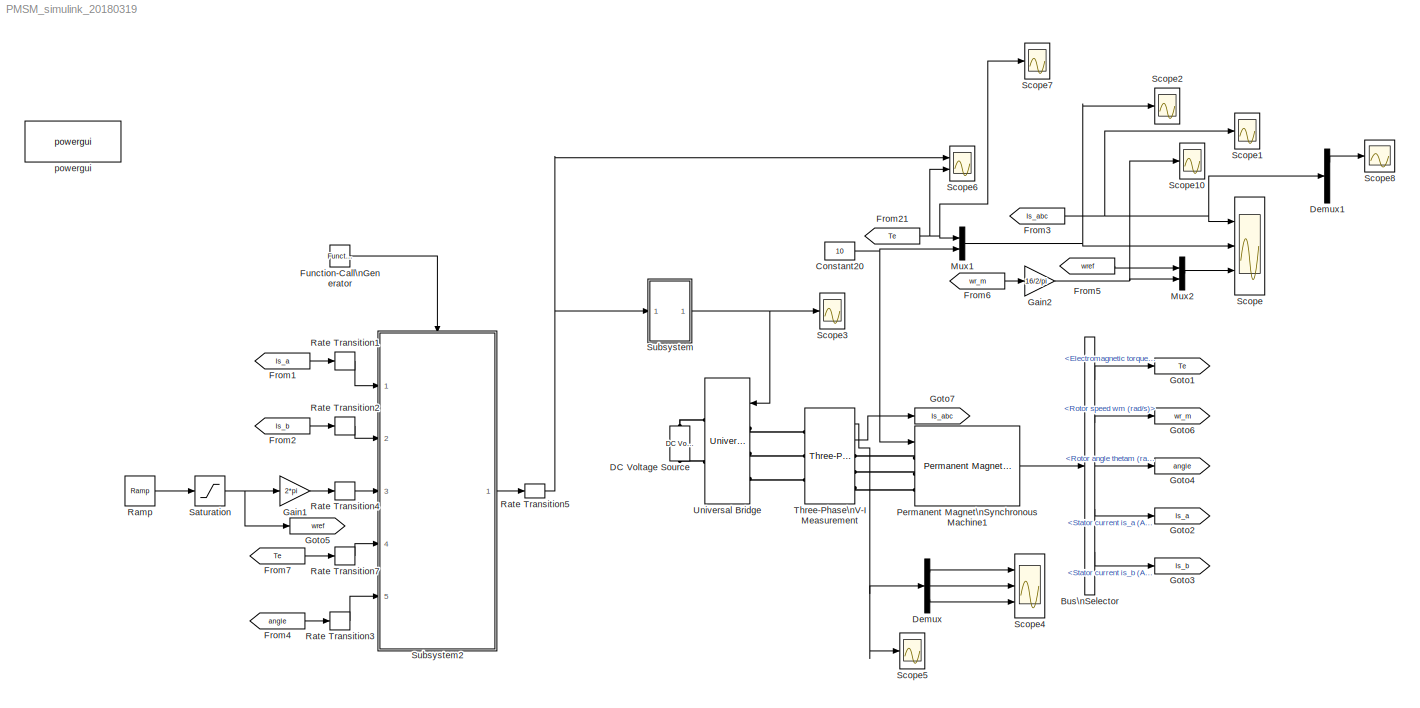
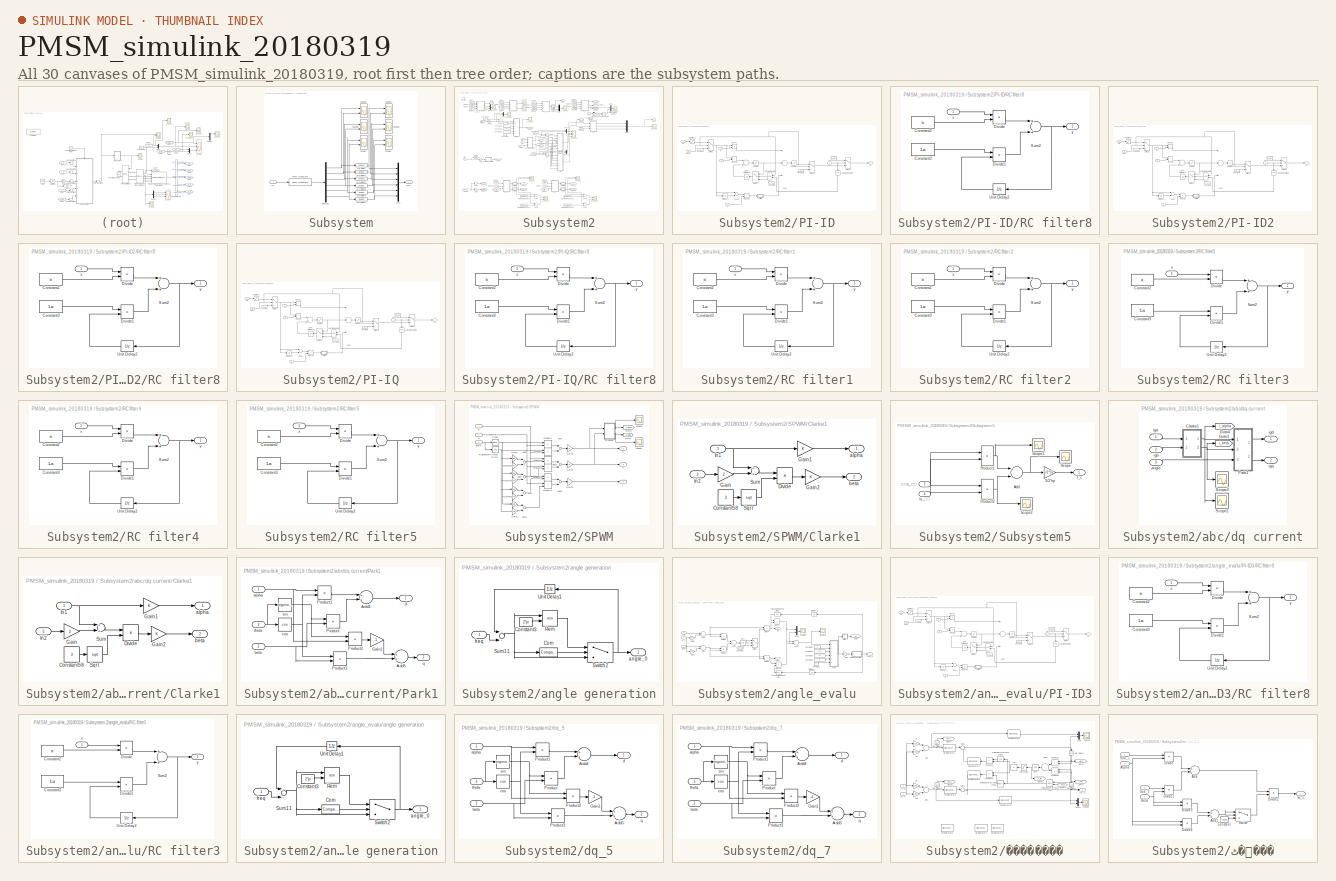
[diagram: thumbnail index - all 30 canvases of the model, root first then tree order]
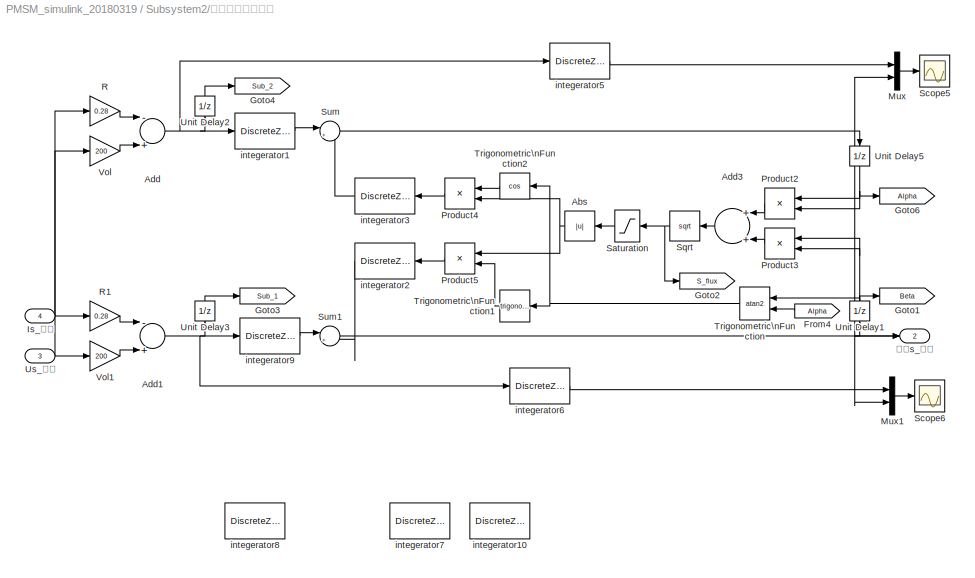
MODEL PMSM_simulink_20180319
KIND model
BLOCK [BusSelector] Bus\nSelector
  OutputAsBus = off
  OutputSignals = Electromagnetic torque Te (N*m),Rotor speed wm (rad/s),Rotor angle thetam (rad),Stator current is_a (A),Stator current is_b (A)
  Ports = [1, 5]
  SID = 1877
BLOCK [Constant] Constant20
  OutDataTypeStr = double
  SID = 5987
  Value = 10
BLOCK [Reference] DC Voltage Source  REF=powerlib/Electrical\nSources/DC Voltage Source
  Amplitude = 400
  Measurements = None
  Ports = [0, 0, 0, 0, 0, 1, 1]
  SID = 2313
  SourceBlock = powerlib/Electrical\nSources/DC Voltage Source
  SourceProductBaseCode = PS
  SourceProductName = Simscape Electrical
  SourceType = DC Voltage Source
BLOCK [Demux] Demux
  DisplayOption = bar
  Outputs = 3
  Ports = [1, 3]
  SID = 3419
BLOCK [Demux] Demux1
  DisplayOption = bar
  Outputs = 3
  Ports = [1, 3]
  SID = 6763
BLOCK [From] From1
  GotoTag = Is_a
  SID = 2359
  TagVisibility = global
BLOCK [From] From2
  GotoTag = Is_b
  SID = 2362
  TagVisibility = global
BLOCK [From] From21
  GotoTag = Te
  SID = 2321
  TagVisibility = global
BLOCK [From] From3
  GotoTag = Is_abc
  SID = 2322
  TagVisibility = global
BLOCK [From] From4
  GotoTag = angle
  SID = 5938
  TagVisibility = global
BLOCK [From] From5
  GotoTag = wref
  SID = 2767
  TagVisibility = global
BLOCK [From] From6
  GotoTag = wr_m
  SID = 2769
  TagVisibility = global
BLOCK [From] From7
  GotoTag = Te
  SID = 5296
  TagVisibility = global
BLOCK [Reference] Function-Call\nGenerator  REF=simulink/Ports &\nSubsystems/Function-Call\nGenerator
  MultiThreadCoSim = auto
  Ports = [0, 1]
  SID = 1606
  SourceBlock = simulink/Ports &\nSubsystems/Function-Call\nGenerator
  SourceProductBaseCode = SL
  SourceProductName = Simulink
  SourceType = Function-Call Generator
  numberOfIterations = 1
  sample_time = 1/5000
BLOCK [Gain] Gain1
  Gain = 2*pi
  OutDataTypeStr = Inherit: Inherit via internal rule
  ParamDataTypeStr = Inherit: Inherit via internal rule
  SID = 2772
  SaturateOnIntegerOverflow = off
BLOCK [Gain] Gain2
  Gain = 16/2/pi
  OutDataTypeStr = Inherit: Inherit via internal rule
  ParamDataTypeStr = Inherit: Inherit via internal rule
  SID = 2771
  SaturateOnIntegerOverflow = off
BLOCK [Goto] Goto1
  GotoTag = Te
  SID = 2323
  TagVisibility = global
BLOCK [Goto] Goto2
  GotoTag = Is_a
  SID = 2363
  TagVisibility = global
BLOCK [Goto] Goto3
  GotoTag = Is_b
  SID = 2364
  TagVisibility = global
BLOCK [Goto] Goto4
  GotoTag = angle
  SID = 2461
  TagVisibility = global
BLOCK [Goto] Goto5
  GotoTag = wref
  SID = 2766
  TagVisibility = global
BLOCK [Goto] Goto6
  GotoTag = wr_m
  SID = 5253
  TagVisibility = global
BLOCK [Goto] Goto7
  GotoTag = Is_abc
  SID = 3102
  TagVisibility = global
BLOCK [Mux] Mux1
  DisplayOption = bar
  Inputs = 2
  Ports = [2, 1]
  SID = 2319
BLOCK [Mux] Mux2
  DisplayOption = bar
  Inputs = 2
  Ports = [2, 1]
  SID = 2765
BLOCK [Reference] Permanent Magnet\nSynchronous Machine1  REF=powerlib/Machines/Permanent Magnet\nSynchronous Machine
  Flat = 120
  Flux = 0.56178
  FluxDistribution = Sinusoidal
  Inductance = 8.5e-3
  InitialConditions = [0,0, 0,0]
  InitialConditions5ph = [0 0 0 0 0 0]
  La = 0.004
  MachineConstant = Torque Constant (N.m / A_peak)
  MeasurementBus = off
  Mechanical = [0.00062 0.0003035 16 0]
  MechanicalLoad = Torque Tm
  NbPhases = 3
  PolePairs = 16
  Ports = [1, 1, 0, 0, 0, 3]
  PresetModel = No
  RefAngle = Aligned with phase A axis (original Park)
  Resistance = 0.4
  RotorType = Round
  SID = 1304
  ShowDetailedParameters = on
  SourceBlock = powerlib/Machines/Permanent Magnet\nSynchronous Machine
  SourceProductBaseCode = PS
  SourceProductName = Simscape Electrical
  SourceType = Permanent Magnet Synchronous Machine
  TorqueCst = 13.4828
  TsBlock = -1
  TsPowergui = 0
  VoltageCst = 1630.3396
  dqInductances = [8.5e-3,8.5e-3]
BLOCK [Reference] Ramp  REF=simulink/Sources/Ramp
  InitialOutput = 0
  Ports = [0, 1]
  SID = 2939
  SourceBlock = simulink/Sources/Ramp
  SourceProductBaseCode = SL
  SourceProductName = Simulink
  SourceType = Ramp
  VectorParams1D = on
  slope = 30/0.1
  start = 0
BLOCK [RateTransition] Rate Transition1
  Integrity = off
  SID = 2361
BLOCK [RateTransition] Rate Transition2
  Integrity = off
  SID = 1909
BLOCK [RateTransition] Rate Transition3
  Integrity = off
  SID = 5939
BLOCK [RateTransition] Rate Transition4
  Integrity = off
  SID = 2759
BLOCK [RateTransition] Rate Transition5
  Integrity = off
  SID = 1611
BLOCK [RateTransition] Rate Transition7
  Integrity = off
  SID = 5297
BLOCK [Saturate] Saturation
  InputPortMap = u0
  LowerLimit = 0
  Ports = [1, 1]
  SID = 4171
  UpperLimit = 10
BLOCK [Scope] Scope
  Floating = off
  NumInputPorts = 3
  Ports = [3]
  SID = 1622
  ScopeSpecificationString = Simulink.scopes.TimeScopeBlockCfg('CurrentConfiguration', extmgr.ConfigurationSet(extmgr.Configuration('Core','General UI',true),extmgr.Configuration('Core','Source UI',true),extmgr.Configuration('Sources','WiredSimulink',true,'DataLoggingVariableName','ScopeData5','DataLoggingSaveFormat','StructureWithTime','DataLoggingDecimation','1','DataLoggingDecimateData',true),extmgr.Configuration('Visuals'...<+3059ch>
BLOCK [Scope] Scope1
  Floating = off
  NumInputPorts = 1
  Ports = [1]
  SID = 6617
  ScopeSpecificationString = Simulink.scopes.TimeScopeBlockCfg('CurrentConfiguration', extmgr.ConfigurationSet(extmgr.Configuration('Core','General UI',true),extmgr.Configuration('Core','Source UI',true),extmgr.Configuration('Sources','WiredSimulink',true,'DataLoggingVariableName','iabcwu','DataLoggingSaveFormat','StructureWithTime','DataLoggingDecimation','1','DataLoggingDecimateData',true,'DataLogging',true),extmgr.Configur...<+1770ch>
BLOCK [Scope] Scope10
  Floating = off
  NumInputPorts = 1
  Ports = [1]
  SID = 4087
  ScopeSpecificationString = Simulink.scopes.TimeScopeBlockCfg('CurrentConfiguration', extmgr.ConfigurationSet(extmgr.Configuration('Core','General UI',true),extmgr.Configuration('Core','Source UI',true),extmgr.Configuration('Sources','WiredSimulink',true,'DataLoggingVariableName','ScopeData22','DataLoggingSaveFormat','StructureWithTime','DataLoggingDecimation','1','DataLoggingDecimateData',true),extmgr.Configuration('Visuals...<+1727ch>
BLOCK [Scope] Scope2
  Floating = off
  NumInputPorts = 1
  Ports = [1]
  SID = 6618
  ScopeSpecificationString = Simulink.scopes.TimeScopeBlockCfg('CurrentConfiguration', extmgr.ConfigurationSet(extmgr.Configuration('Core','General UI',true),extmgr.Configuration('Core','Source UI',true),extmgr.Configuration('Sources','WiredSimulink',true,'DataLoggingVariableName','Te','DataLoggingSaveFormat','StructureWithTime','DataLoggingDecimation','1','DataLoggingDecimateData',true),extmgr.Configuration('Visuals','Time D...<+1724ch>
BLOCK [Scope] Scope3
  Floating = off
  NumInputPorts = 1
  Ports = [1]
  SID = 6621
  ScopeSpecificationString = Simulink.scopes.TimeScopeBlockCfg('CurrentConfiguration', extmgr.ConfigurationSet(extmgr.Configuration('Core','General UI',true),extmgr.Configuration('Core','Source UI',true),extmgr.Configuration('Sources','WiredSimulink',true,'DataLoggingSaveFormat','StructureWithTime','DataLoggingDecimation','1','DataLoggingDecimateData',true,'DataLoggingVariableName','ScopeData3'),extmgr.Configuration('Visuals'...<+1681ch>
BLOCK [Scope] Scope4
  Floating = off
  NumInputPorts = 3
  Ports = [3]
  SID = 3421
  ScopeSpecificationString = Simulink.scopes.TimeScopeBlockCfg('CurrentConfiguration', extmgr.ConfigurationSet(extmgr.Configuration('Core','General UI',true),extmgr.Configuration('Core','Source UI',true),extmgr.Configuration('Sources','WiredSimulink',true,'DataLoggingVariableName','ScopeData8','DataLoggingSaveFormat','StructureWithTime','DataLoggingDecimation','1','DataLoggingDecimateData',true),extmgr.Configuration('Visuals'...<+3060ch>
BLOCK [Scope] Scope5
  Floating = off
  NumInputPorts = 1
  Ports = [1]
  SID = 3426
  ScopeSpecificationString = C++SS(StrPVP('Location','[5, 48, 1371, 727]'),StrPVP('Open','off'),StrPVP('ZoomMode','xonly'),MxPVP('AxesTitles',53,'struct(''axes1'',''%<SignalLabel>'')'),MxPVP('ScopeGraphics',56,'struct(''FigureColor'',''[0.5 0.5 0.5]'',''AxesColor'',''[0 0 0]'',''AxesTickColor'',''[1 1 1]'',''LineColors'',''[1 1 0;1 0 1;0 1 1;1 0 0;0 1 0;0 0 1]'',''LineStyles'',''-|-|-|-|-|-'',''LineWidths'',''[0.5 0.5 0.5 0.5...<+341ch>
BLOCK [Scope] Scope6
  Floating = off
  NumInputPorts = 2
  Ports = [2]
  SID = 4407
  ScopeSpecificationString = Simulink.scopes.TimeScopeBlockCfg('CurrentConfiguration', extmgr.ConfigurationSet(extmgr.Configuration('Core','General UI',true),extmgr.Configuration('Core','Source UI',true),extmgr.Configuration('Sources','WiredSimulink',true,'DataLoggingSaveFormat','StructureWithTime','DataLoggingDecimation','1','DataLoggingDecimateData',true),extmgr.Configuration('Visuals','Time Domain',true,'SerializedDisplays...<+2389ch>
BLOCK [Scope] Scope7
  Floating = off
  NumInputPorts = 1
  Ports = [1]
  SID = 6647
  ScopeSpecificationString = Simulink.scopes.TimeScopeBlockCfg('CurrentConfiguration', extmgr.ConfigurationSet(extmgr.Configuration('Core','General UI',true),extmgr.Configuration('Core','Source UI',true),extmgr.Configuration('Sources','WiredSimulink',true,'DataLoggingSaveFormat','StructureWithTime','DataLoggingDecimation','1','DataLoggingDecimateData',true,'DataLoggingVariableName','TEwu','DataLogging',true),extmgr.Configurat...<+1664ch>
BLOCK [Scope] Scope8
  Floating = off
  NumInputPorts = 1
  Ports = [1]
  SID = 6734
  ScopeSpecificationString = Simulink.scopes.TimeScopeBlockCfg('CurrentConfiguration', extmgr.ConfigurationSet(extmgr.Configuration('Core','General UI',true),extmgr.Configuration('Core','Source UI',true),extmgr.Configuration('Sources','WiredSimulink',true,'DataLoggingVariableName','ScopeData1'),extmgr.Configuration('Visuals','Time Domain',true,'SerializedDisplays',{struct('MinYLimReal','-14.53144','MaxYLimReal','16.35486','YL...<+1473ch>
BLOCK [SubSystem] Subsystem
  Ports = [1, 1]
  RequestExecContextInheritance = off
  SID = 6624
BLOCK [Demux] Subsystem/Demux1
  DisplayOption = bar
  Outputs = 6
  Ports = [1, 6]
  SID = 6626
BLOCK [Inport] Subsystem/In1
  IconDisplay = Port number
  SID = 6625
BLOCK [Mux] Subsystem/Mux
  DisplayOption = bar
  Inputs = 6
  Ports = [6, 1]
  SID = 6627
BLOCK [Reference] Subsystem/On Delay  REF=powerlib_meascontrol/Logic/On Delay
  DelayType = On delay
  Ports = [1, 1]
  SID = 6628
  SourceBlock = powerlib_meascontrol/Logic/On Delay
  SourceProductBaseCode = PS
  SourceProductName = Simscape Power Systems
  SourceType = On/Off Delay
  Ts = 0
  delay = 7e-6
  ic = 0
BLOCK [Reference] Subsystem/On Delay1  REF=powerlib_meascontrol/Logic/On Delay
  DelayType = On delay
  Ports = [1, 1]
  SID = 6778
  SourceBlock = powerlib_meascontrol/Logic/On Delay
  SourceProductBaseCode = PS
  SourceProductName = Simscape Power Systems
  SourceType = On/Off Delay
  Ts = 0
  delay = 7e-6
  ic = 0
BLOCK [Reference] Subsystem/On Delay2  REF=powerlib_meascontrol/Logic/On Delay
  DelayType = On delay
  Ports = [1, 1]
  SID = 6779
  SourceBlock = powerlib_meascontrol/Logic/On Delay
  SourceProductBaseCode = PS
  SourceProductName = Simscape Power Systems
  SourceType = On/Off Delay
  Ts = 0
  delay = 7e-6
  ic = 0
BLOCK [Reference] Subsystem/On Delay3  REF=powerlib_meascontrol/Logic/On Delay
  DelayType = On delay
  Ports = [1, 1]
  SID = 6780
  SourceBlock = powerlib_meascontrol/Logic/On Delay
  SourceProductBaseCode = PS
  SourceProductName = Simscape Power Systems
  SourceType = On/Off Delay
  Ts = 0
  delay = 7e-6
  ic = 0
BLOCK [Reference] Subsystem/On Delay4  REF=powerlib_meascontrol/Logic/On Delay
  DelayType = On delay
  Ports = [1, 1]
  SID = 6781
  SourceBlock = powerlib_meascontrol/Logic/On Delay
  SourceProductBaseCode = PS
  SourceProductName = Simscape Power Systems
  SourceType = On/Off Delay
  Ts = 0
  delay = 7e-6
  ic = 0
BLOCK [Reference] Subsystem/On Delay5  REF=powerlib_meascontrol/Logic/On Delay
  DelayType = On delay
  Ports = [1, 1]
  SID = 6782
  SourceBlock = powerlib_meascontrol/Logic/On Delay
  SourceProductBaseCode = PS
  SourceProductName = Simscape Power Systems
  SourceType = On/Off Delay
  Ts = 0
  delay = 7e-6
  ic = 0
BLOCK [Outport] Subsystem/Out1
  IconDisplay = Port number
  SID = 6641
BLOCK [Reference] Subsystem/PWM Generator  REF=powerlib_extras/Control \nBlocks/PWM Generator
  Fc = 5000
  Freq = 60
  GeneratorMode = 3-arm  bridge (6 pulses)
  Internal = off
  Phase = 0
  Ports = [1, 1]
  SID = 6634
  SourceBlock = powerlib_extras/Control \nBlocks/PWM Generator
  SourceType = PWM Generator
  mIndex = 0.4
BLOCK [Scope] Subsystem/Scope1
  Floating = off
  NumInputPorts = 2
  Ports = [2]
  SID = 6742
  ScopeSpecificationString = Simulink.scopes.TimeScopeBlockCfg('CurrentConfiguration', extmgr.ConfigurationSet(extmgr.Configuration('Core','General UI',true),extmgr.Configuration('Core','Source UI',true),extmgr.Configuration('Sources','WiredSimulink',true,'DataLoggingVariableName','Te','DataLoggingSaveFormat','StructureWithTime','DataLoggingDecimation','1','DataLoggingDecimateData',true,'DataLogging',true),extmgr.Configuratio...<+1729ch>
BLOCK [Scope] Subsystem/Scope2
  Floating = off
  NumInputPorts = 2
  Ports = [2]
  SID = 6636
  ScopeSpecificationString = Simulink.scopes.TimeScopeBlockCfg('CurrentConfiguration', extmgr.ConfigurationSet(extmgr.Configuration('Core','General UI',true),extmgr.Configuration('Core','Source UI',true),extmgr.Configuration('Sources','WiredSimulink',true,'DataLoggingVariableName','Te5','DataLoggingSaveFormat','StructureWithTime','DataLoggingDecimation','1','DataLoggingDecimateData',true,'DataLogging',true),extmgr.Configurati...<+1744ch>
BLOCK [Scope] Subsystem/Scope3
  Floating = off
  NumInputPorts = 2
  Ports = [2]
  SID = 6637
  ScopeSpecificationString = Simulink.scopes.TimeScopeBlockCfg('CurrentConfiguration', extmgr.ConfigurationSet(extmgr.Configuration('Core','General UI',true),extmgr.Configuration('Core','Source UI',true),extmgr.Configuration('Sources','WiredSimulink',true,'DataLoggingVariableName','Te6','DataLoggingSaveFormat','StructureWithTime','DataLoggingDecimation','1','DataLoggingDecimateData',true,'DataLogging',true),extmgr.Configurati...<+2366ch>
BLOCK [Scope] Subsystem/Scope7
  Floating = off
  NumInputPorts = 2
  Ports = [2]
  SID = 6638
  ScopeSpecificationString = Simulink.scopes.TimeScopeBlockCfg('CurrentConfiguration', extmgr.ConfigurationSet(extmgr.Configuration('Core','General UI',true),extmgr.Configuration('Core','Source UI',true),extmgr.Configuration('Sources','WiredSimulink',true,'DataLoggingVariableName','Te1','DataLoggingSaveFormat','StructureWithTime','DataLoggingDecimation','1','DataLoggingDecimateData',true,'DataLogging',true),extmgr.Configurati...<+2362ch>
BLOCK [Scope] Subsystem/Scope8
  Floating = off
  NumInputPorts = 2
  Ports = [2]
  SID = 6639
  ScopeSpecificationString = Simulink.scopes.TimeScopeBlockCfg('CurrentConfiguration', extmgr.ConfigurationSet(extmgr.Configuration('Core','General UI',true),extmgr.Configuration('Core','Source UI',true),extmgr.Configuration('Sources','WiredSimulink',true,'DataLoggingVariableName','Te2','DataLoggingSaveFormat','StructureWithTime','DataLoggingDecimation','1','DataLoggingDecimateData',true,'DataLogging',true),extmgr.Configurati...<+1744ch>
BLOCK [Scope] Subsystem/Scope9
  Floating = off
  NumInputPorts = 2
  Ports = [2]
  SID = 6640
  ScopeSpecificationString = Simulink.scopes.TimeScopeBlockCfg('CurrentConfiguration', extmgr.ConfigurationSet(extmgr.Configuration('Core','General UI',true),extmgr.Configuration('Core','Source UI',true),extmgr.Configuration('Sources','WiredSimulink',true,'DataLoggingVariableName','Te3','DataLoggingSaveFormat','StructureWithTime','DataLoggingDecimation','1','DataLoggingDecimateData',true,'DataLogging',true),extmgr.Configurati...<+2365ch>
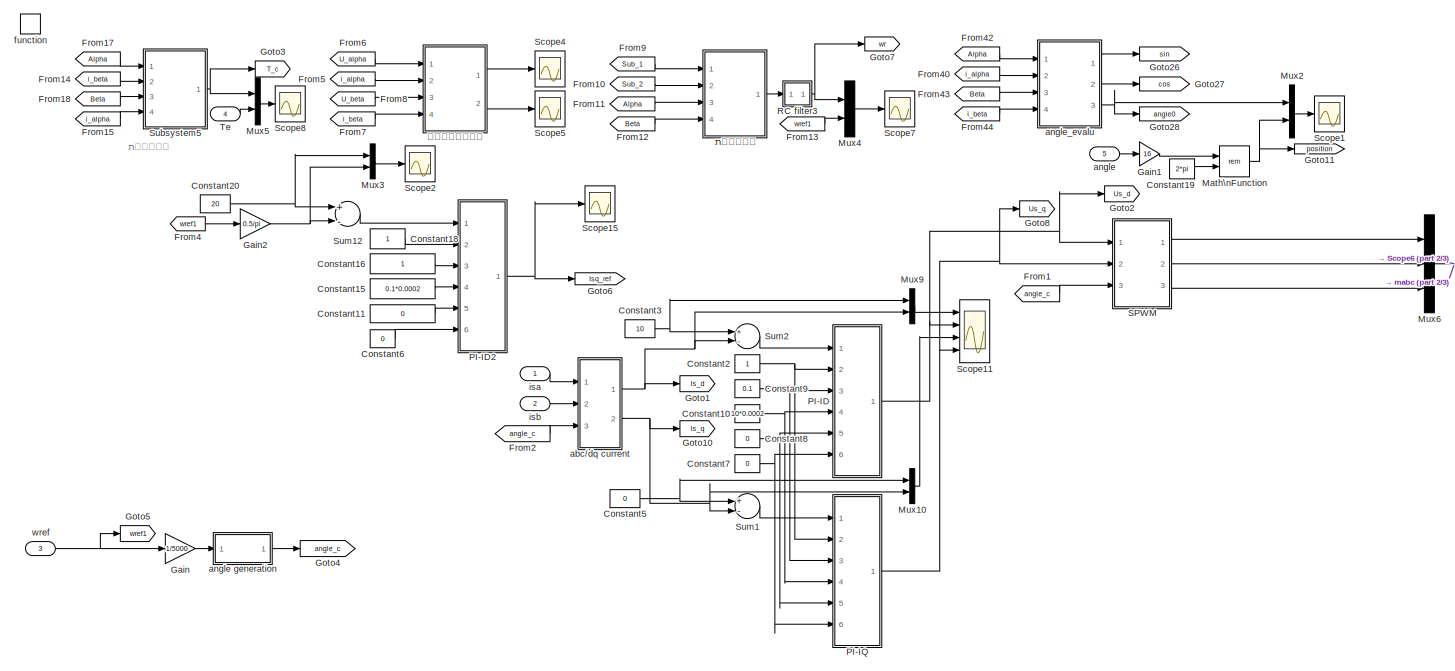
[diagram: Subsystem2 - part 1/3, full width, middle band]
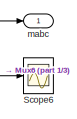
[diagram: Subsystem2 - part 2/3, top right region]
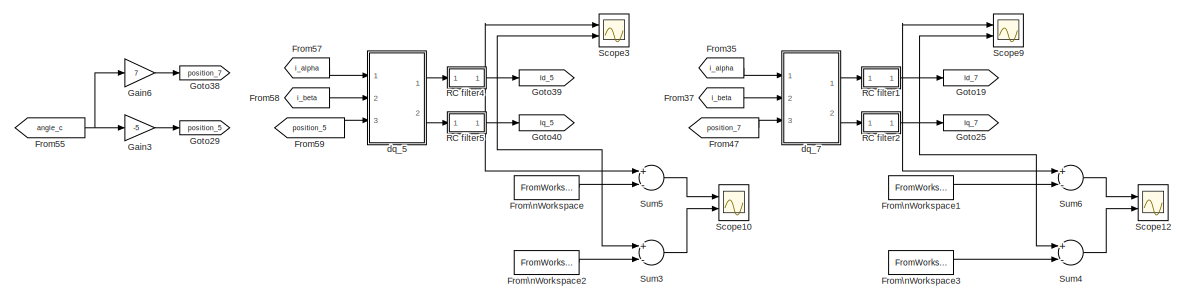
[diagram: Subsystem2 - part 3/3, bottom center region]
BLOCK [SubSystem] Subsystem2
  Ports = [5, 1, 0, 1]
  RequestExecContextInheritance = off
  SID = 1660
BLOCK [Constant] Subsystem2/Constant10
  OutDataTypeStr = double
  SID = 2365
  Value = 10*0.0002
BLOCK [Constant] Subsystem2/Constant11
  OutDataTypeStr = double
  SID = 5832
  Value = 0
BLOCK [Constant] Subsystem2/Constant15
  OutDataTypeStr = double
  SID = 5833
  Value = 0.1*0.0002
BLOCK [Constant] Subsystem2/Constant16
  OutDataTypeStr = double
  SID = 5834
BLOCK [Constant] Subsystem2/Constant18
  OutDataTypeStr = double
  SID = 5835
BLOCK [Constant] Subsystem2/Constant19
  OutDataTypeStr = double
  SID = 5946
  Value = 2*pi
BLOCK [Constant] Subsystem2/Constant2
  OutDataTypeStr = double
  SID = 2416
BLOCK [Constant] Subsystem2/Constant20
  OutDataTypeStr = double
  SID = 5955
  Value = 20
BLOCK [Constant] Subsystem2/Constant3
  OutDataTypeStr = double
  SID = 5838
  Value = 10
BLOCK [Constant] Subsystem2/Constant5
  OutDataTypeStr = double
  SID = 6215
  Value = 0
BLOCK [Constant] Subsystem2/Constant6
  OutDataTypeStr = double
  SID = 5831
  Value = 0
BLOCK [Constant] Subsystem2/Constant7
  OutDataTypeStr = double
  SID = 2368
  Value = 0
BLOCK [Constant] Subsystem2/Constant8
  OutDataTypeStr = double
  SID = 2369
  Value = 0
BLOCK [Constant] Subsystem2/Constant9
  OutDataTypeStr = double
  SID = 2370
  Value = 0.1
BLOCK [From] Subsystem2/From1
  GotoTag = angle_c
  SID = 2535
  TagVisibility = global
BLOCK [From] Subsystem2/From10
  GotoTag = Sub_2
  SID = 4629
  TagVisibility = global
BLOCK [From] Subsystem2/From11
  GotoTag = Alpha
  SID = 4630
  TagVisibility = global
BLOCK [From] Subsystem2/From12
  GotoTag = Beta
  SID = 4631
  TagVisibility = global
BLOCK [From] Subsystem2/From13
  GotoTag = wref1
  SID = 5267
  TagVisibility = global
BLOCK [From] Subsystem2/From14
  GotoTag = i_beta
  SID = 5275
  TagVisibility = global
BLOCK [From] Subsystem2/From15
  GotoTag = i_alpha
  SID = 5276
  TagVisibility = global
BLOCK [From] Subsystem2/From17
  GotoTag = Alpha
  SID = 5277
  TagVisibility = global
BLOCK [From] Subsystem2/From18
  GotoTag = Beta
  SID = 5278
  TagVisibility = global
BLOCK [From] Subsystem2/From2
  GotoTag = angle_c
  SID = 2534
  TagVisibility = global
BLOCK [From] Subsystem2/From35
  GotoTag = i_alpha
  SID = 6648
  TagVisibility = global
BLOCK [From] Subsystem2/From37
  GotoTag = i_beta
  SID = 6649
  TagVisibility = global
BLOCK [From] Subsystem2/From4
  GotoTag = wref1
  SID = 5787
  TagVisibility = global
BLOCK [From] Subsystem2/From40
  GotoTag = i_alpha
  SID = 5839
  TagVisibility = global
BLOCK [From] Subsystem2/From42
  GotoTag = Alpha
  SID = 5840
  TagVisibility = global
BLOCK [From] Subsystem2/From43
  GotoTag = Beta
  SID = 5841
  TagVisibility = global
BLOCK [From] Subsystem2/From44
  GotoTag = i_beta
  SID = 5842
  TagVisibility = global
BLOCK [From] Subsystem2/From47
  GotoTag = position_7
  SID = 6650
  TagVisibility = global
BLOCK [From] Subsystem2/From5
  GotoTag = i_alpha
  SID = 4562
  TagVisibility = global
BLOCK [From] Subsystem2/From55
  GotoTag = angle_c
  SID = 6651
  TagVisibility = global
BLOCK [From] Subsystem2/From57
  GotoTag = i_alpha
  SID = 6652
  TagVisibility = global
BLOCK [From] Subsystem2/From58
  GotoTag = i_beta
  SID = 6653
  TagVisibility = global
BLOCK [From] Subsystem2/From59
  GotoTag = position_5
  SID = 6654
  TagVisibility = global
BLOCK [From] Subsystem2/From6
  GotoTag = U_alpha
  SID = 4563
  TagVisibility = global
BLOCK [From] Subsystem2/From7
  GotoTag = i_beta
  SID = 4573
  TagVisibility = global
BLOCK [From] Subsystem2/From8
  GotoTag = U_beta
  SID = 4574
  TagVisibility = global
BLOCK [From] Subsystem2/From9
  GotoTag = Sub_1
  SID = 4628
  TagVisibility = global
BLOCK [FromWorkspace] Subsystem2/From\nWorkspace
  SID = 6743
  VariableName = i_5d
  ZeroCross = on
BLOCK [FromWorkspace] Subsystem2/From\nWorkspace1
  SID = 6747
  VariableName = i_7d
  ZeroCross = on
BLOCK [FromWorkspace] Subsystem2/From\nWorkspace2
  SID = 6761
  VariableName = i_5q
  ZeroCross = on
BLOCK [FromWorkspace] Subsystem2/From\nWorkspace3
  SID = 6762
  VariableName = i_7q
  ZeroCross = on
BLOCK [Gain] Subsystem2/Gain
  Gain = 1/5000
  OutDataTypeStr = Inherit: Inherit via internal rule
  ParamDataTypeStr = Inherit: Inherit via internal rule
  SID = 2764
  SaturateOnIntegerOverflow = off
BLOCK [Gain] Subsystem2/Gain1
  Gain = 16
  OutDataTypeStr = Inherit: Inherit via internal rule
  ParamDataTypeStr = Inherit: Inherit via internal rule
  SID = 5942
  SaturateOnIntegerOverflow = off
BLOCK [Gain] Subsystem2/Gain2
  Gain = 0.5/pi
  OutDataTypeStr = Inherit: Inherit via internal rule
  ParamDataTypeStr = Inherit: Inherit via internal rule
  SID = 5956
  SaturateOnIntegerOverflow = off
BLOCK [Gain] Subsystem2/Gain3
  Gain = -5
  OutDataTypeStr = Inherit: Inherit via internal rule
  ParamDataTypeStr = Inherit: Inherit via internal rule
  SID = 6655
  SaturateOnIntegerOverflow = off
BLOCK [Gain] Subsystem2/Gain6
  Gain = 7
  OutDataTypeStr = Inherit: Inherit via internal rule
  ParamDataTypeStr = Inherit: Inherit via internal rule
  SID = 6656
  SaturateOnIntegerOverflow = off
BLOCK [Goto] Subsystem2/Goto1
  GotoTag = Is_d
  SID = 4553
  TagVisibility = global
BLOCK [Goto] Subsystem2/Goto10
  GotoTag = Is_q
  SID = 6068
  TagVisibility = global
BLOCK [Goto] Subsystem2/Goto11
  GotoTag = position
  SID = 6069
  TagVisibility = global
BLOCK [Goto] Subsystem2/Goto19
  GotoTag = Id_7
  SID = 6657
  TagVisibility = global
BLOCK [Goto] Subsystem2/Goto2
  GotoTag = Us_d
  SID = 4554
  TagVisibility = global
BLOCK [Goto] Subsystem2/Goto25
  GotoTag = Iq_7
  SID = 6658
  TagVisibility = global
BLOCK [Goto] Subsystem2/Goto26
  GotoTag = sin
  SID = 5843
  TagVisibility = global
BLOCK [Goto] Subsystem2/Goto27
  GotoTag = cos
  SID = 5844
  TagVisibility = global
BLOCK [Goto] Subsystem2/Goto28
  GotoTag = angle0
  SID = 5845
  TagVisibility = global
BLOCK [Goto] Subsystem2/Goto29
  GotoTag = position_5
  SID = 6659
  TagVisibility = global
BLOCK [Goto] Subsystem2/Goto3
  GotoTag = T_c
  SID = 5379
  TagVisibility = global
BLOCK [Goto] Subsystem2/Goto38
  GotoTag = position_7
  SID = 6660
  TagVisibility = global
BLOCK [Goto] Subsystem2/Goto39
  GotoTag = Id_5
  SID = 6661
  TagVisibility = global
BLOCK [Goto] Subsystem2/Goto4
  GotoTag = angle_c
  SID = 2536
  TagVisibility = global
BLOCK [Goto] Subsystem2/Goto40
  GotoTag = Iq_5
  SID = 6662
  TagVisibility = global
BLOCK [Goto] Subsystem2/Goto5
  GotoTag = wref1
  SID = 4658
  TagVisibility = global
BLOCK [Goto] Subsystem2/Goto6
  GotoTag = Isq_ref
  SID = 5836
  TagVisibility = global
BLOCK [Goto] Subsystem2/Goto7
  GotoTag = wr
  SID = 5251
  TagVisibility = global
BLOCK [Goto] Subsystem2/Goto8
  GotoTag = Us_q
  SID = 5985
  TagVisibility = global
BLOCK [Math] Subsystem2/Math\nFunction
  Operator = rem
  Ports = [2, 1]
  SID = 5945
BLOCK [Mux] Subsystem2/Mux10
  DisplayOption = bar
  Inputs = 2
  Ports = [2, 1]
  SID = 3994
BLOCK [Mux] Subsystem2/Mux2
  DisplayOption = bar
  Inputs = 2
  Ports = [2, 1]
  SID = 5941
BLOCK [Mux] Subsystem2/Mux3
  DisplayOption = bar
  Inputs = 2
  Ports = [2, 1]
  SID = 5944
BLOCK [Mux] Subsystem2/Mux4
  DisplayOption = bar
  Inputs = 2
  Ports = [2, 1]
  SID = 4633
BLOCK [Mux] Subsystem2/Mux5
  DisplayOption = bar
  Inputs = 2
  Ports = [2, 1]
  SID = 5279
BLOCK [Mux] Subsystem2/Mux6
  DisplayOption = bar
  Inputs = 3
  Ports = [3, 1]
  SID = 6607
BLOCK [Mux] Subsystem2/Mux9
  DisplayOption = bar
  Inputs = 2
  Ports = [2, 1]
  SID = 3992
BLOCK [SubSystem] Subsystem2/PI-ID
  Ports = [6, 1]
  RequestExecContextInheritance = off
  SID = 2377
BLOCK [Constant] Subsystem2/PI-ID/Constant1
  OutDataTypeStr = Inherit: Inherit via back propagation
  SID = 2384
  Value = 0
BLOCK [Constant] Subsystem2/PI-ID/Constant2
  OutDataTypeStr = Inherit: Inherit via back propagation
  SID = 2385
  Value = 25
BLOCK [Constant] Subsystem2/PI-ID/Constant3
  OutDataTypeStr = Inherit: Inherit via back propagation
  SID = 2386
  Value = 0
BLOCK [Constant] Subsystem2/PI-ID/Constant5
  OutDataTypeStr = Inherit: Inherit via back propagation
  SID = 2387
  Value = 0
BLOCK [Inport] Subsystem2/PI-ID/D
  IconDisplay = Port number
  Port = 5
  SID = 2382
BLOCK [Inport] Subsystem2/PI-ID/I
  IconDisplay = Port number
  Port = 4
  SID = 2381
BLOCK [Logic] Subsystem2/PI-ID/Logical\nOperator5
  AllPortsSameDT = off
  OutDataTypeStr = boolean
  Ports = [2, 1]
  SID = 2388
BLOCK [Logic] Subsystem2/PI-ID/Logical\nOperator6
  AllPortsSameDT = off
  Operator = NOT
  OutDataTypeStr = boolean
  Ports = [1, 1]
  SID = 2389
BLOCK [Inport] Subsystem2/PI-ID/OV
  IconDisplay = Port number
  Port = 6
  SID = 2383
BLOCK [Inport] Subsystem2/PI-ID/P
  IconDisplay = Port number
  Port = 3
  SID = 2380
BLOCK [Product] Subsystem2/PI-ID/Product
  InputSameDT = off
  OutDataTypeStr = Inherit: Inherit via internal rule
  Ports = [2, 1]
  SID = 2390
  SaturateOnIntegerOverflow = off
BLOCK [Product] Subsystem2/PI-ID/Product1
  InputSameDT = off
  OutDataTypeStr = Inherit: Inherit via internal rule
  Ports = [2, 1]
  SID = 2391
  SaturateOnIntegerOverflow = off
BLOCK [Product] Subsystem2/PI-ID/Product2
  InputSameDT = off
  OutDataTypeStr = Inherit: Inherit via internal rule
  Ports = [2, 1]
  SID = 2392
  SaturateOnIntegerOverflow = off
BLOCK [SubSystem] Subsystem2/PI-ID/RC filter8
  Ports = [1, 1]
  RequestExecContextInheritance = off
  SID = 2393
BLOCK [Constant] Subsystem2/PI-ID/RC filter8/Constant2
  OutDataTypeStr = double
  SID = 2395
  Value = a
BLOCK [Constant] Subsystem2/PI-ID/RC filter8/Constant3
  OutDataTypeStr = double
  SID = 2396
  Value = 1-a
BLOCK [Product] Subsystem2/PI-ID/RC filter8/Divide
  InputSameDT = off
  OutDataTypeStr = Inherit: Inherit via internal rule
  Ports = [2, 1]
  RndMeth = Floor
  SID = 2397
  SaturateOnIntegerOverflow = off
BLOCK [Product] Subsystem2/PI-ID/RC filter8/Divide1
  InputSameDT = off
  OutDataTypeStr = Inherit: Inherit via internal rule
  Ports = [2, 1]
  RndMeth = Floor
  SID = 2398
  SaturateOnIntegerOverflow = off
BLOCK [Sum] Subsystem2/PI-ID/RC filter8/Sum2
  InputSameDT = off
  OutDataTypeStr = Inherit: Inherit via internal rule
  Ports = [2, 1]
  SID = 2399
  SaturateOnIntegerOverflow = off
BLOCK [UnitDelay] Subsystem2/PI-ID/RC filter8/Unit Delay2
  InputProcessing = Elements as channels (sample based)
  SID = 2400
  SampleTime = -1
BLOCK [Inport] Subsystem2/PI-ID/RC filter8/x
  IconDisplay = Port number
  SID = 2394
BLOCK [Outport] Subsystem2/PI-ID/RC filter8/y
  IconDisplay = Port number
  SID = 2401
BLOCK [Saturate] Subsystem2/PI-ID/Saturation
  InputPortMap = u0
  LinearizeAsGain = off
  LowerLimit = min
  OutDataTypeStr = double
  Ports = [1, 1]
  SID = 2402
  UpperLimit = max
  ZeroCross = off
BLOCK [Saturate] Subsystem2/PI-ID/Saturation1
  InputPortMap = u0
  LinearizeAsGain = off
  LowerLimit = ermin
  OutDataTypeStr = double
  Ports = [1, 1]
  SID = 2403
  UpperLimit = ermax
  ZeroCross = off
BLOCK [Saturate] Subsystem2/PI-ID/Saturation2
  InputPortMap = u0
  LinearizeAsGain = off
  LowerLimit = min
  OutDataTypeStr = double
  Ports = [1, 1]
  SID = 2404
  UpperLimit = max
  ZeroCross = off
BLOCK [Sum] Subsystem2/PI-ID/Sum1
  InputSameDT = off
  Inputs = +++
  OutDataTypeStr = Inherit: Inherit via internal rule
  Ports = [3, 1]
  SID = 2405
  SaturateOnIntegerOverflow = off
BLOCK [Sum] Subsystem2/PI-ID/Sum2
  InputSameDT = off
  Inputs = +-
  OutDataTypeStr = Inherit: Inherit via internal rule
  Ports = [2, 1]
  SID = 2406
  SaturateOnIntegerOverflow = off
BLOCK [Sum] Subsystem2/PI-ID/Sum4
  InputSameDT = off
  OutDataTypeStr = Inherit: Inherit via internal rule
  Ports = [2, 1]
  SID = 2407
  SaturateOnIntegerOverflow = off
BLOCK [Switch] Subsystem2/PI-ID/Switch1
  Criteria = u2 > Threshold
  SID = 2408
BLOCK [Switch] Subsystem2/PI-ID/Switch2
  Criteria = u2 > Threshold
  SID = 2409
BLOCK [Switch] Subsystem2/PI-ID/Switch3
  Criteria = u2 > Threshold
  SID = 2410
BLOCK [Switch] Subsystem2/PI-ID/Switch4
  Criteria = u2 > Threshold
  SID = 2411
BLOCK [UnitDelay] Subsystem2/PI-ID/Unit Delay1
  SID = 2412
  SampleTime = -1
BLOCK [UnitDelay] Subsystem2/PI-ID/Unit Delay3
  SID = 2413
  SampleTime = -1
BLOCK [Inport] Subsystem2/PI-ID/err
  IconDisplay = Port number
  SID = 2378
BLOCK [Outport] Subsystem2/PI-ID/out
  IconDisplay = Port number
  SID = 2414
BLOCK [Inport] Subsystem2/PI-ID/reset
  IconDisplay = Port number
  Port = 2
  SID = 2379
BLOCK [SubSystem] Subsystem2/PI-ID2
  Ports = [6, 1]
  RequestExecContextInheritance = off
  SID = 5788
BLOCK [Constant] Subsystem2/PI-ID2/Constant1
  OutDataTypeStr = Inherit: Inherit via back propagation
  SID = 5795
  Value = 0
BLOCK [Constant] Subsystem2/PI-ID2/Constant2
  OutDataTypeStr = Inherit: Inherit via back propagation
  SID = 5796
  Value = 25
BLOCK [Constant] Subsystem2/PI-ID2/Constant3
  OutDataTypeStr = Inherit: Inherit via back propagation
  SID = 5797
  Value = 0
BLOCK [Constant] Subsystem2/PI-ID2/Constant5
  OutDataTypeStr = Inherit: Inherit via back propagation
  SID = 5798
  Value = 0
BLOCK [Inport] Subsystem2/PI-ID2/D
  IconDisplay = Port number
  Port = 5
  SID = 5793
BLOCK [Inport] Subsystem2/PI-ID2/I
  IconDisplay = Port number
  Port = 4
  SID = 5792
BLOCK [Logic] Subsystem2/PI-ID2/Logical\nOperator5
  AllPortsSameDT = off
  OutDataTypeStr = boolean
  Ports = [2, 1]
  SID = 5799
BLOCK [Logic] Subsystem2/PI-ID2/Logical\nOperator6
  AllPortsSameDT = off
  Operator = NOT
  OutDataTypeStr = boolean
  Ports = [1, 1]
  SID = 5800
BLOCK [Inport] Subsystem2/PI-ID2/OV
  IconDisplay = Port number
  Port = 6
  SID = 5794
BLOCK [Inport] Subsystem2/PI-ID2/P
  IconDisplay = Port number
  Port = 3
  SID = 5791
BLOCK [Product] Subsystem2/PI-ID2/Product
  InputSameDT = off
  OutDataTypeStr = Inherit: Inherit via internal rule
  Ports = [2, 1]
  SID = 5801
  SaturateOnIntegerOverflow = off
BLOCK [Product] Subsystem2/PI-ID2/Product1
  InputSameDT = off
  OutDataTypeStr = Inherit: Inherit via internal rule
  Ports = [2, 1]
  SID = 5802
  SaturateOnIntegerOverflow = off
BLOCK [Product] Subsystem2/PI-ID2/Product2
  InputSameDT = off
  OutDataTypeStr = Inherit: Inherit via internal rule
  Ports = [2, 1]
  SID = 5803
  SaturateOnIntegerOverflow = off
BLOCK [SubSystem] Subsystem2/PI-ID2/RC filter8
  Ports = [1, 1]
  RequestExecContextInheritance = off
  SID = 5804
BLOCK [Constant] Subsystem2/PI-ID2/RC filter8/Constant2
  OutDataTypeStr = double
  SID = 5806
  Value = a
BLOCK [Constant] Subsystem2/PI-ID2/RC filter8/Constant3
  OutDataTypeStr = double
  SID = 5807
  Value = 1-a
BLOCK [Product] Subsystem2/PI-ID2/RC filter8/Divide
  InputSameDT = off
  OutDataTypeStr = Inherit: Inherit via internal rule
  Ports = [2, 1]
  RndMeth = Floor
  SID = 5808
  SaturateOnIntegerOverflow = off
BLOCK [Product] Subsystem2/PI-ID2/RC filter8/Divide1
  InputSameDT = off
  OutDataTypeStr = Inherit: Inherit via internal rule
  Ports = [2, 1]
  RndMeth = Floor
  SID = 5809
  SaturateOnIntegerOverflow = off
BLOCK [Sum] Subsystem2/PI-ID2/RC filter8/Sum2
  InputSameDT = off
  OutDataTypeStr = Inherit: Inherit via internal rule
  Ports = [2, 1]
  SID = 5810
  SaturateOnIntegerOverflow = off
BLOCK [UnitDelay] Subsystem2/PI-ID2/RC filter8/Unit Delay2
  InputProcessing = Elements as channels (sample based)
  SID = 5811
  SampleTime = -1
BLOCK [Inport] Subsystem2/PI-ID2/RC filter8/x
  IconDisplay = Port number
  SID = 5805
BLOCK [Outport] Subsystem2/PI-ID2/RC filter8/y
  IconDisplay = Port number
  SID = 5812
BLOCK [Saturate] Subsystem2/PI-ID2/Saturation
  InputPortMap = u0
  LinearizeAsGain = off
  LowerLimit = min
  OutDataTypeStr = double
  Ports = [1, 1]
  SID = 5813
  UpperLimit = max
  ZeroCross = off
BLOCK [Saturate] Subsystem2/PI-ID2/Saturation1
  InputPortMap = u0
  LinearizeAsGain = off
  LowerLimit = ermin
  OutDataTypeStr = double
  Ports = [1, 1]
  SID = 5814
  UpperLimit = ermax
  ZeroCross = off
BLOCK [Saturate] Subsystem2/PI-ID2/Saturation2
  InputPortMap = u0
  LinearizeAsGain = off
  LowerLimit = min
  OutDataTypeStr = double
  Ports = [1, 1]
  SID = 5815
  UpperLimit = max
  ZeroCross = off
BLOCK [Sum] Subsystem2/PI-ID2/Sum1
  InputSameDT = off
  Inputs = +++
  OutDataTypeStr = Inherit: Inherit via internal rule
  Ports = [3, 1]
  SID = 5816
  SaturateOnIntegerOverflow = off
BLOCK [Sum] Subsystem2/PI-ID2/Sum2
  InputSameDT = off
  Inputs = +-
  OutDataTypeStr = Inherit: Inherit via internal rule
  Ports = [2, 1]
  SID = 5817
  SaturateOnIntegerOverflow = off
BLOCK [Sum] Subsystem2/PI-ID2/Sum4
  InputSameDT = off
  OutDataTypeStr = Inherit: Inherit via internal rule
  Ports = [2, 1]
  SID = 5818
  SaturateOnIntegerOverflow = off
BLOCK [Switch] Subsystem2/PI-ID2/Switch1
  Criteria = u2 > Threshold
  SID = 5819
BLOCK [Switch] Subsystem2/PI-ID2/Switch2
  Criteria = u2 > Threshold
  SID = 5820
BLOCK [Switch] Subsystem2/PI-ID2/Switch3
  Criteria = u2 > Threshold
  SID = 5821
BLOCK [Switch] Subsystem2/PI-ID2/Switch4
  Criteria = u2 > Threshold
  SID = 5822
BLOCK [UnitDelay] Subsystem2/PI-ID2/Unit Delay1
  SID = 5823
  SampleTime = -1
BLOCK [UnitDelay] Subsystem2/PI-ID2/Unit Delay3
  SID = 5824
  SampleTime = -1
BLOCK [Inport] Subsystem2/PI-ID2/err
  IconDisplay = Port number
  SID = 5789
BLOCK [Outport] Subsystem2/PI-ID2/out
  IconDisplay = Port number
  SID = 5825
BLOCK [Inport] Subsystem2/PI-ID2/reset
  IconDisplay = Port number
  Port = 2
  SID = 5790
BLOCK [SubSystem] Subsystem2/PI-IQ
  Ports = [6, 1]
  RequestExecContextInheritance = off
  SID = 2417
BLOCK [Constant] Subsystem2/PI-IQ/Constant1
  OutDataTypeStr = Inherit: Inherit via back propagation
  SID = 2424
  Value = 0
BLOCK [Constant] Subsystem2/PI-IQ/Constant2
  OutDataTypeStr = Inherit: Inherit via back propagation
  SID = 2425
  Value = 25
BLOCK [Constant] Subsystem2/PI-IQ/Constant3
  OutDataTypeStr = Inherit: Inherit via back propagation
  SID = 2426
  Value = 0
BLOCK [Constant] Subsystem2/PI-IQ/Constant5
  OutDataTypeStr = Inherit: Inherit via back propagation
  SID = 2427
  Value = 0
BLOCK [Inport] Subsystem2/PI-IQ/D
  IconDisplay = Port number
  Port = 5
  SID = 2422
BLOCK [Inport] Subsystem2/PI-IQ/I
  IconDisplay = Port number
  Port = 4
  SID = 2421
BLOCK [Logic] Subsystem2/PI-IQ/Logical\nOperator5
  AllPortsSameDT = off
  OutDataTypeStr = boolean
  Ports = [2, 1]
  SID = 2428
BLOCK [Logic] Subsystem2/PI-IQ/Logical\nOperator6
  AllPortsSameDT = off
  Operator = NOT
  OutDataTypeStr = boolean
  Ports = [1, 1]
  SID = 2429
BLOCK [Inport] Subsystem2/PI-IQ/OV
  IconDisplay = Port number
  Port = 6
  SID = 2423
BLOCK [Inport] Subsystem2/PI-IQ/P
  IconDisplay = Port number
  Port = 3
  SID = 2420
BLOCK [Product] Subsystem2/PI-IQ/Product
  InputSameDT = off
  OutDataTypeStr = Inherit: Inherit via internal rule
  Ports = [2, 1]
  SID = 2430
  SaturateOnIntegerOverflow = off
BLOCK [Product] Subsystem2/PI-IQ/Product1
  InputSameDT = off
  OutDataTypeStr = Inherit: Inherit via internal rule
  Ports = [2, 1]
  SID = 2431
  SaturateOnIntegerOverflow = off
BLOCK [Product] Subsystem2/PI-IQ/Product2
  InputSameDT = off
  OutDataTypeStr = Inherit: Inherit via internal rule
  Ports = [2, 1]
  SID = 2432
  SaturateOnIntegerOverflow = off
BLOCK [SubSystem] Subsystem2/PI-IQ/RC filter8
  Ports = [1, 1]
  RequestExecContextInheritance = off
  SID = 2433
BLOCK [Constant] Subsystem2/PI-IQ/RC filter8/Constant2
  OutDataTypeStr = double
  SID = 2435
  Value = a
BLOCK [Constant] Subsystem2/PI-IQ/RC filter8/Constant3
  OutDataTypeStr = double
  SID = 2436
  Value = 1-a
BLOCK [Product] Subsystem2/PI-IQ/RC filter8/Divide
  InputSameDT = off
  OutDataTypeStr = Inherit: Inherit via internal rule
  Ports = [2, 1]
  RndMeth = Floor
  SID = 2437
  SaturateOnIntegerOverflow = off
BLOCK [Product] Subsystem2/PI-IQ/RC filter8/Divide1
  InputSameDT = off
  OutDataTypeStr = Inherit: Inherit via internal rule
  Ports = [2, 1]
  RndMeth = Floor
  SID = 2438
  SaturateOnIntegerOverflow = off
BLOCK [Sum] Subsystem2/PI-IQ/RC filter8/Sum2
  InputSameDT = off
  OutDataTypeStr = Inherit: Inherit via internal rule
  Ports = [2, 1]
  SID = 2439
  SaturateOnIntegerOverflow = off
BLOCK [UnitDelay] Subsystem2/PI-IQ/RC filter8/Unit Delay2
  InputProcessing = Elements as channels (sample based)
  SID = 2440
  SampleTime = -1
BLOCK [Inport] Subsystem2/PI-IQ/RC filter8/x
  IconDisplay = Port number
  SID = 2434
BLOCK [Outport] Subsystem2/PI-IQ/RC filter8/y
  IconDisplay = Port number
  SID = 2441
BLOCK [Saturate] Subsystem2/PI-IQ/Saturation
  InputPortMap = u0
  LinearizeAsGain = off
  LowerLimit = min
  OutDataTypeStr = double
  Ports = [1, 1]
  SID = 2442
  UpperLimit = max
  ZeroCross = off
BLOCK [Saturate] Subsystem2/PI-IQ/Saturation1
  InputPortMap = u0
  LinearizeAsGain = off
  LowerLimit = ermin
  OutDataTypeStr = double
  Ports = [1, 1]
  SID = 2443
  UpperLimit = ermax
  ZeroCross = off
BLOCK [Saturate] Subsystem2/PI-IQ/Saturation2
  InputPortMap = u0
  LinearizeAsGain = off
  LowerLimit = min
  OutDataTypeStr = double
  Ports = [1, 1]
  SID = 2444
  UpperLimit = max
  ZeroCross = off
BLOCK [Sum] Subsystem2/PI-IQ/Sum1
  InputSameDT = off
  Inputs = +++
  OutDataTypeStr = Inherit: Inherit via internal rule
  Ports = [3, 1]
  SID = 2445
  SaturateOnIntegerOverflow = off
BLOCK [Sum] Subsystem2/PI-IQ/Sum2
  InputSameDT = off
  Inputs = +-
  OutDataTypeStr = Inherit: Inherit via internal rule
  Ports = [2, 1]
  SID = 2446
  SaturateOnIntegerOverflow = off
BLOCK [Sum] Subsystem2/PI-IQ/Sum4
  InputSameDT = off
  OutDataTypeStr = Inherit: Inherit via internal rule
  Ports = [2, 1]
  SID = 2447
  SaturateOnIntegerOverflow = off
BLOCK [Switch] Subsystem2/PI-IQ/Switch1
  Criteria = u2 > Threshold
  SID = 2448
BLOCK [Switch] Subsystem2/PI-IQ/Switch2
  Criteria = u2 > Threshold
  SID = 2449
BLOCK [Switch] Subsystem2/PI-IQ/Switch3
  Criteria = u2 > Threshold
  SID = 2450
BLOCK [Switch] Subsystem2/PI-IQ/Switch4
  Criteria = u2 > Threshold
  SID = 2451
BLOCK [UnitDelay] Subsystem2/PI-IQ/Unit Delay1
  SID = 2452
  SampleTime = -1
BLOCK [UnitDelay] Subsystem2/PI-IQ/Unit Delay3
  SID = 2453
  SampleTime = -1
BLOCK [Inport] Subsystem2/PI-IQ/err
  IconDisplay = Port number
  SID = 2418
BLOCK [Outport] Subsystem2/PI-IQ/out
  IconDisplay = Port number
  SID = 2454
BLOCK [Inport] Subsystem2/PI-IQ/reset
  IconDisplay = Port number
  Port = 2
  SID = 2419
BLOCK [SubSystem] Subsystem2/RC filter1
  Ports = [1, 1]
  RequestExecContextInheritance = off
  SID = 6663
BLOCK [Constant] Subsystem2/RC filter1/Constant2
  OutDataTypeStr = double
  SID = 6665
  Value = a
BLOCK [Constant] Subsystem2/RC filter1/Constant3
  OutDataTypeStr = double
  SID = 6666
  Value = 1-a
BLOCK [Product] Subsystem2/RC filter1/Divide
  InputSameDT = off
  OutDataTypeStr = Inherit: Inherit via internal rule
  Ports = [2, 1]
  RndMeth = Floor
  SID = 6667
  SaturateOnIntegerOverflow = off
BLOCK [Product] Subsystem2/RC filter1/Divide1
  InputSameDT = off
  OutDataTypeStr = Inherit: Inherit via internal rule
  Ports = [2, 1]
  RndMeth = Floor
  SID = 6668
  SaturateOnIntegerOverflow = off
BLOCK [Sum] Subsystem2/RC filter1/Sum2
  InputSameDT = off
  OutDataTypeStr = Inherit: Inherit via internal rule
  Ports = [2, 1]
  SID = 6669
  SaturateOnIntegerOverflow = off
BLOCK [UnitDelay] Subsystem2/RC filter1/Unit Delay2
  InputProcessing = Elements as channels (sample based)
  SID = 6670
  SampleTime = -1
BLOCK [Inport] Subsystem2/RC filter1/x
  IconDisplay = Port number
  SID = 6664
BLOCK [Outport] Subsystem2/RC filter1/y
  IconDisplay = Port number
  SID = 6671
BLOCK [SubSystem] Subsystem2/RC filter2
  Ports = [1, 1]
  RequestExecContextInheritance = off
  SID = 6672
BLOCK [Constant] Subsystem2/RC filter2/Constant2
  OutDataTypeStr = double
  SID = 6674
  Value = a
BLOCK [Constant] Subsystem2/RC filter2/Constant3
  OutDataTypeStr = double
  SID = 6675
  Value = 1-a
BLOCK [Product] Subsystem2/RC filter2/Divide
  InputSameDT = off
  OutDataTypeStr = Inherit: Inherit via internal rule
  Ports = [2, 1]
  RndMeth = Floor
  SID = 6676
  SaturateOnIntegerOverflow = off
BLOCK [Product] Subsystem2/RC filter2/Divide1
  InputSameDT = off
  OutDataTypeStr = Inherit: Inherit via internal rule
  Ports = [2, 1]
  RndMeth = Floor
  SID = 6677
  SaturateOnIntegerOverflow = off
BLOCK [Sum] Subsystem2/RC filter2/Sum2
  InputSameDT = off
  OutDataTypeStr = Inherit: Inherit via internal rule
  Ports = [2, 1]
  SID = 6678
  SaturateOnIntegerOverflow = off
BLOCK [UnitDelay] Subsystem2/RC filter2/Unit Delay2
  InputProcessing = Elements as channels (sample based)
  SID = 6679
  SampleTime = -1
BLOCK [Inport] Subsystem2/RC filter2/x
  IconDisplay = Port number
  SID = 6673
BLOCK [Outport] Subsystem2/RC filter2/y
  IconDisplay = Port number
  SID = 6680
BLOCK [SubSystem] Subsystem2/RC filter3
  Ports = [1, 1]
  RequestExecContextInheritance = off
  SID = 5227
BLOCK [Constant] Subsystem2/RC filter3/Constant2
  OutDataTypeStr = double
  SID = 5229
  Value = a
BLOCK [Constant] Subsystem2/RC filter3/Constant3
  OutDataTypeStr = double
  SID = 5230
  Value = 1-a
BLOCK [Product] Subsystem2/RC filter3/Divide
  InputSameDT = off
  OutDataTypeStr = Inherit: Inherit via internal rule
  Ports = [2, 1]
  RndMeth = Floor
  SID = 5231
  SaturateOnIntegerOverflow = off
BLOCK [Product] Subsystem2/RC filter3/Divide1
  InputSameDT = off
  OutDataTypeStr = Inherit: Inherit via internal rule
  Ports = [2, 1]
  RndMeth = Floor
  SID = 5232
  SaturateOnIntegerOverflow = off
BLOCK [Sum] Subsystem2/RC filter3/Sum2
  InputSameDT = off
  OutDataTypeStr = Inherit: Inherit via internal rule
  Ports = [2, 1]
  SID = 5233
  SaturateOnIntegerOverflow = off
BLOCK [UnitDelay] Subsystem2/RC filter3/Unit Delay2
  InputProcessing = Elements as channels (sample based)
  SID = 5234
  SampleTime = -1
BLOCK [Inport] Subsystem2/RC filter3/x
  IconDisplay = Port number
  SID = 5228
BLOCK [Outport] Subsystem2/RC filter3/y
  IconDisplay = Port number
  SID = 5235
BLOCK [SubSystem] Subsystem2/RC filter4
  Ports = [1, 1]
  RequestExecContextInheritance = off
  SID = 6681
BLOCK [Constant] Subsystem2/RC filter4/Constant2
  OutDataTypeStr = double
  SID = 6683
  Value = a
BLOCK [Constant] Subsystem2/RC filter4/Constant3
  OutDataTypeStr = double
  SID = 6684
  Value = 1-a
BLOCK [Product] Subsystem2/RC filter4/Divide
  InputSameDT = off
  OutDataTypeStr = Inherit: Inherit via internal rule
  Ports = [2, 1]
  RndMeth = Floor
  SID = 6685
  SaturateOnIntegerOverflow = off
BLOCK [Product] Subsystem2/RC filter4/Divide1
  InputSameDT = off
  OutDataTypeStr = Inherit: Inherit via internal rule
  Ports = [2, 1]
  RndMeth = Floor
  SID = 6686
  SaturateOnIntegerOverflow = off
BLOCK [Sum] Subsystem2/RC filter4/Sum2
  InputSameDT = off
  OutDataTypeStr = Inherit: Inherit via internal rule
  Ports = [2, 1]
  SID = 6687
  SaturateOnIntegerOverflow = off
BLOCK [UnitDelay] Subsystem2/RC filter4/Unit Delay2
  InputProcessing = Elements as channels (sample based)
  SID = 6688
  SampleTime = -1
BLOCK [Inport] Subsystem2/RC filter4/x
  IconDisplay = Port number
  SID = 6682
BLOCK [Outport] Subsystem2/RC filter4/y
  IconDisplay = Port number
  SID = 6689
BLOCK [SubSystem] Subsystem2/RC filter5
  Ports = [1, 1]
  RequestExecContextInheritance = off
  SID = 6690
BLOCK [Constant] Subsystem2/RC filter5/Constant2
  OutDataTypeStr = double
  SID = 6692
  Value = a
BLOCK [Constant] Subsystem2/RC filter5/Constant3
  OutDataTypeStr = double
  SID = 6693
  Value = 1-a
BLOCK [Product] Subsystem2/RC filter5/Divide
  InputSameDT = off
  OutDataTypeStr = Inherit: Inherit via internal rule
  Ports = [2, 1]
  RndMeth = Floor
  SID = 6694
  SaturateOnIntegerOverflow = off
BLOCK [Product] Subsystem2/RC filter5/Divide1
  InputSameDT = off
  OutDataTypeStr = Inherit: Inherit via internal rule
  Ports = [2, 1]
  RndMeth = Floor
  SID = 6695
  SaturateOnIntegerOverflow = off
BLOCK [Sum] Subsystem2/RC filter5/Sum2
  InputSameDT = off
  OutDataTypeStr = Inherit: Inherit via internal rule
  Ports = [2, 1]
  SID = 6696
  SaturateOnIntegerOverflow = off
BLOCK [UnitDelay] Subsystem2/RC filter5/Unit Delay2
  InputProcessing = Elements as channels (sample based)
  SID = 6697
  SampleTime = -1
BLOCK [Inport] Subsystem2/RC filter5/x
  IconDisplay = Port number
  SID = 6691
BLOCK [Outport] Subsystem2/RC filter5/y
  IconDisplay = Port number
  SID = 6698
BLOCK [SubSystem] Subsystem2/SPWM
  Ports = [3, 3]
  RequestExecContextInheritance = off
  SID = 2274
BLOCK [Sum] Subsystem2/SPWM/Add10
  InputSameDT = off
  Inputs = +-
  OutDataTypeStr = Inherit: Inherit via internal rule
  Ports = [2, 1]
  SID = 2278
  SaturateOnIntegerOverflow = off
BLOCK [Sum] Subsystem2/SPWM/Add11
  InputSameDT = off
  Inputs = +-
  OutDataTypeStr = Inherit: Inherit via internal rule
  Ports = [2, 1]
  SID = 2279
  SaturateOnIntegerOverflow = off
BLOCK [Sum] Subsystem2/SPWM/Add12
  InputSameDT = off
  Inputs = --
  OutDataTypeStr = Inherit: Inherit via internal rule
  Ports = [2, 1]
  SID = 2280
  SaturateOnIntegerOverflow = off
BLOCK [Sum] Subsystem2/SPWM/Add13
  InputSameDT = off
  Inputs = -+
  OutDataTypeStr = Inherit: Inherit via internal rule
  Ports = [2, 1]
  SID = 2281
  SaturateOnIntegerOverflow = off
BLOCK [Sum] Subsystem2/SPWM/Add7
  InputSameDT = off
  Inputs = -+
  OutDataTypeStr = Inherit: Inherit via internal rule
  Ports = [2, 1]
  SID = 2282
  SaturateOnIntegerOverflow = off
BLOCK [Sum] Subsystem2/SPWM/Add8
  InputSameDT = off
  Inputs = -+
  OutDataTypeStr = Inherit: Inherit via internal rule
  Ports = [2, 1]
  SID = 2283
  SaturateOnIntegerOverflow = off
BLOCK [Sum] Subsystem2/SPWM/Add9
  InputSameDT = off
  Inputs = --
  OutDataTypeStr = Inherit: Inherit via internal rule
  Ports = [2, 1]
  SID = 2284
  SaturateOnIntegerOverflow = off
BLOCK [SubSystem] Subsystem2/SPWM/Clarke1
  Ports = [2, 2]
  RequestExecContextInheritance = off
  SID = 4584
BLOCK [Constant] Subsystem2/SPWM/Clarke1/Constant58
  OutDataTypeStr = double
  SID = 4587
  Value = 3
BLOCK [Product] Subsystem2/SPWM/Clarke1/Divide
  InputSameDT = off
  Inputs = */
  OutDataTypeStr = Inherit: Inherit via internal rule
  Ports = [2, 1]
  RndMeth = Floor
  SID = 4588
  SaturateOnIntegerOverflow = off
BLOCK [Gain] Subsystem2/SPWM/Clarke1/Gain
  Gain = 2
  OutDataTypeStr = Inherit: Inherit via internal rule
  ParamDataTypeStr = Inherit: Inherit via internal rule
  SID = 4589
  SaturateOnIntegerOverflow = off
BLOCK [Gain] Subsystem2/SPWM/Clarke1/Gain1
  OutDataTypeStr = Inherit: Inherit via internal rule
  ParamDataTypeStr = Inherit: Inherit via internal rule
  SID = 4590
  SaturateOnIntegerOverflow = off
BLOCK [Gain] Subsystem2/SPWM/Clarke1/Gain2
  OutDataTypeStr = Inherit: Inherit via internal rule
  ParamDataTypeStr = Inherit: Inherit via internal rule
  SID = 4591
  SaturateOnIntegerOverflow = off
BLOCK [Inport] Subsystem2/SPWM/Clarke1/In1
  IconDisplay = Port number
  SID = 4585
BLOCK [Inport] Subsystem2/SPWM/Clarke1/In2
  IconDisplay = Port number
  Port = 2
  SID = 4586
BLOCK [Sqrt] Subsystem2/SPWM/Clarke1/Sqrt
  SID = 4592
BLOCK [Sum] Subsystem2/SPWM/Clarke1/Sum
  InputSameDT = off
  OutDataTypeStr = Inherit: Inherit via internal rule
  Ports = [2, 1]
  SID = 4593
  SaturateOnIntegerOverflow = off
BLOCK [Outport] Subsystem2/SPWM/Clarke1/alpha
  IconDisplay = Port number
  SID = 4594
BLOCK [Outport] Subsystem2/SPWM/Clarke1/beta
  IconDisplay = Port number
  Port = 2
  SID = 4595
BLOCK [Inport] Subsystem2/SPWM/D
  IconDisplay = Port number
  SID = 2275
BLOCK [Gain] Subsystem2/SPWM/Gain1
  OutDataTypeStr = Inherit: Inherit via internal rule
  ParamDataTypeStr = Inherit: Inherit via internal rule
  SID = 3427
  SaturateOnIntegerOverflow = off
BLOCK [Gain] Subsystem2/SPWM/Gain10
  Gain = sqrt(3)/2
  OutDataTypeStr = Inherit: Inherit via internal rule
  ParamDataTypeStr = Inherit: Inherit via internal rule
  SID = 2285
  SaturateOnIntegerOverflow = off
BLOCK [Gain] Subsystem2/SPWM/Gain11
  OutDataTypeStr = Inherit: Inherit via internal rule
  ParamDataTypeStr = Inherit: Inherit via internal rule
  SID = 3429
  SaturateOnIntegerOverflow = off
BLOCK [Gain] Subsystem2/SPWM/Gain2
  OutDataTypeStr = Inherit: Inherit via internal rule
  ParamDataTypeStr = Inherit: Inherit via internal rule
  SID = 3428
  SaturateOnIntegerOverflow = off
BLOCK [Gain] Subsystem2/SPWM/Gain3
  Gain = 1/2
  OutDataTypeStr = Inherit: Inherit via internal rule
  ParamDataTypeStr = Inherit: Inherit via internal rule
  SID = 2286
  SaturateOnIntegerOverflow = off
BLOCK [Gain] Subsystem2/SPWM/Gain4
  Gain = 1/2
  OutDataTypeStr = Inherit: Inherit via internal rule
  ParamDataTypeStr = Inherit: Inherit via internal rule
  SID = 2287
  SaturateOnIntegerOverflow = off
BLOCK [Gain] Subsystem2/SPWM/Gain5
  Gain = 1/2
  OutDataTypeStr = Inherit: Inherit via internal rule
  ParamDataTypeStr = Inherit: Inherit via internal rule
  SID = 2288
  SaturateOnIntegerOverflow = off
BLOCK [Gain] Subsystem2/SPWM/Gain6
  Gain = 1/2
  OutDataTypeStr = Inherit: Inherit via internal rule
  ParamDataTypeStr = Inherit: Inherit via internal rule
  SID = 2289
  SaturateOnIntegerOverflow = off
BLOCK [Gain] Subsystem2/SPWM/Gain7
  Gain = sqrt(3)/2
  OutDataTypeStr = Inherit: Inherit via internal rule
  ParamDataTypeStr = Inherit: Inherit via internal rule
  SID = 2290
  SaturateOnIntegerOverflow = off
BLOCK [Gain] Subsystem2/SPWM/Gain8
  Gain = sqrt(3)/2
  OutDataTypeStr = Inherit: Inherit via internal rule
  ParamDataTypeStr = Inherit: Inherit via internal rule
  SID = 2291
  SaturateOnIntegerOverflow = off
BLOCK [Gain] Subsystem2/SPWM/Gain9
  Gain = sqrt(3)/2
  OutDataTypeStr = Inherit: Inherit via internal rule
  ParamDataTypeStr = Inherit: Inherit via internal rule
  SID = 2292
  SaturateOnIntegerOverflow = off
BLOCK [Goto] Subsystem2/SPWM/Goto1
  GotoTag = U_beta
  SID = 4596
  TagVisibility = global
BLOCK [Goto] Subsystem2/SPWM/Goto4
  GotoTag = U_alpha
  SID = 4597
  TagVisibility = global
BLOCK [Product] Subsystem2/SPWM/Product12
  InputSameDT = off
  OutDataTypeStr = Inherit: Inherit via internal rule
  Ports = [2, 1]
  SID = 2293
  SaturateOnIntegerOverflow = off
BLOCK [Product] Subsystem2/SPWM/Product13
  InputSameDT = off
  OutDataTypeStr = Inherit: Inherit via internal rule
  Ports = [2, 1]
  SID = 2294
  SaturateOnIntegerOverflow = off
BLOCK [Product] Subsystem2/SPWM/Product16
  InputSameDT = off
  OutDataTypeStr = Inherit: Inherit via internal rule
  Ports = [2, 1]
  SID = 2295
  SaturateOnIntegerOverflow = off
BLOCK [Product] Subsystem2/SPWM/Product17
  InputSameDT = off
  OutDataTypeStr = Inherit: Inherit via internal rule
  Ports = [2, 1]
  SID = 2296
  SaturateOnIntegerOverflow = off
BLOCK [Product] Subsystem2/SPWM/Product8
  InputSameDT = off
  OutDataTypeStr = Inherit: Inherit via internal rule
  Ports = [2, 1]
  SID = 2297
  SaturateOnIntegerOverflow = off
BLOCK [Product] Subsystem2/SPWM/Product9
  InputSameDT = off
  OutDataTypeStr = Inherit: Inherit via internal rule
  Ports = [2, 1]
  SID = 2298
  SaturateOnIntegerOverflow = off
BLOCK [Inport] Subsystem2/SPWM/Q
  IconDisplay = Port number
  Port = 2
  SID = 2276
BLOCK [Scope] Subsystem2/SPWM/Scope1
  Floating = off
  NumInputPorts = 1
  Ports = [1]
  SID = 4599
  ScopeSpecificationString = C++SS(StrPVP('Location','[5, 54, 1371, 733]'),StrPVP('Open','off'),StrPVP('ZoomMode','yonly'),MxPVP('AxesTitles',53,'struct(''axes1'',''%<SignalLabel>'')'),MxPVP('ScopeGraphics',56,'struct(''FigureColor'',''[0.5 0.5 0.5]'',''AxesColor'',''[0 0 0]'',''AxesTickColor'',''[1 1 1]'',''LineColors'',''[1 1 0;1 0 1;0 1 1;1 0 0;0 1 0;0 0 1]'',''LineStyles'',''-|-|-|-|-|-'',''LineWidths'',''[0.5 0.5 0.5 0.5...<+366ch>  <repeated x3 — deduplicated; at blocks: Scope1, Scope3>
BLOCK [Scope] Subsystem2/SPWM/Scope3
  Floating = off
  NumInputPorts = 1
  Ports = [1]
  SID = 4598
  ScopeSpecificationString = Simulink.scopes.TimeScopeBlockCfg('CurrentConfiguration', extmgr.ConfigurationSet(extmgr.Configuration('Core','General UI',true),extmgr.Configuration('Core','Source UI',true),extmgr.Configuration('Sources','WiredSimulink',true,'DataLoggingVariableName','ScopeData10','DataLoggingSaveFormat','StructureWithTime','DataLoggingDecimation','1','DataLoggingDecimateData',true),extmgr.Configuration('Visuals...<+1768ch>
BLOCK [Trigonometry] Subsystem2/SPWM/Trigonometric\nFunction1
  Ports = [1, 1]
  SID = 2299
BLOCK [Trigonometry] Subsystem2/SPWM/Trigonometric\nFunction4
  Operator = cos
  Ports = [1, 1]
  SID = 2300
BLOCK [Outport] Subsystem2/SPWM/a
  IconDisplay = Port number
  SID = 2301
BLOCK [Inport] Subsystem2/SPWM/angle
  IconDisplay = Port number
  Port = 3
  SID = 2277
BLOCK [Outport] Subsystem2/SPWM/b
  IconDisplay = Port number
  Port = 2
  SID = 2302
BLOCK [Outport] Subsystem2/SPWM/c
  IconDisplay = Port number
  Port = 3
  SID = 2303
BLOCK [Scope] Subsystem2/Scope1
  Floating = off
  NumInputPorts = 1
  Ports = [1]
  SID = 5937
  ScopeSpecificationString = Simulink.scopes.TimeScopeBlockCfg('CurrentConfiguration', extmgr.ConfigurationSet(extmgr.Configuration('Core','General UI',true),extmgr.Configuration('Core','Source UI',true),extmgr.Configuration('Sources','WiredSimulink',true,'DataLoggingVariableName','ScopeData1','DataLoggingSaveFormat','StructureWithTime','DataLoggingDecimation','1','DataLoggingDecimateData',true),extmgr.Configuration('Visuals'...<+1782ch>
BLOCK [Scope] Subsystem2/Scope10
  Floating = off
  NumInputPorts = 2
  Ports = [2]
  SID = 6751
  ScopeSpecificationString = Simulink.scopes.TimeScopeBlockCfg('CurrentConfiguration', extmgr.ConfigurationSet(extmgr.Configuration('Core','General UI',true),extmgr.Configuration('Core','Source UI',true),extmgr.Configuration('Sources','WiredSimulink',true,'DataLoggingVariableName','ScopeData2','DataLoggingSaveFormat','StructureWithTime','DataLoggingDecimation','1','DataLoggingDecimateData',true),extmgr.Configuration('Visuals'...<+1742ch>
BLOCK [Scope] Subsystem2/Scope11
  Floating = off
  NumInputPorts = 4
  Ports = [4]
  SID = 3993
  ScopeSpecificationString = Simulink.scopes.TimeScopeBlockCfg('CurrentConfiguration', extmgr.ConfigurationSet(extmgr.Configuration('Core','General UI',true),extmgr.Configuration('Core','Source UI',true),extmgr.Configuration('Sources','WiredSimulink',true,'DataLoggingVariableName','ScopeData15','DataLoggingSaveFormat','StructureWithTime','DataLoggingDecimation','1','DataLoggingDecimateData',true),extmgr.Configuration('Visuals...<+3812ch>
BLOCK [Scope] Subsystem2/Scope12
  Floating = off
  NumInputPorts = 2
  Ports = [2]
  SID = 6758
  ScopeSpecificationString = Simulink.scopes.TimeScopeBlockCfg('CurrentConfiguration', extmgr.ConfigurationSet(extmgr.Configuration('Core','General UI',true),extmgr.Configuration('Core','Source UI',true),extmgr.Configuration('Sources','WiredSimulink',true,'DataLoggingVariableName','ScopeData3','DataLoggingSaveFormat','StructureWithTime','DataLoggingDecimation','1','DataLoggingDecimateData',true),extmgr.Configuration('Visuals'...<+1742ch>
BLOCK [Scope] Subsystem2/Scope15
  Floating = off
  NumInputPorts = 1
  Ports = [1]
  SID = 5493
  ScopeSpecificationString = Simulink.scopes.TimeScopeBlockCfg('CurrentConfiguration', extmgr.ConfigurationSet(extmgr.Configuration('Core','General UI',true),extmgr.Configuration('Core','Source UI',true),extmgr.Configuration('Sources','WiredSimulink',true,'DataLoggingVariableName','ScopeData19','DataLoggingSaveFormat','StructureWithTime','DataLoggingDecimation','1','DataLoggingDecimateData',true),extmgr.Configuration('Visuals...<+1726ch>
BLOCK [Scope] Subsystem2/Scope2
  Floating = off
  NumInputPorts = 1
  Ports = [1]
  SID = 5943
  ScopeSpecificationString = Simulink.scopes.TimeScopeBlockCfg('CurrentConfiguration', extmgr.ConfigurationSet(extmgr.Configuration('Core','General UI',true),extmgr.Configuration('Core','Source UI',true),extmgr.Configuration('Sources','WiredSimulink',true,'DataLoggingVariableName','ScopeData2','DataLoggingSaveFormat','StructureWithTime','DataLoggingDecimation','1','DataLoggingDecimateData',true),extmgr.Configuration('Visuals'...<+1753ch>
BLOCK [Scope] Subsystem2/Scope3
  Floating = off
  NumInputPorts = 2
  Ports = [2]
  SID = 6699
  ScopeSpecificationString = Simulink.scopes.TimeScopeBlockCfg('CurrentConfiguration', extmgr.ConfigurationSet(extmgr.Configuration('Core','General UI',true),extmgr.Configuration('Core','Source UI',true),extmgr.Configuration('Sources','WiredSimulink',true,'DataLoggingVariableName','i_5wu','DataLogging',true),extmgr.Configuration('Visuals','Time Domain',true,'SerializedDisplays',{struct('MinYLimReal','-1.3907','MaxYLimReal','2...<+2062ch>
BLOCK [Scope] Subsystem2/Scope4
  Floating = off
  NumInputPorts = 1
  Ports = [1]
  SID = 4564
  ScopeSpecificationString = C++SS(StrPVP('Location','[5, 54, 1371, 733]'),StrPVP('Open','off'),StrPVP('ZoomMode','yonly'),MxPVP('AxesTitles',53,'struct(''axes1'',''%<SignalLabel>'')'),MxPVP('ScopeGraphics',56,'struct(''FigureColor'',''[0.5 0.5 0.5]'',''AxesColor'',''[0 0 0]'',''AxesTickColor'',''[1 1 1]'',''LineColors'',''[1 1 0;1 0 1;0 1 1;1 0 0;0 1 0;0 0 1]'',''LineStyles'',''-|-|-|-|-|-'',''LineWidths'',''[0.5 0.5 0.5 0.5...<+365ch>
BLOCK [Scope] Subsystem2/Scope5
  Floating = off
  NumInputPorts = 1
  Ports = [1]
  SID = 4575
  ScopeSpecificationString = C++SS(StrPVP('Location','[5, 54, 1371, 733]'),StrPVP('Open','off'),StrPVP('ZoomMode','yonly'),MxPVP('AxesTitles',53,'struct(''axes1'',''%<SignalLabel>'')'),MxPVP('ScopeGraphics',56,'struct(''FigureColor'',''[0.5 0.5 0.5]'',''AxesColor'',''[0 0 0]'',''AxesTickColor'',''[1 1 1]'',''LineColors'',''[1 1 0;1 0 1;0 1 1;1 0 0;0 1 0;0 0 1]'',''LineStyles'',''-|-|-|-|-|-'',''LineWidths'',''[0.5 0.5 0.5 0.5...<+365ch>
BLOCK [Scope] Subsystem2/Scope6
  Floating = off
  NumInputPorts = 1
  Ports = [1]
  SID = 2309
  ScopeSpecificationString = Simulink.scopes.TimeScopeBlockCfg('CurrentConfiguration', extmgr.ConfigurationSet(extmgr.Configuration('Core','General UI',true),extmgr.Configuration('Core','Source UI',true),extmgr.Configuration('Sources','WiredSimulink',true,'DataLoggingVariableName','uaubuc','DataLoggingSaveFormat','StructureWithTime','DataLoggingDecimation','1','DataLoggingDecimateData',true,'DataLogging',true),extmgr.Configur...<+1941ch>
BLOCK [Scope] Subsystem2/Scope7
  Floating = off
  NumInputPorts = 1
  Ports = [1]
  SID = 4632
  ScopeSpecificationString = C++SS(StrPVP('Location','[5, 48, 1371, 727]'),StrPVP('Open','off'),StrPVP('ZoomMode','yonly'),MxPVP('AxesTitles',53,'struct(''axes1'',''%<SignalLabel>'')'),MxPVP('ScopeGraphics',56,'struct(''FigureColor'',''[0.5 0.5 0.5]'',''AxesColor'',''[0 0 0]'',''AxesTickColor'',''[1 1 1]'',''LineColors'',''[1 1 0;1 0 1;0 1 1;1 0 0;0 1 0;0 0 1]'',''LineStyles'',''-|-|-|-|-|-'',''LineWidths'',''[0.5 0.5 0.5 0.5...<+378ch>
BLOCK [Scope] Subsystem2/Scope8
  Floating = off
  NumInputPorts = 1
  Ports = [1]
  SID = 5280
  ScopeSpecificationString = Simulink.scopes.TimeScopeBlockCfg('CurrentConfiguration', extmgr.ConfigurationSet(extmgr.Configuration('Core','General UI',true),extmgr.Configuration('Core','Source UI',true),extmgr.Configuration('Sources','WiredSimulink',true,'DataLoggingVariableName','ScopeData24','DataLoggingSaveFormat','StructureWithTime','DataLoggingDecimation','1','DataLoggingDecimateData',true),extmgr.Configuration('Visuals...<+1728ch>
BLOCK [Scope] Subsystem2/Scope9
  Floating = off
  NumInputPorts = 2
  Ports = [2]
  SID = 6700
  ScopeSpecificationString = Simulink.scopes.TimeScopeBlockCfg('CurrentConfiguration', extmgr.ConfigurationSet(extmgr.Configuration('Core','General UI',true),extmgr.Configuration('Core','Source UI',true),extmgr.Configuration('Sources','WiredSimulink',true,'DataLoggingVariableName','i_7wu','DataLogging',true),extmgr.Configuration('Visuals','Time Domain',true,'SerializedDisplays',{struct('MinYLimReal','-0.99395','MaxYLimReal','...<+2030ch>
BLOCK [SubSystem] Subsystem2/Subsystem5
  Ports = [4, 1]
  RequestExecContextInheritance = off
  SID = 5281
BLOCK [Gain] Subsystem2/Subsystem5/3//2*np
  Gain = 3/2*16
  OutDataTypeStr = Inherit: Inherit via internal rule
  ParamDataTypeStr = Inherit: Inherit via internal rule
  SID = 5286
  SaturateOnIntegerOverflow = off
BLOCK [Sum] Subsystem2/Subsystem5/Add
  InputSameDT = off
  Inputs = +-
  OutDataTypeStr = Inherit: Inherit via internal rule
  Ports = [2, 1]
  SID = 5287
  SaturateOnIntegerOverflow = off
BLOCK [Inport] Subsystem2/Subsystem5/Is_¦Á
  IconDisplay = Port number
  Port = 4
  SID = 5285
BLOCK [Inport] Subsystem2/Subsystem5/Is_¦Â
  IconDisplay = Port number
  Port = 2
  SID = 5283
BLOCK [Product] Subsystem2/Subsystem5/Product1
  InputSameDT = off
  OutDataTypeStr = Inherit: Inherit via internal rule
  Ports = [2, 1]
  SID = 5288
  SaturateOnIntegerOverflow = off
BLOCK [Product] Subsystem2/Subsystem5/Product2
  InputSameDT = off
  OutDataTypeStr = Inherit: Inherit via internal rule
  Ports = [2, 1]
  SID = 5289
  SaturateOnIntegerOverflow = off
BLOCK [Scope] Subsystem2/Subsystem5/Scope
  Floating = off
  NumInputPorts = 1
  Ports = [1]
  SID = 5290
  ScopeSpecificationString = C++SS(StrPVP('Location','[1, 48, 1367, 727]'),StrPVP('Open','off'),MxPVP('AxesTitles',53,'struct(''axes1'',''%<SignalLabel>'')'),MxPVP('ScopeGraphics',56,'struct(''FigureColor'',''[0.5 0.5 0.5]'',''AxesColor'',''[0 0 0]'',''AxesTickColor'',''[1 1 1]'',''LineColors'',''[1 1 0;1 0 1;0 1 1;1 0 0;0 1 0;0 0 1]'',''LineStyles'',''-|-|-|-|-|-'',''LineWidths'',''[0.5 0.5 0.5 0.5 0.5 0.5]'',''MarkerStyles'...<+270ch>  <repeated x3 — deduplicated; at blocks: Scope, Scope1, Scope2>
BLOCK [Scope] Subsystem2/Subsystem5/Scope1
  Floating = off
  NumInputPorts = 1
  Ports = [1]
  SID = 5291
BLOCK [Scope] Subsystem2/Subsystem5/Scope2
  Floating = off
  NumInputPorts = 1
  Ports = [1]
  SID = 5292
BLOCK [Outport] Subsystem2/Subsystem5/T_c
  IconDisplay = Port number
  SID = 5293
BLOCK [Inport] Subsystem2/Subsystem5/¦Õs_¦Á
  IconDisplay = Port number
  SID = 5282
BLOCK [Inport] Subsystem2/Subsystem5/¦Õs_¦Â
  IconDisplay = Port number
  Port = 3
  SID = 5284
BLOCK [Sum] Subsystem2/Sum1
  InputSameDT = off
  Inputs = +-
  OutDataTypeStr = Inherit: Inherit via internal rule
  Ports = [2, 1]
  SID = 2456
  SaturateOnIntegerOverflow = off
BLOCK [Sum] Subsystem2/Sum12
  InputSameDT = off
  Inputs = +-
  OutDataTypeStr = Inherit: Inherit via internal rule
  Ports = [2, 1]
  SID = 5826
  SaturateOnIntegerOverflow = off
BLOCK [Sum] Subsystem2/Sum2
  InputSameDT = off
  Inputs = +-
  OutDataTypeStr = Inherit: Inherit via internal rule
  Ports = [2, 1]
  SID = 2415
  SaturateOnIntegerOverflow = off
BLOCK [Sum] Subsystem2/Sum3
  InputSameDT = off
  Inputs = +-
  OutDataTypeStr = Inherit: Inherit via internal rule
  Ports = [2, 1]
  SID = 6745
  SaturateOnIntegerOverflow = off
BLOCK [Sum] Subsystem2/Sum4
  InputSameDT = off
  Inputs = +-
  OutDataTypeStr = Inherit: Inherit via internal rule
  Ports = [2, 1]
  SID = 6759
  SaturateOnIntegerOverflow = off
BLOCK [Sum] Subsystem2/Sum5
  InputSameDT = off
  Inputs = +-
  OutDataTypeStr = Inherit: Inherit via internal rule
  Ports = [2, 1]
  SID = 6755
  SaturateOnIntegerOverflow = off
BLOCK [Sum] Subsystem2/Sum6
  InputSameDT = off
  Inputs = +-
  OutDataTypeStr = Inherit: Inherit via internal rule
  Ports = [2, 1]
  SID = 6760
  SaturateOnIntegerOverflow = off
BLOCK [Inport] Subsystem2/Te
  IconDisplay = Port number
  Port = 4
  SID = 5274
BLOCK [SubSystem] Subsystem2/abc//dq current
  Ports = [3, 2]
  RequestExecContextInheritance = off
  SID = 2324
BLOCK [SubSystem] Subsystem2/abc//dq current/Clarke1
  Ports = [2, 2]
  RequestExecContextInheritance = off
  SID = 2328
BLOCK [Constant] Subsystem2/abc//dq current/Clarke1/Constant58
  OutDataTypeStr = double
  SID = 2331
  Value = 3
BLOCK [Product] Subsystem2/abc//dq current/Clarke1/Divide
  InputSameDT = off
  Inputs = */
  OutDataTypeStr = Inherit: Inherit via internal rule
  Ports = [2, 1]
  RndMeth = Floor
  SID = 2332
  SaturateOnIntegerOverflow = off
BLOCK [Gain] Subsystem2/abc//dq current/Clarke1/Gain
  Gain = 2
  OutDataTypeStr = Inherit: Inherit via internal rule
  ParamDataTypeStr = Inherit: Inherit via internal rule
  SID = 2333
  SaturateOnIntegerOverflow = off
BLOCK [Gain] Subsystem2/abc//dq current/Clarke1/Gain1
  OutDataTypeStr = Inherit: Inherit via internal rule
  ParamDataTypeStr = Inherit: Inherit via internal rule
  SID = 3430
  SaturateOnIntegerOverflow = off
BLOCK [Gain] Subsystem2/abc//dq current/Clarke1/Gain2
  OutDataTypeStr = Inherit: Inherit via internal rule
  ParamDataTypeStr = Inherit: Inherit via internal rule
  SID = 3431
  SaturateOnIntegerOverflow = off
BLOCK [Inport] Subsystem2/abc//dq current/Clarke1/In1
  IconDisplay = Port number
  SID = 2329
BLOCK [Inport] Subsystem2/abc//dq current/Clarke1/In2
  IconDisplay = Port number
  Port = 2
  SID = 2330
BLOCK [Sqrt] Subsystem2/abc//dq current/Clarke1/Sqrt
  SID = 2334
BLOCK [Sum] Subsystem2/abc//dq current/Clarke1/Sum
  InputSameDT = off
  OutDataTypeStr = Inherit: Inherit via internal rule
  Ports = [2, 1]
  SID = 2335
  SaturateOnIntegerOverflow = off
BLOCK [Outport] Subsystem2/abc//dq current/Clarke1/alpha
  IconDisplay = Port number
  SID = 2336
BLOCK [Outport] Subsystem2/abc//dq current/Clarke1/beta
  IconDisplay = Port number
  Port = 2
  SID = 2337
BLOCK [Goto] Subsystem2/abc//dq current/Goto1
  GotoTag = i_beta
  SID = 4540
  TagVisibility = global
BLOCK [Goto] Subsystem2/abc//dq current/Goto4
  GotoTag = i_alpha
  SID = 4539
  TagVisibility = global
BLOCK [SubSystem] Subsystem2/abc//dq current/Park1
  Ports = [3, 2]
  RequestExecContextInheritance = off
  SID = 2338
BLOCK [Sum] Subsystem2/abc//dq current/Park1/Add4
  InputSameDT = off
  OutDataTypeStr = Inherit: Inherit via internal rule
  Ports = [2, 1]
  SID = 2342
  SaturateOnIntegerOverflow = off
BLOCK [Sum] Subsystem2/abc//dq current/Park1/Add5
  InputSameDT = off
  OutDataTypeStr = Inherit: Inherit via internal rule
  Ports = [2, 1]
  SID = 2343
  SaturateOnIntegerOverflow = off
BLOCK [Gain] Subsystem2/abc//dq current/Park1/Gain1
  Gain = -1
  OutDataTypeStr = Inherit: Inherit via internal rule
  ParamDataTypeStr = Inherit: Inherit via internal rule
  SID = 2344
  SaturateOnIntegerOverflow = off
BLOCK [Product] Subsystem2/abc//dq current/Park1/Product
  InputSameDT = off
  OutDataTypeStr = Inherit: Inherit via internal rule
  Ports = [2, 1]
  SID = 2345
  SaturateOnIntegerOverflow = off
BLOCK [Product] Subsystem2/abc//dq current/Park1/Product1
  InputSameDT = off
  OutDataTypeStr = Inherit: Inherit via internal rule
  Ports = [2, 1]
  SID = 2346
  SaturateOnIntegerOverflow = off
BLOCK [Product] Subsystem2/abc//dq current/Park1/Product2
  InputSameDT = off
  OutDataTypeStr = Inherit: Inherit via internal rule
  Ports = [2, 1]
  SID = 2347
  SaturateOnIntegerOverflow = off
BLOCK [Product] Subsystem2/abc//dq current/Park1/Product3
  InputSameDT = off
  OutDataTypeStr = Inherit: Inherit via internal rule
  Ports = [2, 1]
  SID = 2348
  SaturateOnIntegerOverflow = off
BLOCK [Inport] Subsystem2/abc//dq current/Park1/alpha
  IconDisplay = Port number
  SID = 2339
BLOCK [Inport] Subsystem2/abc//dq current/Park1/beta
  IconDisplay = Port number
  Port = 2
  SID = 2340
BLOCK [Trigonometry] Subsystem2/abc//dq current/Park1/cos
  Operator = cos
  Ports = [1, 1]
  SID = 2349
BLOCK [Outport] Subsystem2/abc//dq current/Park1/d
  IconDisplay = Port number
  SID = 2351
BLOCK [Outport] Subsystem2/abc//dq current/Park1/q
  IconDisplay = Port number
  Port = 2
  SID = 2352
BLOCK [Trigonometry] Subsystem2/abc//dq current/Park1/sin
  Ports = [1, 1]
  SID = 2350
BLOCK [Inport] Subsystem2/abc//dq current/Park1/theta
  IconDisplay = Port number
  Port = 3
  SID = 2341
BLOCK [Scope] Subsystem2/abc//dq current/Scope1
  Floating = off
  NumInputPorts = 1
  Ports = [1]
  SID = 4601
BLOCK [Scope] Subsystem2/abc//dq current/Scope3
  Floating = off
  NumInputPorts = 1
  Ports = [1]
  SID = 4600
BLOCK [Inport] Subsystem2/abc//dq current/angle
  IconDisplay = Port number
  Port = 3
  SID = 2327
BLOCK [Inport] Subsystem2/abc//dq current/iga
  IconDisplay = Port number
  SID = 2325
BLOCK [Inport] Subsystem2/abc//dq current/igb
  IconDisplay = Port number
  Port = 2
  SID = 2326
BLOCK [Outport] Subsystem2/abc//dq current/igd
  IconDisplay = Port number
  SID = 2353
BLOCK [Outport] Subsystem2/abc//dq current/igq
  IconDisplay = Port number
  Port = 2
  SID = 2354
BLOCK [Inport] Subsystem2/angle
  IconDisplay = Port number
  Port = 5
  SID = 5940
BLOCK [SubSystem] Subsystem2/angle generation
  Ports = [1, 1]
  RequestExecContextInheritance = off
  SID = 2473
BLOCK [Reference] Subsystem2/angle generation/Com  REF=simulink/Logic and Bit\nOperations/Compare\nTo Constant
  OutDataTypeStr = boolean
  Ports = [1, 1]
  SID = 2273
  SourceBlock = simulink/Logic and Bit\nOperations/Compare\nTo Constant
  SourceProductBaseCode = SL
  SourceProductName = Simulink
  SourceType = Compare To Constant
  ZeroCross = on
  const = 2*pi
  relop = >=
BLOCK [Constant] Subsystem2/angle generation/Constant3
  OutDataTypeStr = double
  SID = 2308
  Value = 2*pi
BLOCK [Math] Subsystem2/angle generation/Rem
  Operator = rem
  Ports = [2, 1]
  SID = 2307
BLOCK [Sum] Subsystem2/angle generation/Sum11
  InputSameDT = off
  OutDataTypeStr = Inherit: Inherit via internal rule
  Ports = [2, 1]
  SID = 1849
  SaturateOnIntegerOverflow = off
BLOCK [Switch] Subsystem2/angle generation/Switch2
  InputSameDT = off
  SID = 1852
  SaturateOnIntegerOverflow = off
  Threshold = 1
BLOCK [UnitDelay] Subsystem2/angle generation/Unit Delay1
  InputProcessing = Elements as channels (sample based)
  SID = 1853
  SampleTime = -1
BLOCK [Outport] Subsystem2/angle generation/angle_0
  IconDisplay = Port number
  SID = 2474
BLOCK [Inport] Subsystem2/angle generation/freq
  IconDisplay = Port number
  SID = 2476
BLOCK [SubSystem] Subsystem2/angle_evalu
  Ports = [4, 3]
  RequestExecContextInheritance = off
  SID = 5846
BLOCK [Sum] Subsystem2/angle_evalu/Add2
  InputSameDT = off
  OutDataTypeStr = Inherit: Inherit via internal rule
  Ports = [2, 1]
  SID = 5851
  SaturateOnIntegerOverflow = off
BLOCK [Sum] Subsystem2/angle_evalu/Add3
  InputSameDT = off
  Inputs = +-
  OutDataTypeStr = Inherit: Inherit via internal rule
  Ports = [2, 1]
  SID = 5852
  SaturateOnIntegerOverflow = off
BLOCK [Sum] Subsystem2/angle_evalu/Add4
  InputSameDT = off
  Inputs = +-
  OutDataTypeStr = Inherit: Inherit via internal rule
  Ports = [2, 1]
  SID = 5853
  SaturateOnIntegerOverflow = off
BLOCK [Sum] Subsystem2/angle_evalu/Add5
  InputSameDT = off
  Inputs = +-
  OutDataTypeStr = Inherit: Inherit via internal rule
  Ports = [2, 1]
  SID = 5854
  SaturateOnIntegerOverflow = off
BLOCK [Constant] Subsystem2/angle_evalu/Constant1
  OutDataTypeStr = double
  SID = 5855
  Value = 0
BLOCK [Constant] Subsystem2/angle_evalu/Constant12
  OutDataTypeStr = double
  SID = 5856
  Value = 0
BLOCK [Constant] Subsystem2/angle_evalu/Constant13
  OutDataTypeStr = double
  SID = 5857
  Value = 10
BLOCK [Constant] Subsystem2/angle_evalu/Constant14
  OutDataTypeStr = double
  SID = 5858
  Value = 1000
BLOCK [Constant] Subsystem2/angle_evalu/Constant17
  OutDataTypeStr = double
  SID = 5859
BLOCK [Constant] Subsystem2/angle_evalu/Constant2
  OutDataTypeStr = double
  SID = 5860
  Value = 0.000001
BLOCK [Product] Subsystem2/angle_evalu/Divide10
  InputSameDT = off
  Inputs = **
  OutDataTypeStr = Inherit: Inherit via internal rule
  Ports = [2, 1]
  RndMeth = Floor
  SID = 5861
  SaturateOnIntegerOverflow = off
BLOCK [Product] Subsystem2/angle_evalu/Divide5
  InputSameDT = off
  Inputs = **
  OutDataTypeStr = Inherit: Inherit via internal rule
  Ports = [2, 1]
  RndMeth = Floor
  SID = 5862
  SaturateOnIntegerOverflow = off
BLOCK [Product] Subsystem2/angle_evalu/Divide6
  InputSameDT = off
  Inputs = **
  OutDataTypeStr = Inherit: Inherit via internal rule
  Ports = [2, 1]
  RndMeth = Floor
  SID = 5863
  SaturateOnIntegerOverflow = off
BLOCK [Product] Subsystem2/angle_evalu/Divide7
  InputSameDT = off
  Inputs = */
  OutDataTypeStr = Inherit: Inherit via internal rule
  Ports = [2, 1]
  RndMeth = Floor
  SID = 5864
  SaturateOnIntegerOverflow = off
BLOCK [Product] Subsystem2/angle_evalu/Divide8
  InputSameDT = off
  Inputs = **
  OutDataTypeStr = Inherit: Inherit via internal rule
  Ports = [2, 1]
  RndMeth = Floor
  SID = 5865
  SaturateOnIntegerOverflow = off
BLOCK [Product] Subsystem2/angle_evalu/Divide9
  InputSameDT = off
  Inputs = */
  OutDataTypeStr = Inherit: Inherit via internal rule
  Ports = [2, 1]
  RndMeth = Floor
  SID = 5866
  SaturateOnIntegerOverflow = off
BLOCK [Gain] Subsystem2/angle_evalu/Gain
  Gain = 1/5000
  OutDataTypeStr = Inherit: Inherit via internal rule
  ParamDataTypeStr = Inherit: Inherit via internal rule
  SID = 5867
  SaturateOnIntegerOverflow = off
BLOCK [Gain] Subsystem2/angle_evalu/Gain1
  Gain = 0.005
  OutDataTypeStr = Inherit: Inherit via internal rule
  ParamDataTypeStr = Inherit: Inherit via internal rule
  SID = 5868
  SaturateOnIntegerOverflow = off
BLOCK [Gain] Subsystem2/angle_evalu/Gain5
  Gain = 0.005
  OutDataTypeStr = Inherit: Inherit via internal rule
  ParamDataTypeStr = Inherit: Inherit via internal rule
  SID = 5869
  SaturateOnIntegerOverflow = off
BLOCK [Goto] Subsystem2/angle_evalu/Goto2
  GotoTag = w1
  SID = 5870
  TagVisibility = global
BLOCK [Inport] Subsystem2/angle_evalu/Is_¦Á
  IconDisplay = Port number
  Port = 2
  SID = 5848
BLOCK [Inport] Subsystem2/angle_evalu/Is_¦Â
  IconDisplay = Port number
  Port = 4
  SID = 5850
BLOCK [Mux] Subsystem2/angle_evalu/Mux2
  DisplayOption = bar
  Inputs = 2
  Ports = [2, 1]
  SID = 5947
BLOCK [SubSystem] Subsystem2/angle_evalu/PI-ID3
  Ports = [6, 1]
  RequestExecContextInheritance = off
  SID = 5871
BLOCK [Constant] Subsystem2/angle_evalu/PI-ID3/Constant1
  OutDataTypeStr = Inherit: Inherit via back propagation
  SID = 5878
  Value = 0
BLOCK [Constant] Subsystem2/angle_evalu/PI-ID3/Constant2
  OutDataTypeStr = Inherit: Inherit via back propagation
  SID = 5879
  Value = 25
BLOCK [Constant] Subsystem2/angle_evalu/PI-ID3/Constant3
  OutDataTypeStr = Inherit: Inherit via back propagation
  SID = 5880
  Value = 0
BLOCK [Constant] Subsystem2/angle_evalu/PI-ID3/Constant5
  OutDataTypeStr = Inherit: Inherit via back propagation
  SID = 5881
  Value = 0
BLOCK [Inport] Subsystem2/angle_evalu/PI-ID3/D
  IconDisplay = Port number
  Port = 5
  SID = 5876
BLOCK [Inport] Subsystem2/angle_evalu/PI-ID3/I
  IconDisplay = Port number
  Port = 4
  SID = 5875
BLOCK [Logic] Subsystem2/angle_evalu/PI-ID3/Logical\nOperator5
  AllPortsSameDT = off
  OutDataTypeStr = boolean
  Ports = [2, 1]
  SID = 5882
BLOCK [Logic] Subsystem2/angle_evalu/PI-ID3/Logical\nOperator6
  AllPortsSameDT = off
  Operator = NOT
  OutDataTypeStr = boolean
  Ports = [1, 1]
  SID = 5883
BLOCK [Inport] Subsystem2/angle_evalu/PI-ID3/OV
  IconDisplay = Port number
  Port = 6
  SID = 5877
BLOCK [Inport] Subsystem2/angle_evalu/PI-ID3/P
  IconDisplay = Port number
  Port = 3
  SID = 5874
BLOCK [Product] Subsystem2/angle_evalu/PI-ID3/Product
  InputSameDT = off
  OutDataTypeStr = Inherit: Inherit via internal rule
  Ports = [2, 1]
  SID = 5884
  SaturateOnIntegerOverflow = off
BLOCK [Product] Subsystem2/angle_evalu/PI-ID3/Product1
  InputSameDT = off
  OutDataTypeStr = Inherit: Inherit via internal rule
  Ports = [2, 1]
  SID = 5885
  SaturateOnIntegerOverflow = off
BLOCK [Product] Subsystem2/angle_evalu/PI-ID3/Product2
  InputSameDT = off
  OutDataTypeStr = Inherit: Inherit via internal rule
  Ports = [2, 1]
  SID = 5886
  SaturateOnIntegerOverflow = off
BLOCK [SubSystem] Subsystem2/angle_evalu/PI-ID3/RC filter8
  Ports = [1, 1]
  RequestExecContextInheritance = off
  SID = 5887
BLOCK [Constant] Subsystem2/angle_evalu/PI-ID3/RC filter8/Constant2
  OutDataTypeStr = double
  SID = 5889
  Value = a
BLOCK [Constant] Subsystem2/angle_evalu/PI-ID3/RC filter8/Constant3
  OutDataTypeStr = double
  SID = 5890
  Value = 1-a
BLOCK [Product] Subsystem2/angle_evalu/PI-ID3/RC filter8/Divide
  InputSameDT = off
  OutDataTypeStr = Inherit: Inherit via internal rule
  Ports = [2, 1]
  RndMeth = Floor
  SID = 5891
  SaturateOnIntegerOverflow = off
BLOCK [Product] Subsystem2/angle_evalu/PI-ID3/RC filter8/Divide1
  InputSameDT = off
  OutDataTypeStr = Inherit: Inherit via internal rule
  Ports = [2, 1]
  RndMeth = Floor
  SID = 5892
  SaturateOnIntegerOverflow = off
BLOCK [Sum] Subsystem2/angle_evalu/PI-ID3/RC filter8/Sum2
  InputSameDT = off
  OutDataTypeStr = Inherit: Inherit via internal rule
  Ports = [2, 1]
  SID = 5893
  SaturateOnIntegerOverflow = off
BLOCK [UnitDelay] Subsystem2/angle_evalu/PI-ID3/RC filter8/Unit Delay2
  InputProcessing = Elements as channels (sample based)
  SID = 5894
  SampleTime = -1
BLOCK [Inport] Subsystem2/angle_evalu/PI-ID3/RC filter8/x
  IconDisplay = Port number
  SID = 5888
BLOCK [Outport] Subsystem2/angle_evalu/PI-ID3/RC filter8/y
  IconDisplay = Port number
  SID = 5895
BLOCK [Saturate] Subsystem2/angle_evalu/PI-ID3/Saturation
  InputPortMap = u0
  LinearizeAsGain = off
  LowerLimit = min
  OutDataTypeStr = double
  Ports = [1, 1]
  SID = 5896
  UpperLimit = max
  ZeroCross = off
BLOCK [Saturate] Subsystem2/angle_evalu/PI-ID3/Saturation1
  InputPortMap = u0
  LinearizeAsGain = off
  LowerLimit = ermin
  OutDataTypeStr = double
  Ports = [1, 1]
  SID = 5897
  UpperLimit = ermax
  ZeroCross = off
BLOCK [Saturate] Subsystem2/angle_evalu/PI-ID3/Saturation2
  InputPortMap = u0
  LinearizeAsGain = off
  LowerLimit = min
  OutDataTypeStr = double
  Ports = [1, 1]
  SID = 5898
  UpperLimit = max
  ZeroCross = off
BLOCK [Sum] Subsystem2/angle_evalu/PI-ID3/Sum1
  InputSameDT = off
  Inputs = +++
  OutDataTypeStr = Inherit: Inherit via internal rule
  Ports = [3, 1]
  SID = 5899
  SaturateOnIntegerOverflow = off
BLOCK [Sum] Subsystem2/angle_evalu/PI-ID3/Sum2
  InputSameDT = off
  Inputs = +-
  OutDataTypeStr = Inherit: Inherit via internal rule
  Ports = [2, 1]
  SID = 5900
  SaturateOnIntegerOverflow = off
BLOCK [Sum] Subsystem2/angle_evalu/PI-ID3/Sum4
  InputSameDT = off
  OutDataTypeStr = Inherit: Inherit via internal rule
  Ports = [2, 1]
  SID = 5901
  SaturateOnIntegerOverflow = off
BLOCK [Switch] Subsystem2/angle_evalu/PI-ID3/Switch1
  Criteria = u2 > Threshold
  SID = 5902
BLOCK [Switch] Subsystem2/angle_evalu/PI-ID3/Switch2
  Criteria = u2 > Threshold
  SID = 5903
BLOCK [Switch] Subsystem2/angle_evalu/PI-ID3/Switch3
  Criteria = u2 > Threshold
  SID = 5904
BLOCK [Switch] Subsystem2/angle_evalu/PI-ID3/Switch4
  Criteria = u2 > Threshold
  SID = 5905
BLOCK [UnitDelay] Subsystem2/angle_evalu/PI-ID3/Unit Delay1
  SID = 5906
  SampleTime = -1
BLOCK [UnitDelay] Subsystem2/angle_evalu/PI-ID3/Unit Delay3
  SID = 5907
  SampleTime = -1
BLOCK [Inport] Subsystem2/angle_evalu/PI-ID3/err
  IconDisplay = Port number
  SID = 5872
BLOCK [Outport] Subsystem2/angle_evalu/PI-ID3/out
  IconDisplay = Port number
  SID = 5908
BLOCK [Inport] Subsystem2/angle_evalu/PI-ID3/reset
  IconDisplay = Port number
  Port = 2
  SID = 5873
BLOCK [SubSystem] Subsystem2/angle_evalu/RC filter3
  Ports = [1, 1]
  RequestExecContextInheritance = off
  SID = 5909
BLOCK [Constant] Subsystem2/angle_evalu/RC filter3/Constant2
  OutDataTypeStr = double
  SID = 5911
  Value = a
BLOCK [Constant] Subsystem2/angle_evalu/RC filter3/Constant3
  OutDataTypeStr = double
  SID = 5912
  Value = 1-a
BLOCK [Product] Subsystem2/angle_evalu/RC filter3/Divide
  InputSameDT = off
  OutDataTypeStr = Inherit: Inherit via internal rule
  Ports = [2, 1]
  RndMeth = Floor
  SID = 5913
  SaturateOnIntegerOverflow = off
BLOCK [Product] Subsystem2/angle_evalu/RC filter3/Divide1
  InputSameDT = off
  OutDataTypeStr = Inherit: Inherit via internal rule
  Ports = [2, 1]
  RndMeth = Floor
  SID = 5914
  SaturateOnIntegerOverflow = off
BLOCK [Sum] Subsystem2/angle_evalu/RC filter3/Sum2
  InputSameDT = off
  OutDataTypeStr = Inherit: Inherit via internal rule
  Ports = [2, 1]
  SID = 5915
  SaturateOnIntegerOverflow = off
BLOCK [UnitDelay] Subsystem2/angle_evalu/RC filter3/Unit Delay2
  InputProcessing = Elements as channels (sample based)
  SID = 5916
  SampleTime = -1
BLOCK [Inport] Subsystem2/angle_evalu/RC filter3/x
  IconDisplay = Port number
  SID = 5910
BLOCK [Outport] Subsystem2/angle_evalu/RC filter3/y
  IconDisplay = Port number
  SID = 5917
BLOCK [Scope] Subsystem2/angle_evalu/Scope1
  Floating = off
  NumInputPorts = 1
  Ports = [1]
  SID = 5948
  ScopeSpecificationString = C++SS(StrPVP('Location','[5, 48, 1371, 727]'),StrPVP('Open','off'),StrPVP('ZoomMode','xonly'),MxPVP('AxesTitles',53,'struct(''axes1'',''%<SignalLabel>'')'),MxPVP('ScopeGraphics',56,'struct(''FigureColor'',''[0.5 0.5 0.5]'',''AxesColor'',''[0 0 0]'',''AxesTickColor'',''[1 1 1]'',''LineColors'',''[1 1 0;1 0 1;0 1 1;1 0 0;0 1 0;0 0 1]'',''LineStyles'',''-|-|-|-|-|-'',''LineWidths'',''[0.5 0.5 0.5 0.5...<+375ch>
BLOCK [Scope] Subsystem2/angle_evalu/Scope2
  Floating = off
  NumInputPorts = 1
  Ports = [1]
  SID = 5949
  ScopeSpecificationString = C++SS(StrPVP('Location','[5, 48, 1371, 727]'),StrPVP('Open','off'),StrPVP('ZoomMode','yonly'),MxPVP('AxesTitles',53,'struct(''axes1'',''%<SignalLabel>'')'),MxPVP('ScopeGraphics',56,'struct(''FigureColor'',''[0.5 0.5 0.5]'',''AxesColor'',''[0 0 0]'',''AxesTickColor'',''[1 1 1]'',''LineColors'',''[1 1 0;1 0 1;0 1 1;1 0 0;0 1 0;0 0 1]'',''LineStyles'',''-|-|-|-|-|-'',''LineWidths'',''[0.5 0.5 0.5 0.5...<+382ch>
BLOCK [Sqrt] Subsystem2/angle_evalu/Sqrt
  SID = 5918
BLOCK [Switch] Subsystem2/angle_evalu/Switch1
  Criteria = u2 ~= 0
  InputSameDT = off
  SID = 5919
  SaturateOnIntegerOverflow = off
BLOCK [Trigonometry] Subsystem2/angle_evalu/Trigonometric\nFunction
  Ports = [1, 1]
  SID = 5920
BLOCK [Trigonometry] Subsystem2/angle_evalu/Trigonometric\nFunction1
  Operator = cos
  Ports = [1, 1]
  SID = 5921
BLOCK [UnitDelay] Subsystem2/angle_evalu/Unit Delay1
  InputProcessing = Elements as channels (sample based)
  SID = 5922
  SampleTime = -1
BLOCK [UnitDelay] Subsystem2/angle_evalu/Unit Delay5
  InputProcessing = Elements as channels (sample based)
  SID = 5923
  SampleTime = -1
BLOCK [Inport] Subsystem2/angle_evalu/alpha
  IconDisplay = Port number
  SID = 5847
BLOCK [SubSystem] Subsystem2/angle_evalu/angle generation
  Ports = [1, 1]
  RequestExecContextInheritance = off
  SID = 5924
BLOCK [Reference] Subsystem2/angle_evalu/angle generation/Com  REF=simulink/Logic and Bit\nOperations/Compare\nTo Constant
  OutDataTypeStr = boolean
  Ports = [1, 1]
  SID = 5926
  SourceBlock = simulink/Logic and Bit\nOperations/Compare\nTo Constant
  SourceProductBaseCode = SL
  SourceProductName = Simulink
  SourceType = Compare To Constant
  ZeroCross = on
  const = 2*pi
  relop = >=
BLOCK [Constant] Subsystem2/angle_evalu/angle generation/Constant3
  OutDataTypeStr = double
  SID = 5927
  Value = 2*pi
BLOCK [Math] Subsystem2/angle_evalu/angle generation/Rem
  Operator = rem
  Ports = [2, 1]
  SID = 5928
BLOCK [Sum] Subsystem2/angle_evalu/angle generation/Sum11
  InputSameDT = off
  OutDataTypeStr = Inherit: Inherit via internal rule
  Ports = [2, 1]
  SID = 5929
  SaturateOnIntegerOverflow = off
BLOCK [Switch] Subsystem2/angle_evalu/angle generation/Switch2
  InputSameDT = off
  SID = 5930
  SaturateOnIntegerOverflow = off
  Threshold = 1
BLOCK [UnitDelay] Subsystem2/angle_evalu/angle generation/Unit Delay1
  InputProcessing = Elements as channels (sample based)
  SID = 5931
  SampleTime = -1
BLOCK [Outport] Subsystem2/angle_evalu/angle generation/angle_0
  IconDisplay = Port number
  SID = 5932
BLOCK [Inport] Subsystem2/angle_evalu/angle generation/freq
  IconDisplay = Port number
  SID = 5925
BLOCK [Outport] Subsystem2/angle_evalu/angle_0
  IconDisplay = Port number
  Port = 3
  SID = 5935
BLOCK [Inport] Subsystem2/angle_evalu/belta
  IconDisplay = Port number
  Port = 3
  SID = 5849
BLOCK [Outport] Subsystem2/angle_evalu/cos
  IconDisplay = Port number
  Port = 2
  SID = 5934
BLOCK [Outport] Subsystem2/angle_evalu/sin
  IconDisplay = Port number
  SID = 5933
BLOCK [SubSystem] Subsystem2/dq_5
  Ports = [3, 2]
  RequestExecContextInheritance = off
  SID = 6701
BLOCK [Sum] Subsystem2/dq_5/Add4
  InputSameDT = off
  OutDataTypeStr = Inherit: Inherit via internal rule
  Ports = [2, 1]
  SID = 6705
  SaturateOnIntegerOverflow = off
BLOCK [Sum] Subsystem2/dq_5/Add5
  InputSameDT = off
  OutDataTypeStr = Inherit: Inherit via internal rule
  Ports = [2, 1]
  SID = 6706
  SaturateOnIntegerOverflow = off
BLOCK [Gain] Subsystem2/dq_5/Gain1
  Gain = -1
  OutDataTypeStr = Inherit: Inherit via internal rule
  ParamDataTypeStr = Inherit: Inherit via internal rule
  SID = 6707
  SaturateOnIntegerOverflow = off
BLOCK [Product] Subsystem2/dq_5/Product
  InputSameDT = off
  OutDataTypeStr = Inherit: Inherit via internal rule
  Ports = [2, 1]
  SID = 6708
  SaturateOnIntegerOverflow = off
BLOCK [Product] Subsystem2/dq_5/Product1
  InputSameDT = off
  OutDataTypeStr = Inherit: Inherit via internal rule
  Ports = [2, 1]
  SID = 6709
  SaturateOnIntegerOverflow = off
BLOCK [Product] Subsystem2/dq_5/Product2
  InputSameDT = off
  OutDataTypeStr = Inherit: Inherit via internal rule
  Ports = [2, 1]
  SID = 6710
  SaturateOnIntegerOverflow = off
BLOCK [Product] Subsystem2/dq_5/Product3
  InputSameDT = off
  OutDataTypeStr = Inherit: Inherit via internal rule
  Ports = [2, 1]
  SID = 6711
  SaturateOnIntegerOverflow = off
BLOCK [Inport] Subsystem2/dq_5/alpha
  IconDisplay = Port number
  SID = 6702
BLOCK [Inport] Subsystem2/dq_5/beta
  IconDisplay = Port number
  Port = 2
  SID = 6703
BLOCK [Trigonometry] Subsystem2/dq_5/cos
  Operator = cos
  Ports = [1, 1]
  SID = 6712
BLOCK [Outport] Subsystem2/dq_5/d
  IconDisplay = Port number
  SID = 6714
BLOCK [Outport] Subsystem2/dq_5/q
  IconDisplay = Port number
  Port = 2
  SID = 6715
BLOCK [Trigonometry] Subsystem2/dq_5/sin
  Ports = [1, 1]
  SID = 6713
BLOCK [Inport] Subsystem2/dq_5/theta
  IconDisplay = Port number
  Port = 3
  SID = 6704
BLOCK [SubSystem] Subsystem2/dq_7
  Ports = [3, 2]
  RequestExecContextInheritance = off
  SID = 6716
BLOCK [Sum] Subsystem2/dq_7/Add4
  InputSameDT = off
  OutDataTypeStr = Inherit: Inherit via internal rule
  Ports = [2, 1]
  SID = 6720
  SaturateOnIntegerOverflow = off
BLOCK [Sum] Subsystem2/dq_7/Add5
  InputSameDT = off
  OutDataTypeStr = Inherit: Inherit via internal rule
  Ports = [2, 1]
  SID = 6721
  SaturateOnIntegerOverflow = off
BLOCK [Gain] Subsystem2/dq_7/Gain1
  Gain = -1
  OutDataTypeStr = Inherit: Inherit via internal rule
  ParamDataTypeStr = Inherit: Inherit via internal rule
  SID = 6722
  SaturateOnIntegerOverflow = off
BLOCK [Product] Subsystem2/dq_7/Product
  InputSameDT = off
  OutDataTypeStr = Inherit: Inherit via internal rule
  Ports = [2, 1]
  SID = 6723
  SaturateOnIntegerOverflow = off
BLOCK [Product] Subsystem2/dq_7/Product1
  InputSameDT = off
  OutDataTypeStr = Inherit: Inherit via internal rule
  Ports = [2, 1]
  SID = 6724
  SaturateOnIntegerOverflow = off
BLOCK [Product] Subsystem2/dq_7/Product2
  InputSameDT = off
  OutDataTypeStr = Inherit: Inherit via internal rule
  Ports = [2, 1]
  SID = 6725
  SaturateOnIntegerOverflow = off
BLOCK [Product] Subsystem2/dq_7/Product3
  InputSameDT = off
  OutDataTypeStr = Inherit: Inherit via internal rule
  Ports = [2, 1]
  SID = 6726
  SaturateOnIntegerOverflow = off
BLOCK [Inport] Subsystem2/dq_7/alpha
  IconDisplay = Port number
  SID = 6717
BLOCK [Inport] Subsystem2/dq_7/beta
  IconDisplay = Port number
  Port = 2
  SID = 6718
BLOCK [Trigonometry] Subsystem2/dq_7/cos
  Operator = cos
  Ports = [1, 1]
  SID = 6727
BLOCK [Outport] Subsystem2/dq_7/d
  IconDisplay = Port number
  SID = 6729
BLOCK [Outport] Subsystem2/dq_7/q
  IconDisplay = Port number
  Port = 2
  SID = 6730
BLOCK [Trigonometry] Subsystem2/dq_7/sin
  Ports = [1, 1]
  SID = 6728
BLOCK [Inport] Subsystem2/dq_7/theta
  IconDisplay = Port number
  Port = 3
  SID = 6719
BLOCK [TriggerPort] Subsystem2/function
  Ports = []
  SID = 1662
  StatesWhenEnabling = held
  TriggerType = function-call
  VariantControl = (inherit)
BLOCK [Inport] Subsystem2/isa
  IconDisplay = Port number
  SID = 2355
BLOCK [Inport] Subsystem2/isb
  IconDisplay = Port number
  Port = 2
  SID = 2356
BLOCK [Outport] Subsystem2/mabc
  IconDisplay = Port number
  SID = 1854
BLOCK [Inport] Subsystem2/wref
  IconDisplay = Port number
  Port = 3
  SID = 2757
BLOCK [SubSystem] Subsystem2/磁链估计
  Ports = [4, 2]
  RequestExecContextInheritance = off
  SID = 4705
BLOCK [Abs] Subsystem2/磁链估计/Abs
  SID = 4849
  SaturateOnIntegerOverflow = off
BLOCK [Sum] Subsystem2/磁链估计/Add
  InputSameDT = off
  Inputs = -+
  OutDataTypeStr = Inherit: Inherit via internal rule
  Ports = [2, 1]
  SID = 4568
  SaturateOnIntegerOverflow = off
BLOCK [Sum] Subsystem2/磁链估计/Add1
  InputSameDT = off
  Inputs = -+
  OutDataTypeStr = Inherit: Inherit via internal rule
  Ports = [2, 1]
  SID = 4579
  SaturateOnIntegerOverflow = off
BLOCK [Sum] Subsystem2/磁链估计/Add3
  InputSameDT = off
  OutDataTypeStr = Inherit: Inherit via internal rule
  Ports = [2, 1]
  SID = 4779
  SaturateOnIntegerOverflow = off
BLOCK [From] Subsystem2/磁链估计/From4
  GotoTag = Alpha
  SID = 5200
  TagVisibility = global
BLOCK [Goto] Subsystem2/磁链估计/Goto1
  GotoTag = Beta
  SID = 4988
  TagVisibility = global
BLOCK [Goto] Subsystem2/磁链估计/Goto2
  GotoTag = S_flux
  SID = 5328
  TagVisibility = global
BLOCK [Goto] Subsystem2/磁链估计/Goto3
  GotoTag = Sub_1
  SID = 4604
  TagVisibility = global
BLOCK [Goto] Subsystem2/磁链估计/Goto4
  GotoTag = Sub_2
  SID = 4605
  TagVisibility = global
BLOCK [Goto] Subsystem2/磁链估计/Goto6
  GotoTag = Alpha
  SID = 4987
  TagVisibility = global
BLOCK [Inport] Subsystem2/磁链估计/Is_¦Á
  IconDisplay = Port number
  Port = 2
  SID = 4567
BLOCK [Inport] Subsystem2/磁链估计/Is_¦Â
  IconDisplay = Port number
  Port = 4
  SID = 4578
BLOCK [Mux] Subsystem2/磁链估计/Mux
  DisplayOption = bar
  Inputs = 2
  Ports = [2, 1]
  SID = 5204
BLOCK [Mux] Subsystem2/磁链估计/Mux1
  DisplayOption = bar
  Inputs = 2
  Ports = [2, 1]
  SID = 5207
BLOCK [Product] Subsystem2/磁链估计/Product2
  InputSameDT = off
  OutDataTypeStr = Inherit: Inherit via internal rule
  Ports = [2, 1]
  SID = 4777
  SaturateOnIntegerOverflow = off
BLOCK [Product] Subsystem2/磁链估计/Product3
  InputSameDT = off
  OutDataTypeStr = Inherit: Inherit via internal rule
  Ports = [2, 1]
  SID = 4778
  SaturateOnIntegerOverflow = off
BLOCK [Product] Subsystem2/磁链估计/Product4
  InputSameDT = off
  OutDataTypeStr = Inherit: Inherit via internal rule
  Ports = [2, 1]
  SID = 4847
  SaturateOnIntegerOverflow = off
BLOCK [Product] Subsystem2/磁链估计/Product5
  InputSameDT = off
  OutDataTypeStr = Inherit: Inherit via internal rule
  Ports = [2, 1]
  SID = 4848
  SaturateOnIntegerOverflow = off
BLOCK [Gain] Subsystem2/磁链估计/R
  Gain = 0.28
  OutDataTypeStr = Inherit: Inherit via internal rule
  ParamDataTypeStr = Inherit: Inherit via internal rule
  SID = 4569
  SaturateOnIntegerOverflow = off
BLOCK [Gain] Subsystem2/磁链估计/R1
  Gain = 0.28
  OutDataTypeStr = Inherit: Inherit via internal rule
  ParamDataTypeStr = Inherit: Inherit via internal rule
  SID = 4580
  SaturateOnIntegerOverflow = off
BLOCK [Saturate] Subsystem2/磁链估计/Saturation
  InputPortMap = u0
  LowerLimit = -0.58
  Ports = [1, 1]
  SID = 5190
  UpperLimit = 0.58
BLOCK [Scope] Subsystem2/磁链估计/Scope5
  Floating = off
  NumInputPorts = 1
  Ports = [1]
  SID = 5205
  ScopeSpecificationString = C++SS(StrPVP('Location','[5, 48, 1371, 727]'),StrPVP('Open','off'),StrPVP('ZoomMode','yonly'),MxPVP('AxesTitles',53,'struct(''axes1'',''%<SignalLabel>'')'),MxPVP('ScopeGraphics',56,'struct(''FigureColor'',''[0.5 0.5 0.5]'',''AxesColor'',''[0 0 0]'',''AxesTickColor'',''[1 1 1]'',''LineColors'',''[1 1 0;1 0 1;0 1 1;1 0 0;0 1 0;0 0 1]'',''LineStyles'',''-|-|-|-|-|-'',''LineWidths'',''[0.5 0.5 0.5 0.5...<+338ch>
BLOCK [Scope] Subsystem2/磁链估计/Scope6
  Floating = off
  NumInputPorts = 1
  Ports = [1]
  SID = 5208
  ScopeSpecificationString = C++SS(StrPVP('Location','[5, 48, 1371, 727]'),StrPVP('Open','off'),StrPVP('ZoomMode','yonly'),MxPVP('AxesTitles',53,'struct(''axes1'',''%<SignalLabel>'')'),MxPVP('ScopeGraphics',56,'struct(''FigureColor'',''[0.5 0.5 0.5]'',''AxesColor'',''[0 0 0]'',''AxesTickColor'',''[1 1 1]'',''LineColors'',''[1 1 0;1 0 1;0 1 1;1 0 0;0 1 0;0 0 1]'',''LineStyles'',''-|-|-|-|-|-'',''LineWidths'',''[0.5 0.5 0.5 0.5...<+340ch>
BLOCK [Sqrt] Subsystem2/磁链估计/Sqrt
  SID = 4780
BLOCK [Sum] Subsystem2/磁链估计/Sum
  IconShape = round
  InputSameDT = off
  Inputs = |++
  OutDataTypeStr = Inherit: Inherit via internal rule
  Ports = [2, 1]
  SID = 4758
  SaturateOnIntegerOverflow = off
BLOCK [Sum] Subsystem2/磁链估计/Sum1
  IconShape = round
  InputSameDT = off
  Inputs = |++
  OutDataTypeStr = Inherit: Inherit via internal rule
  Ports = [2, 1]
  SID = 4759
  SaturateOnIntegerOverflow = off
BLOCK [Trigonometry] Subsystem2/磁链估计/Trigonometric\nFunction
  Operator = atan2
  Ports = [2, 1]
  SID = 5197
BLOCK [Trigonometry] Subsystem2/磁链估计/Trigonometric\nFunction1
  Ports = [1, 1]
  SID = 5201
BLOCK [Trigonometry] Subsystem2/磁链估计/Trigonometric\nFunction2
  Operator = cos
  Ports = [1, 1]
  SID = 5202
BLOCK [UnitDelay] Subsystem2/磁链估计/Unit Delay1
  InputProcessing = Elements as channels (sample based)
  SID = 4981
  SampleTime = -1
BLOCK [UnitDelay] Subsystem2/磁链估计/Unit Delay2
  InputProcessing = Elements as channels (sample based)
  SID = 4989
  SampleTime = -1
BLOCK [UnitDelay] Subsystem2/磁链估计/Unit Delay3
  InputProcessing = Elements as channels (sample based)
  SID = 4990
  SampleTime = -1
BLOCK [UnitDelay] Subsystem2/磁链估计/Unit Delay5
  InputProcessing = Elements as channels (sample based)
  SID = 4985
  SampleTime = -1
BLOCK [Inport] Subsystem2/磁链估计/Us_¦Á
  IconDisplay = Port number
  SID = 4566
BLOCK [Inport] Subsystem2/磁链估计/Us_¦Â
  IconDisplay = Port number
  Port = 3
  SID = 4577
BLOCK [Gain] Subsystem2/磁链估计/Vol
  Gain = 200
  OutDataTypeStr = Inherit: Inherit via internal rule
  ParamDataTypeStr = Inherit: Inherit via internal rule
  SID = 4570
  SaturateOnIntegerOverflow = off
BLOCK [Gain] Subsystem2/磁链估计/Vol1
  Gain = 200
  OutDataTypeStr = Inherit: Inherit via internal rule
  ParamDataTypeStr = Inherit: Inherit via internal rule
  SID = 4581
  SaturateOnIntegerOverflow = off
BLOCK [DiscreteZeroPole] Subsystem2/磁链估计/integerator1
  Gain = 0.0002/1.03
  Poles = [1/1.03]
  SID = 5240
  SampleTime = -1
  Zeros = [0]
BLOCK [DiscreteZeroPole] Subsystem2/磁链估计/integerator10
  Gain = 0.0002/1.005*25
  Poles = [1/1.005]
  SID = 5239
  SampleTime = -1
  Zeros = [0]
BLOCK [DiscreteZeroPole] Subsystem2/磁链估计/integerator2
  Gain = 0.0002/1.03*150
  Poles = [1/1.03]
  SID = 5241
  SampleTime = -1
  Zeros = [0]
BLOCK [DiscreteZeroPole] Subsystem2/磁链估计/integerator3
  Gain = 0.0002/1.03*150
  Poles = [1/1.03]
  SID = 5242
  SampleTime = -1
  Zeros = [0]
BLOCK [DiscreteZeroPole] Subsystem2/磁链估计/integerator5
  Gain = 0.0002/1.0002
  Poles = [1/1.0002]
  SID = 5203
  SampleTime = -1
  Zeros = [0]
BLOCK [DiscreteZeroPole] Subsystem2/磁链估计/integerator6
  Gain = 0.0002/1.0002
  Poles = [1/1.0002]
  SID = 5206
  SampleTime = -1
  Zeros = [0]
BLOCK [DiscreteZeroPole] Subsystem2/磁链估计/integerator7
  Gain = 0.0002/1.05*250
  Poles = [1/1.05]
  SID = 5236
  SampleTime = -1
  Zeros = [0]
BLOCK [DiscreteZeroPole] Subsystem2/磁链估计/integerator8
  Gain = 0.0002/1.05
  Poles = [1/1.05]
  SID = 5237
  SampleTime = -1
  Zeros = [0]
BLOCK [DiscreteZeroPole] Subsystem2/磁链估计/integerator9
  Gain = 0.0002/1.03
  Poles = [1/1.03]
  SID = 5238
  SampleTime = -1
  Zeros = [0]
BLOCK [Outport] Subsystem2/磁链估计/¦Õs_¦Á
  IconDisplay = Port number
  SID = 4572
BLOCK [Outport] Subsystem2/磁链估计/¦Õs_¦Â
  IconDisplay = Port number
  Port = 2
  SID = 4583
BLOCK [SubSystem] Subsystem2/转速估计
  Ports = [4, 1]
  RequestExecContextInheritance = off
  SID = 4608
BLOCK [Sum] Subsystem2/转速估计/Add
  InputSameDT = off
  Inputs = +-
  OutDataTypeStr = Inherit: Inherit via internal rule
  Ports = [2, 1]
  SID = 4622
  SaturateOnIntegerOverflow = off
BLOCK [Sum] Subsystem2/转速估计/Add1
  InputSameDT = off
  OutDataTypeStr = Inherit: Inherit via internal rule
  Ports = [2, 1]
  SID = 4626
  SaturateOnIntegerOverflow = off
BLOCK [Inport] Subsystem2/转速估计/Alpha
  IconDisplay = Port number
  Port = 3
  SID = 4618
BLOCK [Inport] Subsystem2/转速估计/Beta
  IconDisplay = Port number
  Port = 4
  SID = 4619
BLOCK [Constant] Subsystem2/转速估计/Constant
  SID = 5250
  Value = 0.00001
BLOCK [Product] Subsystem2/转速估计/Divide
  InputSameDT = off
  Inputs = **
  OutDataTypeStr = Inherit: Inherit via internal rule
  Ports = [2, 1]
  RndMeth = Floor
  SID = 4620
  SaturateOnIntegerOverflow = off
BLOCK [Product] Subsystem2/转速估计/Divide1
  InputSameDT = off
  Inputs = **
  OutDataTypeStr = Inherit: Inherit via internal rule
  Ports = [2, 1]
  RndMeth = Floor
  SID = 4621
  SaturateOnIntegerOverflow = off
BLOCK [Product] Subsystem2/转速估计/Divide2
  InputSameDT = off
  Inputs = */
  OutDataTypeStr = Inherit: Inherit via internal rule
  Ports = [2, 1]
  RndMeth = Floor
  SID = 4623
  SaturateOnIntegerOverflow = off
BLOCK [Product] Subsystem2/转速估计/Divide3
  InputSameDT = off
  Inputs = **
  OutDataTypeStr = Inherit: Inherit via internal rule
  Ports = [2, 1]
  RndMeth = Floor
  SID = 4624
  SaturateOnIntegerOverflow = off
BLOCK [Product] Subsystem2/转速估计/Divide4
  InputSameDT = off
  Inputs = **
  OutDataTypeStr = Inherit: Inherit via internal rule
  Ports = [2, 1]
  RndMeth = Floor
  SID = 4625
  SaturateOnIntegerOverflow = off
BLOCK [Inport] Subsystem2/转速估计/Sub_1
  IconDisplay = Port number
  SID = 4609
BLOCK [Inport] Subsystem2/转速估计/Sub_2
  IconDisplay = Port number
  Port = 2
  SID = 4610
BLOCK [Switch] Subsystem2/转速估计/Switch
  Criteria = u2 > Threshold
  InputSameDT = off
  SID = 5249
  SaturateOnIntegerOverflow = off
BLOCK [Outport] Subsystem2/转速估计/wr_c
  IconDisplay = Port number
  SID = 4627
BLOCK [Reference] Three-Phase\nV-I Measurement  REF=powerlib/Measurements/Three-Phase\nV-I Measurement
  CurrentMeasurement = yes
  Ipu = off
  LabelI = Iabc
  LabelV = Vabc
  OutputType = Complex
  PSBequivalent = 0
  Pbase = 100e6
  PhasorSimulation = off
  Ports = [0, 2, 0, 0, 0, 3, 3]
  SID = 3101
  SetLabelI = off
  SetLabelV = off
  SourceBlock = powerlib/Measurements/Three-Phase\nV-I Measurement
  SourceProductBaseCode = PS
  SourceProductName = Simscape Electrical
  SourceType = Three-Phase VI Measurement
  Vbase = 500e3
  VoltageMeasurement = phase-to-phase
  Vpu = off
  VpuLL = off
BLOCK [Reference] Universal Bridge  REF=powerlib/Power\nElectronics/Universal Bridge
  Arms = 3
  Device = IGBT / Diodes
  ForwardVoltage = 0
  ForwardVoltages = [  6  4  ]
  GTOparameters = [ 10e-6 , 20e-6 ]
  IGBTparameters = [ 1e-6 , 2e-6 ]
  Lon = 0
  Measurements = All voltages and currents
  Measurements_2 = None
  Ports = [1, 0, 0, 0, 0, 3, 2]
  Ron = 1e-3
  SID = 2314
  SnubberCapacitance = inf
  SnubberResistance = 1e5
  SourceBlock = powerlib/Power\nElectronics/Universal Bridge
  SourceProductBaseCode = PS
  SourceProductName = Simscape Electrical
  SourceType = Universal Bridge
  converterType = Rectifier
BLOCK [Reference] powergui  REF=powerlib/powergui
  CurrentSourceSwitches = off
  DisableRonSwitches = off
  DisableSnubberDevices = off
  DisableVfSwitches = off
  DisplayEquations = off
  DisplayStyle = 1
  EnableUseOfTLC = off
  ErrMax = 1e-4
  ExternalGateDelay = off
  Frange = [0:2:500]
  FreqAxis = on
  FunctionMessages = off
  HookPort = off
  Interpol = off
  Iterations = 50
  MaxFrequency = 100
  Pbase = 100e6
  Ports = []
  Priority = 2
  ResistiveCurrentMeasurement = off
  RestoreLinks = warning
  RmsSteady = 1
  SID = 1652
  SPID = off
  SampleTime = 1/5000/20
  ShowGrid = off
  SolverType = Tustin
  SourceBlock = powerlib/powergui
  SourceProductBaseCode = PS
  SourceProductName = Simscape Power Systems
  SourceType = PSB option menu block
  StartTime = 9
  SwTol = 0
  Ts = 0
  UnitsV = kV
  UnitsW = MW
  Xlog = on
  Ylog = off
  ZoomFFT = off
  buscounter = 0
  cycles = 10
  display = off
  echomessages = off
  frequency = 60
  frequencyindice = 0
  frequencyindicesteady = 1
  fundamental = 10
  methode = off
  save = off
  structure = Te
  variable = ZData
  x0status = blocks
ANNOTATION Subsystem2: 转矩估计
LINE Bus\nSelector:1 -> Goto1:1
LINE Bus\nSelector:2 -> Goto6:1
LINE Bus\nSelector:3 -> Goto4:1
LINE Bus\nSelector:4 -> Goto2:1
LINE Bus\nSelector:5 -> Goto3:1
NET Constant20:1 -> Mux1:2, Permanent Magnet\nSynchronous Machine1:1
LINE Demux1:1 -> Scope8:1
LINE Demux:1 -> Scope4:1
LINE Demux:2 -> Scope4:2
LINE Demux:3 -> Scope4:3
LINE From1:1 -> Rate Transition1:1
NET From21:1 -> Mux1:1, Scope6:2, Scope7:1
LINE From2:1 -> Rate Transition2:1
NET From3:1 -> Demux1:1, Scope1:1, Scope:1
LINE From4:1 -> Rate Transition3:1
LINE From5:1 -> Mux2:1
LINE From6:1 -> Gain2:1
LINE From7:1 -> Rate Transition7:1
LINE Function-Call\nGenerator:1 -> Subsystem2:trigger
LINE Gain1:1 -> Rate Transition4:1
NET Gain2:1 -> Mux2:2, Scope10:1
NET Mux1:1 -> Scope2:1, Scope:2
LINE Mux2:1 -> Scope:3
LINE Permanent Magnet\nSynchronous Machine1:1 -> Bus\nSelector:1
LINE Ramp:1 -> Saturation:1
LINE Rate Transition1:1 -> Subsystem2:1
LINE Rate Transition2:1 -> Subsystem2:2
LINE Rate Transition3:1 -> Subsystem2:5
LINE Rate Transition4:1 -> Subsystem2:3
NET Rate Transition5:1 -> Scope6:1, Subsystem:1
LINE Rate Transition7:1 -> Subsystem2:4
NET Saturation:1 -> Gain1:1, Goto5:1
NET Subsystem/Demux1:1 -> Subsystem/On Delay:1, Subsystem/Scope9:1
NET Subsystem/Demux1:2 -> Subsystem/On Delay1:1, Subsystem/Scope9:2
NET Subsystem/Demux1:3 -> Subsystem/On Delay2:1, Subsystem/Scope8:1
NET Subsystem/Demux1:4 -> Subsystem/On Delay3:1, Subsystem/Scope8:2
NET Subsystem/Demux1:5 -> Subsystem/On Delay4:1, Subsystem/Scope7:1
NET Subsystem/Demux1:6 -> Subsystem/On Delay5:1, Subsystem/Scope7:2
LINE Subsystem/In1:1 -> Subsystem/PWM Generator:1
LINE Subsystem/Mux:1 -> Subsystem/Out1:1
NET Subsystem/On Delay1:1 -> Subsystem/Mux:2, Subsystem/Scope3:2
NET Subsystem/On Delay2:1 -> Subsystem/Mux:3, Subsystem/Scope2:1
NET Subsystem/On Delay3:1 -> Subsystem/Mux:4, Subsystem/Scope2:2
NET Subsystem/On Delay4:1 -> Subsystem/Mux:5, Subsystem/Scope1:1
NET Subsystem/On Delay5:1 -> Subsystem/Mux:6, Subsystem/Scope1:2
NET Subsystem/On Delay:1 -> Subsystem/Mux:1, Subsystem/Scope3:1
LINE Subsystem/PWM Generator:1 -> Subsystem/Demux1:1
NET Subsystem2/Constant10:1 -> Subsystem2/PI-ID:4, Subsystem2/PI-IQ:4
LINE Subsystem2/Constant11:1 -> Subsystem2/PI-ID2:5
LINE Subsystem2/Constant15:1 -> Subsystem2/PI-ID2:4
LINE Subsystem2/Constant16:1 -> Subsystem2/PI-ID2:3
LINE Subsystem2/Constant18:1 -> Subsystem2/PI-ID2:2
LINE Subsystem2/Constant19:1 -> Subsystem2/Math\nFunction:2
NET Subsystem2/Constant20:1 -> Subsystem2/Mux3:1, Subsystem2/Sum12:1
NET Subsystem2/Constant2:1 -> Subsystem2/PI-ID:2, Subsystem2/PI-IQ:2
NET Subsystem2/Constant3:1 -> Subsystem2/Mux9:1, Subsystem2/Sum2:1
NET Subsystem2/Constant5:1 -> Subsystem2/Mux10:1, Subsystem2/Sum1:1
LINE Subsystem2/Constant6:1 -> Subsystem2/PI-ID2:6
NET Subsystem2/Constant7:1 -> Subsystem2/PI-ID:6, Subsystem2/PI-IQ:6
NET Subsystem2/Constant8:1 -> Subsystem2/PI-ID:5, Subsystem2/PI-IQ:5
NET Subsystem2/Constant9:1 -> Subsystem2/PI-ID:3, Subsystem2/PI-IQ:3
LINE Subsystem2/From10:1 -> Subsystem2/转速估计:2
LINE Subsystem2/From11:1 -> Subsystem2/转速估计:3
LINE Subsystem2/From12:1 -> Subsystem2/转速估计:4
LINE Subsystem2/From13:1 -> Subsystem2/Mux4:2
LINE Subsystem2/From14:1 -> Subsystem2/Subsystem5:2
LINE Subsystem2/From15:1 -> Subsystem2/Subsystem5:4
LINE Subsystem2/From17:1 -> Subsystem2/Subsystem5:1
LINE Subsystem2/From18:1 -> Subsystem2/Subsystem5:3
LINE Subsystem2/From1:1 -> Subsystem2/SPWM:3
LINE Subsystem2/From2:1 -> Subsystem2/abc//dq current:3
LINE Subsystem2/From35:1 -> Subsystem2/dq_7:1
LINE Subsystem2/From37:1 -> Subsystem2/dq_7:2
LINE Subsystem2/From40:1 -> Subsystem2/angle_evalu:2
LINE Subsystem2/From42:1 -> Subsystem2/angle_evalu:1
LINE Subsystem2/From43:1 -> Subsystem2/angle_evalu:3
LINE Subsystem2/From44:1 -> Subsystem2/angle_evalu:4
LINE Subsystem2/From47:1 -> Subsystem2/dq_7:3
LINE Subsystem2/From4:1 -> Subsystem2/Gain2:1
NET Subsystem2/From55:1 -> Subsystem2/Gain3:1, Subsystem2/Gain6:1
LINE Subsystem2/From57:1 -> Subsystem2/dq_5:1
LINE Subsystem2/From58:1 -> Subsystem2/dq_5:2
LINE Subsystem2/From59:1 -> Subsystem2/dq_5:3
LINE Subsystem2/From5:1 -> Subsystem2/磁链估计:2
LINE Subsystem2/From6:1 -> Subsystem2/磁链估计:1
LINE Subsystem2/From7:1 -> Subsystem2/磁链估计:4
LINE Subsystem2/From8:1 -> Subsystem2/磁链估计:3
LINE Subsystem2/From9:1 -> Subsystem2/转速估计:1
LINE Subsystem2/From\nWorkspace1:1 -> Subsystem2/Sum6:2
LINE Subsystem2/From\nWorkspace2:1 -> Subsystem2/Sum3:2
LINE Subsystem2/From\nWorkspace3:1 -> Subsystem2/Sum4:2
LINE Subsystem2/From\nWorkspace:1 -> Subsystem2/Sum5:2
LINE Subsystem2/Gain1:1 -> Subsystem2/Math\nFunction:1
NET Subsystem2/Gain2:1 -> Subsystem2/Mux3:2, Subsystem2/Sum12:2
LINE Subsystem2/Gain3:1 -> Subsystem2/Goto29:1
LINE Subsystem2/Gain6:1 -> Subsystem2/Goto38:1
LINE Subsystem2/Gain:1 -> Subsystem2/angle generation:1
NET Subsystem2/Math\nFunction:1 -> Subsystem2/Goto11:1, Subsystem2/Mux2:2
LINE Subsystem2/Mux10:1 -> Subsystem2/Scope11:3
LINE Subsystem2/Mux2:1 -> Subsystem2/Scope1:1
LINE Subsystem2/Mux3:1 -> Subsystem2/Scope2:1
LINE Subsystem2/Mux4:1 -> Subsystem2/Scope7:1
LINE Subsystem2/Mux5:1 -> Subsystem2/Scope8:1
NET Subsystem2/Mux6:1 -> Subsystem2/Scope6:1, Subsystem2/mabc:1
LINE Subsystem2/Mux9:1 -> Subsystem2/Scope11:1
LINE Subsystem2/PI-ID/Constant1:1 -> Subsystem2/PI-ID/Switch2:3
LINE Subsystem2/PI-ID/Constant2:1 -> Subsystem2/PI-ID/Switch1:1
LINE Subsystem2/PI-ID/Constant3:1 -> Subsystem2/PI-ID/Switch3:3
LINE Subsystem2/PI-ID/Constant5:1 -> Subsystem2/PI-ID/Switch4:3
LINE Subsystem2/PI-ID/D:1 -> Subsystem2/PI-ID/Product2:2
LINE Subsystem2/PI-ID/I:1 -> Subsystem2/PI-ID/Product1:2
LINE Subsystem2/PI-ID/Logical\nOperator5:1 -> Subsystem2/PI-ID/Switch4:2
LINE Subsystem2/PI-ID/Logical\nOperator6:1 -> Subsystem2/PI-ID/Logical\nOperator5:2
NET Subsystem2/PI-ID/OV:1 -> Subsystem2/PI-ID/Logical\nOperator6:1, Subsystem2/PI-ID/Switch1:2
LINE Subsystem2/PI-ID/P:1 -> Subsystem2/PI-ID/Product:2
LINE Subsystem2/PI-ID/Product1:1 -> Subsystem2/PI-ID/Sum4:1
LINE Subsystem2/PI-ID/Product2:1 -> Subsystem2/PI-ID/RC filter8:1
LINE Subsystem2/PI-ID/Product:1 -> Subsystem2/PI-ID/Sum1:1
LINE Subsystem2/PI-ID/RC filter8/Constant2:1 -> Subsystem2/PI-ID/RC filter8/Divide:2
LINE Subsystem2/PI-ID/RC filter8/Constant3:1 -> Subsystem2/PI-ID/RC filter8/Divide1:1
LINE Subsystem2/PI-ID/RC filter8/Divide1:1 -> Subsystem2/PI-ID/RC filter8/Sum2:2
LINE Subsystem2/PI-ID/RC filter8/Divide:1 -> Subsystem2/PI-ID/RC filter8/Sum2:1
NET Subsystem2/PI-ID/RC filter8/Sum2:1 -> Subsystem2/PI-ID/RC filter8/Unit Delay2:1, Subsystem2/PI-ID/RC filter8/y:1
LINE Subsystem2/PI-ID/RC filter8/Unit Delay2:1 -> Subsystem2/PI-ID/RC filter8/Divide1:2
LINE Subsystem2/PI-ID/RC filter8/x:1 -> Subsystem2/PI-ID/RC filter8/Divide:1
LINE Subsystem2/PI-ID/RC filter8:1 -> Subsystem2/PI-ID/Sum1:3
LINE Subsystem2/PI-ID/Saturation1:1 -> Subsystem2/PI-ID/Switch2:1
LINE Subsystem2/PI-ID/Saturation2:1 -> Subsystem2/PI-ID/Switch3:1
NET Subsystem2/PI-ID/Saturation:1 -> Subsystem2/PI-ID/Sum1:2, Subsystem2/PI-ID/Switch4:1
LINE Subsystem2/PI-ID/Sum1:1 -> Subsystem2/PI-ID/Saturation2:1
LINE Subsystem2/PI-ID/Sum2:1 -> Subsystem2/PI-ID/Product2:1
LINE Subsystem2/PI-ID/Sum4:1 -> Subsystem2/PI-ID/Saturation:1
LINE Subsystem2/PI-ID/Switch1:1 -> Subsystem2/PI-ID/out:1
NET Subsystem2/PI-ID/Switch2:1 -> Subsystem2/PI-ID/Product1:1, Subsystem2/PI-ID/Product:1, Subsystem2/PI-ID/Sum2:1, Subsystem2/PI-ID/Unit Delay1:1
LINE Subsystem2/PI-ID/Switch3:1 -> Subsystem2/PI-ID/Switch1:3
LINE Subsystem2/PI-ID/Switch4:1 -> Subsystem2/PI-ID/Unit Delay3:1
LINE Subsystem2/PI-ID/Unit Delay1:1 -> Subsystem2/PI-ID/Sum2:2
LINE Subsystem2/PI-ID/Unit Delay3:1 -> Subsystem2/PI-ID/Sum4:2
LINE Subsystem2/PI-ID/err:1 -> Subsystem2/PI-ID/Saturation1:1
NET Subsystem2/PI-ID/reset:1 -> Subsystem2/PI-ID/Logical\nOperator5:1, Subsystem2/PI-ID/Switch2:2, Subsystem2/PI-ID/Switch3:2
LINE Subsystem2/PI-ID2/Constant1:1 -> Subsystem2/PI-ID2/Switch2:3
LINE Subsystem2/PI-ID2/Constant2:1 -> Subsystem2/PI-ID2/Switch1:1
LINE Subsystem2/PI-ID2/Constant3:1 -> Subsystem2/PI-ID2/Switch3:3
LINE Subsystem2/PI-ID2/Constant5:1 -> Subsystem2/PI-ID2/Switch4:3
LINE Subsystem2/PI-ID2/D:1 -> Subsystem2/PI-ID2/Product2:2
LINE Subsystem2/PI-ID2/I:1 -> Subsystem2/PI-ID2/Product1:2
LINE Subsystem2/PI-ID2/Logical\nOperator5:1 -> Subsystem2/PI-ID2/Switch4:2
LINE Subsystem2/PI-ID2/Logical\nOperator6:1 -> Subsystem2/PI-ID2/Logical\nOperator5:2
NET Subsystem2/PI-ID2/OV:1 -> Subsystem2/PI-ID2/Logical\nOperator6:1, Subsystem2/PI-ID2/Switch1:2
LINE Subsystem2/PI-ID2/P:1 -> Subsystem2/PI-ID2/Product:2
LINE Subsystem2/PI-ID2/Product1:1 -> Subsystem2/PI-ID2/Sum4:1
LINE Subsystem2/PI-ID2/Product2:1 -> Subsystem2/PI-ID2/RC filter8:1
LINE Subsystem2/PI-ID2/Product:1 -> Subsystem2/PI-ID2/Sum1:1
LINE Subsystem2/PI-ID2/RC filter8/Constant2:1 -> Subsystem2/PI-ID2/RC filter8/Divide:2
LINE Subsystem2/PI-ID2/RC filter8/Constant3:1 -> Subsystem2/PI-ID2/RC filter8/Divide1:1
LINE Subsystem2/PI-ID2/RC filter8/Divide1:1 -> Subsystem2/PI-ID2/RC filter8/Sum2:2
LINE Subsystem2/PI-ID2/RC filter8/Divide:1 -> Subsystem2/PI-ID2/RC filter8/Sum2:1
NET Subsystem2/PI-ID2/RC filter8/Sum2:1 -> Subsystem2/PI-ID2/RC filter8/Unit Delay2:1, Subsystem2/PI-ID2/RC filter8/y:1
LINE Subsystem2/PI-ID2/RC filter8/Unit Delay2:1 -> Subsystem2/PI-ID2/RC filter8/Divide1:2
LINE Subsystem2/PI-ID2/RC filter8/x:1 -> Subsystem2/PI-ID2/RC filter8/Divide:1
LINE Subsystem2/PI-ID2/RC filter8:1 -> Subsystem2/PI-ID2/Sum1:3
LINE Subsystem2/PI-ID2/Saturation1:1 -> Subsystem2/PI-ID2/Switch2:1
LINE Subsystem2/PI-ID2/Saturation2:1 -> Subsystem2/PI-ID2/Switch3:1
NET Subsystem2/PI-ID2/Saturation:1 -> Subsystem2/PI-ID2/Sum1:2, Subsystem2/PI-ID2/Switch4:1
LINE Subsystem2/PI-ID2/Sum1:1 -> Subsystem2/PI-ID2/Saturation2:1
LINE Subsystem2/PI-ID2/Sum2:1 -> Subsystem2/PI-ID2/Product2:1
LINE Subsystem2/PI-ID2/Sum4:1 -> Subsystem2/PI-ID2/Saturation:1
LINE Subsystem2/PI-ID2/Switch1:1 -> Subsystem2/PI-ID2/out:1
NET Subsystem2/PI-ID2/Switch2:1 -> Subsystem2/PI-ID2/Product1:1, Subsystem2/PI-ID2/Product:1, Subsystem2/PI-ID2/Sum2:1, Subsystem2/PI-ID2/Unit Delay1:1
LINE Subsystem2/PI-ID2/Switch3:1 -> Subsystem2/PI-ID2/Switch1:3
LINE Subsystem2/PI-ID2/Switch4:1 -> Subsystem2/PI-ID2/Unit Delay3:1
LINE Subsystem2/PI-ID2/Unit Delay1:1 -> Subsystem2/PI-ID2/Sum2:2
LINE Subsystem2/PI-ID2/Unit Delay3:1 -> Subsystem2/PI-ID2/Sum4:2
LINE Subsystem2/PI-ID2/err:1 -> Subsystem2/PI-ID2/Saturation1:1
NET Subsystem2/PI-ID2/reset:1 -> Subsystem2/PI-ID2/Logical\nOperator5:1, Subsystem2/PI-ID2/Switch2:2, Subsystem2/PI-ID2/Switch3:2
NET Subsystem2/PI-ID2:1 -> Subsystem2/Goto6:1, Subsystem2/Scope15:1
NET Subsystem2/PI-ID:1 -> Subsystem2/Goto2:1, Subsystem2/SPWM:1, Subsystem2/Scope11:2
LINE Subsystem2/PI-IQ/Constant1:1 -> Subsystem2/PI-IQ/Switch2:3
LINE Subsystem2/PI-IQ/Constant2:1 -> Subsystem2/PI-IQ/Switch1:1
LINE Subsystem2/PI-IQ/Constant3:1 -> Subsystem2/PI-IQ/Switch3:3
LINE Subsystem2/PI-IQ/Constant5:1 -> Subsystem2/PI-IQ/Switch4:3
LINE Subsystem2/PI-IQ/D:1 -> Subsystem2/PI-IQ/Product2:2
LINE Subsystem2/PI-IQ/I:1 -> Subsystem2/PI-IQ/Product1:2
LINE Subsystem2/PI-IQ/Logical\nOperator5:1 -> Subsystem2/PI-IQ/Switch4:2
LINE Subsystem2/PI-IQ/Logical\nOperator6:1 -> Subsystem2/PI-IQ/Logical\nOperator5:2
NET Subsystem2/PI-IQ/OV:1 -> Subsystem2/PI-IQ/Logical\nOperator6:1, Subsystem2/PI-IQ/Switch1:2
LINE Subsystem2/PI-IQ/P:1 -> Subsystem2/PI-IQ/Product:2
LINE Subsystem2/PI-IQ/Product1:1 -> Subsystem2/PI-IQ/Sum4:1
LINE Subsystem2/PI-IQ/Product2:1 -> Subsystem2/PI-IQ/RC filter8:1
LINE Subsystem2/PI-IQ/Product:1 -> Subsystem2/PI-IQ/Sum1:1
LINE Subsystem2/PI-IQ/RC filter8/Constant2:1 -> Subsystem2/PI-IQ/RC filter8/Divide:2
LINE Subsystem2/PI-IQ/RC filter8/Constant3:1 -> Subsystem2/PI-IQ/RC filter8/Divide1:1
LINE Subsystem2/PI-IQ/RC filter8/Divide1:1 -> Subsystem2/PI-IQ/RC filter8/Sum2:2
LINE Subsystem2/PI-IQ/RC filter8/Divide:1 -> Subsystem2/PI-IQ/RC filter8/Sum2:1
NET Subsystem2/PI-IQ/RC filter8/Sum2:1 -> Subsystem2/PI-IQ/RC filter8/Unit Delay2:1, Subsystem2/PI-IQ/RC filter8/y:1
LINE Subsystem2/PI-IQ/RC filter8/Unit Delay2:1 -> Subsystem2/PI-IQ/RC filter8/Divide1:2
LINE Subsystem2/PI-IQ/RC filter8/x:1 -> Subsystem2/PI-IQ/RC filter8/Divide:1
LINE Subsystem2/PI-IQ/RC filter8:1 -> Subsystem2/PI-IQ/Sum1:3
LINE Subsystem2/PI-IQ/Saturation1:1 -> Subsystem2/PI-IQ/Switch2:1
LINE Subsystem2/PI-IQ/Saturation2:1 -> Subsystem2/PI-IQ/Switch3:1
NET Subsystem2/PI-IQ/Saturation:1 -> Subsystem2/PI-IQ/Sum1:2, Subsystem2/PI-IQ/Switch4:1
LINE Subsystem2/PI-IQ/Sum1:1 -> Subsystem2/PI-IQ/Saturation2:1
LINE Subsystem2/PI-IQ/Sum2:1 -> Subsystem2/PI-IQ/Product2:1
LINE Subsystem2/PI-IQ/Sum4:1 -> Subsystem2/PI-IQ/Saturation:1
LINE Subsystem2/PI-IQ/Switch1:1 -> Subsystem2/PI-IQ/out:1
NET Subsystem2/PI-IQ/Switch2:1 -> Subsystem2/PI-IQ/Product1:1, Subsystem2/PI-IQ/Product:1, Subsystem2/PI-IQ/Sum2:1, Subsystem2/PI-IQ/Unit Delay1:1
LINE Subsystem2/PI-IQ/Switch3:1 -> Subsystem2/PI-IQ/Switch1:3
LINE Subsystem2/PI-IQ/Switch4:1 -> Subsystem2/PI-IQ/Unit Delay3:1
LINE Subsystem2/PI-IQ/Unit Delay1:1 -> Subsystem2/PI-IQ/Sum2:2
LINE Subsystem2/PI-IQ/Unit Delay3:1 -> Subsystem2/PI-IQ/Sum4:2
LINE Subsystem2/PI-IQ/err:1 -> Subsystem2/PI-IQ/Saturation1:1
NET Subsystem2/PI-IQ/reset:1 -> Subsystem2/PI-IQ/Logical\nOperator5:1, Subsystem2/PI-IQ/Switch2:2, Subsystem2/PI-IQ/Switch3:2
NET Subsystem2/PI-IQ:1 -> Subsystem2/Goto8:1, Subsystem2/SPWM:2, Subsystem2/Scope11:4
LINE Subsystem2/RC filter1/Constant2:1 -> Subsystem2/RC filter1/Divide:2
LINE Subsystem2/RC filter1/Constant3:1 -> Subsystem2/RC filter1/Divide1:1
LINE Subsystem2/RC filter1/Divide1:1 -> Subsystem2/RC filter1/Sum2:2
LINE Subsystem2/RC filter1/Divide:1 -> Subsystem2/RC filter1/Sum2:1
NET Subsystem2/RC filter1/Sum2:1 -> Subsystem2/RC filter1/Unit Delay2:1, Subsystem2/RC filter1/y:1
LINE Subsystem2/RC filter1/Unit Delay2:1 -> Subsystem2/RC filter1/Divide1:2
LINE Subsystem2/RC filter1/x:1 -> Subsystem2/RC filter1/Divide:1
NET Subsystem2/RC filter1:1 -> Subsystem2/Goto19:1, Subsystem2/Scope9:1, Subsystem2/Sum6:1
LINE Subsystem2/RC filter2/Constant2:1 -> Subsystem2/RC filter2/Divide:2
LINE Subsystem2/RC filter2/Constant3:1 -> Subsystem2/RC filter2/Divide1:1
LINE Subsystem2/RC filter2/Divide1:1 -> Subsystem2/RC filter2/Sum2:2
LINE Subsystem2/RC filter2/Divide:1 -> Subsystem2/RC filter2/Sum2:1
NET Subsystem2/RC filter2/Sum2:1 -> Subsystem2/RC filter2/Unit Delay2:1, Subsystem2/RC filter2/y:1
LINE Subsystem2/RC filter2/Unit Delay2:1 -> Subsystem2/RC filter2/Divide1:2
LINE Subsystem2/RC filter2/x:1 -> Subsystem2/RC filter2/Divide:1
NET Subsystem2/RC filter2:1 -> Subsystem2/Goto25:1, Subsystem2/Scope9:2, Subsystem2/Sum4:1
LINE Subsystem2/RC filter3/Constant2:1 -> Subsystem2/RC filter3/Divide:2
LINE Subsystem2/RC filter3/Constant3:1 -> Subsystem2/RC filter3/Divide1:1
LINE Subsystem2/RC filter3/Divide1:1 -> Subsystem2/RC filter3/Sum2:2
LINE Subsystem2/RC filter3/Divide:1 -> Subsystem2/RC filter3/Sum2:1
NET Subsystem2/RC filter3/Sum2:1 -> Subsystem2/RC filter3/Unit Delay2:1, Subsystem2/RC filter3/y:1
LINE Subsystem2/RC filter3/Unit Delay2:1 -> Subsystem2/RC filter3/Divide1:2
LINE Subsystem2/RC filter3/x:1 -> Subsystem2/RC filter3/Divide:1
NET Subsystem2/RC filter3:1 -> Subsystem2/Goto7:1, Subsystem2/Mux4:1
LINE Subsystem2/RC filter4/Constant2:1 -> Subsystem2/RC filter4/Divide:2
LINE Subsystem2/RC filter4/Constant3:1 -> Subsystem2/RC filter4/Divide1:1
LINE Subsystem2/RC filter4/Divide1:1 -> Subsystem2/RC filter4/Sum2:2
LINE Subsystem2/RC filter4/Divide:1 -> Subsystem2/RC filter4/Sum2:1
NET Subsystem2/RC filter4/Sum2:1 -> Subsystem2/RC filter4/Unit Delay2:1, Subsystem2/RC filter4/y:1
LINE Subsystem2/RC filter4/Unit Delay2:1 -> Subsystem2/RC filter4/Divide1:2
LINE Subsystem2/RC filter4/x:1 -> Subsystem2/RC filter4/Divide:1
NET Subsystem2/RC filter4:1 -> Subsystem2/Goto39:1, Subsystem2/Scope3:1, Subsystem2/Sum5:1
LINE Subsystem2/RC filter5/Constant2:1 -> Subsystem2/RC filter5/Divide:2
LINE Subsystem2/RC filter5/Constant3:1 -> Subsystem2/RC filter5/Divide1:1
LINE Subsystem2/RC filter5/Divide1:1 -> Subsystem2/RC filter5/Sum2:2
LINE Subsystem2/RC filter5/Divide:1 -> Subsystem2/RC filter5/Sum2:1
NET Subsystem2/RC filter5/Sum2:1 -> Subsystem2/RC filter5/Unit Delay2:1, Subsystem2/RC filter5/y:1
LINE Subsystem2/RC filter5/Unit Delay2:1 -> Subsystem2/RC filter5/Divide1:2
LINE Subsystem2/RC filter5/x:1 -> Subsystem2/RC filter5/Divide:1
NET Subsystem2/RC filter5:1 -> Subsystem2/Goto40:1, Subsystem2/Scope3:2, Subsystem2/Sum3:1
LINE Subsystem2/SPWM/Add10:1 -> Subsystem2/SPWM/Gain2:1
LINE Subsystem2/SPWM/Add11:1 -> Subsystem2/SPWM/Gain11:1
LINE Subsystem2/SPWM/Add12:1 -> Subsystem2/SPWM/Product16:2
LINE Subsystem2/SPWM/Add13:1 -> Subsystem2/SPWM/Product17:2
LINE Subsystem2/SPWM/Add7:1 -> Subsystem2/SPWM/Gain1:1
LINE Subsystem2/SPWM/Add8:1 -> Subsystem2/SPWM/Product13:2
LINE Subsystem2/SPWM/Add9:1 -> Subsystem2/SPWM/Product12:2
LINE Subsystem2/SPWM/Clarke1/Constant58:1 -> Subsystem2/SPWM/Clarke1/Sqrt:1
LINE Subsystem2/SPWM/Clarke1/Divide:1 -> Subsystem2/SPWM/Clarke1/Gain2:1
LINE Subsystem2/SPWM/Clarke1/Gain1:1 -> Subsystem2/SPWM/Clarke1/alpha:1
LINE Subsystem2/SPWM/Clarke1/Gain2:1 -> Subsystem2/SPWM/Clarke1/beta:1
LINE Subsystem2/SPWM/Clarke1/Gain:1 -> Subsystem2/SPWM/Clarke1/Sum:2
NET Subsystem2/SPWM/Clarke1/In1:1 -> Subsystem2/SPWM/Clarke1/Gain1:1, Subsystem2/SPWM/Clarke1/Sum:1
LINE Subsystem2/SPWM/Clarke1/In2:1 -> Subsystem2/SPWM/Clarke1/Gain:1
LINE Subsystem2/SPWM/Clarke1/Sqrt:1 -> Subsystem2/SPWM/Clarke1/Divide:2
LINE Subsystem2/SPWM/Clarke1/Sum:1 -> Subsystem2/SPWM/Clarke1/Divide:1
NET Subsystem2/SPWM/Clarke1:1 -> Subsystem2/SPWM/Goto4:1, Subsystem2/SPWM/Scope3:1
NET Subsystem2/SPWM/Clarke1:2 -> Subsystem2/SPWM/Goto1:1, Subsystem2/SPWM/Scope1:1
NET Subsystem2/SPWM/D:1 -> Subsystem2/SPWM/Product13:1, Subsystem2/SPWM/Product16:1, Subsystem2/SPWM/Product8:2
LINE Subsystem2/SPWM/Gain10:1 -> Subsystem2/SPWM/Add8:2
LINE Subsystem2/SPWM/Gain11:1 -> Subsystem2/SPWM/c:1
NET Subsystem2/SPWM/Gain1:1 -> Subsystem2/SPWM/Clarke1:1, Subsystem2/SPWM/a:1
NET Subsystem2/SPWM/Gain2:1 -> Subsystem2/SPWM/Clarke1:2, Subsystem2/SPWM/b:1
LINE Subsystem2/SPWM/Gain3:1 -> Subsystem2/SPWM/Add8:1
LINE Subsystem2/SPWM/Gain4:1 -> Subsystem2/SPWM/Add9:1
LINE Subsystem2/SPWM/Gain5:1 -> Subsystem2/SPWM/Add12:1
LINE Subsystem2/SPWM/Gain6:1 -> Subsystem2/SPWM/Add13:1
LINE Subsystem2/SPWM/Gain7:1 -> Subsystem2/SPWM/Add9:2
LINE Subsystem2/SPWM/Gain8:1 -> Subsystem2/SPWM/Add12:2
LINE Subsystem2/SPWM/Gain9:1 -> Subsystem2/SPWM/Add13:2
LINE Subsystem2/SPWM/Product12:1 -> Subsystem2/SPWM/Add10:2
LINE Subsystem2/SPWM/Product13:1 -> Subsystem2/SPWM/Add10:1
LINE Subsystem2/SPWM/Product16:1 -> Subsystem2/SPWM/Add11:1
LINE Subsystem2/SPWM/Product17:1 -> Subsystem2/SPWM/Add11:2
LINE Subsystem2/SPWM/Product8:1 -> Subsystem2/SPWM/Add7:2
LINE Subsystem2/SPWM/Product9:1 -> Subsystem2/SPWM/Add7:1
NET Subsystem2/SPWM/Q:1 -> Subsystem2/SPWM/Product12:1, Subsystem2/SPWM/Product17:1, Subsystem2/SPWM/Product9:2
NET Subsystem2/SPWM/Trigonometric\nFunction1:1 -> Subsystem2/SPWM/Gain10:1, Subsystem2/SPWM/Gain4:1, Subsystem2/SPWM/Gain6:1, Subsystem2/SPWM/Gain8:1, Subsystem2/SPWM/Product9:1
NET Subsystem2/SPWM/Trigonometric\nFunction4:1 -> Subsystem2/SPWM/Gain3:1, Subsystem2/SPWM/Gain5:1, Subsystem2/SPWM/Gain7:1, Subsystem2/SPWM/Gain9:1, Subsystem2/SPWM/Product8:1
NET Subsystem2/SPWM/angle:1 -> Subsystem2/SPWM/Trigonometric\nFunction1:1, Subsystem2/SPWM/Trigonometric\nFunction4:1
LINE Subsystem2/SPWM:1 -> Subsystem2/Mux6:1
LINE Subsystem2/SPWM:2 -> Subsystem2/Mux6:2
LINE Subsystem2/SPWM:3 -> Subsystem2/Mux6:3
LINE Subsystem2/Subsystem5/3//2*np:1 -> Subsystem2/Subsystem5/T_c:1
NET Subsystem2/Subsystem5/Add:1 -> Subsystem2/Subsystem5/3//2*np:1, Subsystem2/Subsystem5/Scope:1
LINE Subsystem2/Subsystem5/Is_¦Á:1 -> Subsystem2/Subsystem5/Product2:2
LINE Subsystem2/Subsystem5/Is_¦Â:1 -> Subsystem2/Subsystem5/Product1:2
NET Subsystem2/Subsystem5/Product1:1 -> Subsystem2/Subsystem5/Add:1, Subsystem2/Subsystem5/Scope1:1
NET Subsystem2/Subsystem5/Product2:1 -> Subsystem2/Subsystem5/Add:2, Subsystem2/Subsystem5/Scope2:1
LINE Subsystem2/Subsystem5/¦Õs_¦Á:1 -> Subsystem2/Subsystem5/Product1:1
LINE Subsystem2/Subsystem5/¦Õs_¦Â:1 -> Subsystem2/Subsystem5/Product2:1
NET Subsystem2/Subsystem5:1 -> Subsystem2/Goto3:1, Subsystem2/Mux5:1
LINE Subsystem2/Sum12:1 -> Subsystem2/PI-ID2:1
LINE Subsystem2/Sum1:1 -> Subsystem2/PI-IQ:1
LINE Subsystem2/Sum2:1 -> Subsystem2/PI-ID:1
LINE Subsystem2/Sum3:1 -> Subsystem2/Scope10:2
LINE Subsystem2/Sum4:1 -> Subsystem2/Scope12:2
LINE Subsystem2/Sum5:1 -> Subsystem2/Scope10:1
LINE Subsystem2/Sum6:1 -> Subsystem2/Scope12:1
LINE Subsystem2/Te:1 -> Subsystem2/Mux5:2
LINE Subsystem2/abc//dq current/Clarke1/Constant58:1 -> Subsystem2/abc//dq current/Clarke1/Sqrt:1
LINE Subsystem2/abc//dq current/Clarke1/Divide:1 -> Subsystem2/abc//dq current/Clarke1/Gain2:1
LINE Subsystem2/abc//dq current/Clarke1/Gain1:1 -> Subsystem2/abc//dq current/Clarke1/alpha:1
LINE Subsystem2/abc//dq current/Clarke1/Gain2:1 -> Subsystem2/abc//dq current/Clarke1/beta:1
LINE Subsystem2/abc//dq current/Clarke1/Gain:1 -> Subsystem2/abc//dq current/Clarke1/Sum:2
NET Subsystem2/abc//dq current/Clarke1/In1:1 -> Subsystem2/abc//dq current/Clarke1/Gain1:1, Subsystem2/abc//dq current/Clarke1/Sum:1
LINE Subsystem2/abc//dq current/Clarke1/In2:1 -> Subsystem2/abc//dq current/Clarke1/Gain:1
LINE Subsystem2/abc//dq current/Clarke1/Sqrt:1 -> Subsystem2/abc//dq current/Clarke1/Divide:2
LINE Subsystem2/abc//dq current/Clarke1/Sum:1 -> Subsystem2/abc//dq current/Clarke1/Divide:1
NET Subsystem2/abc//dq current/Clarke1:1 -> Subsystem2/abc//dq current/Goto4:1, Subsystem2/abc//dq current/Park1:1, Subsystem2/abc//dq current/Scope1:1
NET Subsystem2/abc//dq current/Clarke1:2 -> Subsystem2/abc//dq current/Goto1:1, Subsystem2/abc//dq current/Park1:2, Subsystem2/abc//dq current/Scope3:1
LINE Subsystem2/abc//dq current/Park1/Add4:1 -> Subsystem2/abc//dq current/Park1/d:1
LINE Subsystem2/abc//dq current/Park1/Add5:1 -> Subsystem2/abc//dq current/Park1/q:1
LINE Subsystem2/abc//dq current/Park1/Gain1:1 -> Subsystem2/abc//dq current/Park1/Add5:1
LINE Subsystem2/abc//dq current/Park1/Product1:1 -> Subsystem2/abc//dq current/Park1/Add4:1
LINE Subsystem2/abc//dq current/Park1/Product2:1 -> Subsystem2/abc//dq current/Park1/Gain1:1
LINE Subsystem2/abc//dq current/Park1/Product3:1 -> Subsystem2/abc//dq current/Park1/Add5:2
LINE Subsystem2/abc//dq current/Park1/Product:1 -> Subsystem2/abc//dq current/Park1/Add4:2
NET Subsystem2/abc//dq current/Park1/alpha:1 -> Subsystem2/abc//dq current/Park1/Product1:1, Subsystem2/abc//dq current/Park1/Product2:2
NET Subsystem2/abc//dq current/Park1/beta:1 -> Subsystem2/abc//dq current/Park1/Product3:2, Subsystem2/abc//dq current/Park1/Product:2
NET Subsystem2/abc//dq current/Park1/cos:1 -> Subsystem2/abc//dq current/Park1/Product1:2, Subsystem2/abc//dq current/Park1/Product3:1
NET Subsystem2/abc//dq current/Park1/sin:1 -> Subsystem2/abc//dq current/Park1/Product2:1, Subsystem2/abc//dq current/Park1/Product:1
NET Subsystem2/abc//dq current/Park1/theta:1 -> Subsystem2/abc//dq current/Park1/cos:1, Subsystem2/abc//dq current/Park1/sin:1
LINE Subsystem2/abc//dq current/Park1:1 -> Subsystem2/abc//dq current/igd:1
LINE Subsystem2/abc//dq current/Park1:2 -> Subsystem2/abc//dq current/igq:1
LINE Subsystem2/abc//dq current/angle:1 -> Subsystem2/abc//dq current/Park1:3
LINE Subsystem2/abc//dq current/iga:1 -> Subsystem2/abc//dq current/Clarke1:1
LINE Subsystem2/abc//dq current/igb:1 -> Subsystem2/abc//dq current/Clarke1:2
NET Subsystem2/abc//dq current:1 -> Subsystem2/Goto1:1, Subsystem2/Mux9:2, Subsystem2/Sum2:2
NET Subsystem2/abc//dq current:2 -> Subsystem2/Goto10:1, Subsystem2/Mux10:2, Subsystem2/Sum1:2
LINE Subsystem2/angle generation/Com:1 -> Subsystem2/angle generation/Switch2:2
LINE Subsystem2/angle generation/Constant3:1 -> Subsystem2/angle generation/Rem:2
LINE Subsystem2/angle generation/Rem:1 -> Subsystem2/angle generation/Switch2:1
NET Subsystem2/angle generation/Sum11:1 -> Subsystem2/angle generation/Com:1, Subsystem2/angle generation/Rem:1, Subsystem2/angle generation/Switch2:3
NET Subsystem2/angle generation/Switch2:1 -> Subsystem2/angle generation/Unit Delay1:1, Subsystem2/angle generation/angle_0:1
LINE Subsystem2/angle generation/Unit Delay1:1 -> Subsystem2/angle generation/Sum11:1
LINE Subsystem2/angle generation/freq:1 -> Subsystem2/angle generation/Sum11:2
LINE Subsystem2/angle generation:1 -> Subsystem2/Goto4:1
LINE Subsystem2/angle:1 -> Subsystem2/Gain1:1
LINE Subsystem2/angle_evalu/Add2:1 -> Subsystem2/angle_evalu/Sqrt:1
NET Subsystem2/angle_evalu/Add3:1 -> Subsystem2/angle_evalu/Divide5:1, Subsystem2/angle_evalu/Divide5:2, Subsystem2/angle_evalu/Divide7:1
NET Subsystem2/angle_evalu/Add4:1 -> Subsystem2/angle_evalu/Divide6:1, Subsystem2/angle_evalu/Divide6:2, Subsystem2/angle_evalu/Divide9:1
NET Subsystem2/angle_evalu/Add5:1 -> Subsystem2/angle_evalu/PI-ID3:1, Subsystem2/angle_evalu/Scope2:1
LINE Subsystem2/angle_evalu/Constant12:1 -> Subsystem2/angle_evalu/PI-ID3:5
LINE Subsystem2/angle_evalu/Constant13:1 -> Subsystem2/angle_evalu/PI-ID3:4
LINE Subsystem2/angle_evalu/Constant14:1 -> Subsystem2/angle_evalu/PI-ID3:3
LINE Subsystem2/angle_evalu/Constant17:1 -> Subsystem2/angle_evalu/PI-ID3:2
LINE Subsystem2/angle_evalu/Constant1:1 -> Subsystem2/angle_evalu/PI-ID3:6
LINE Subsystem2/angle_evalu/Constant2:1 -> Subsystem2/angle_evalu/Switch1:3
NET Subsystem2/angle_evalu/Divide10:1 -> Subsystem2/angle_evalu/Add5:2, Subsystem2/angle_evalu/Mux2:2
LINE Subsystem2/angle_evalu/Divide5:1 -> Subsystem2/angle_evalu/Add2:1
LINE Subsystem2/angle_evalu/Divide6:1 -> Subsystem2/angle_evalu/Add2:2
NET Subsystem2/angle_evalu/Divide7:1 -> Subsystem2/angle_evalu/Divide8:2, Subsystem2/angle_evalu/sin:1
NET Subsystem2/angle_evalu/Divide8:1 -> Subsystem2/angle_evalu/Add5:1, Subsystem2/angle_evalu/Mux2:1
NET Subsystem2/angle_evalu/Divide9:1 -> Subsystem2/angle_evalu/Divide10:1, Subsystem2/angle_evalu/cos:1
LINE Subsystem2/angle_evalu/Gain1:1 -> Subsystem2/angle_evalu/Add4:2
LINE Subsystem2/angle_evalu/Gain5:1 -> Subsystem2/angle_evalu/Add3:2
LINE Subsystem2/angle_evalu/Gain:1 -> Subsystem2/angle_evalu/angle generation:1
LINE Subsystem2/angle_evalu/Is_¦Á:1 -> Subsystem2/angle_evalu/Gain1:1
LINE Subsystem2/angle_evalu/Is_¦Â:1 -> Subsystem2/angle_evalu/Gain5:1
LINE Subsystem2/angle_evalu/Mux2:1 -> Subsystem2/angle_evalu/Scope1:1
LINE Subsystem2/angle_evalu/PI-ID3/Constant1:1 -> Subsystem2/angle_evalu/PI-ID3/Switch2:3
LINE Subsystem2/angle_evalu/PI-ID3/Constant2:1 -> Subsystem2/angle_evalu/PI-ID3/Switch1:1
LINE Subsystem2/angle_evalu/PI-ID3/Constant3:1 -> Subsystem2/angle_evalu/PI-ID3/Switch3:3
LINE Subsystem2/angle_evalu/PI-ID3/Constant5:1 -> Subsystem2/angle_evalu/PI-ID3/Switch4:3
LINE Subsystem2/angle_evalu/PI-ID3/D:1 -> Subsystem2/angle_evalu/PI-ID3/Product2:2
LINE Subsystem2/angle_evalu/PI-ID3/I:1 -> Subsystem2/angle_evalu/PI-ID3/Product1:2
LINE Subsystem2/angle_evalu/PI-ID3/Logical\nOperator5:1 -> Subsystem2/angle_evalu/PI-ID3/Switch4:2
LINE Subsystem2/angle_evalu/PI-ID3/Logical\nOperator6:1 -> Subsystem2/angle_evalu/PI-ID3/Logical\nOperator5:2
NET Subsystem2/angle_evalu/PI-ID3/OV:1 -> Subsystem2/angle_evalu/PI-ID3/Logical\nOperator6:1, Subsystem2/angle_evalu/PI-ID3/Switch1:2
LINE Subsystem2/angle_evalu/PI-ID3/P:1 -> Subsystem2/angle_evalu/PI-ID3/Product:2
LINE Subsystem2/angle_evalu/PI-ID3/Product1:1 -> Subsystem2/angle_evalu/PI-ID3/Sum4:1
LINE Subsystem2/angle_evalu/PI-ID3/Product2:1 -> Subsystem2/angle_evalu/PI-ID3/RC filter8:1
LINE Subsystem2/angle_evalu/PI-ID3/Product:1 -> Subsystem2/angle_evalu/PI-ID3/Sum1:1
LINE Subsystem2/angle_evalu/PI-ID3/RC filter8/Constant2:1 -> Subsystem2/angle_evalu/PI-ID3/RC filter8/Divide:2
LINE Subsystem2/angle_evalu/PI-ID3/RC filter8/Constant3:1 -> Subsystem2/angle_evalu/PI-ID3/RC filter8/Divide1:1
LINE Subsystem2/angle_evalu/PI-ID3/RC filter8/Divide1:1 -> Subsystem2/angle_evalu/PI-ID3/RC filter8/Sum2:2
LINE Subsystem2/angle_evalu/PI-ID3/RC filter8/Divide:1 -> Subsystem2/angle_evalu/PI-ID3/RC filter8/Sum2:1
NET Subsystem2/angle_evalu/PI-ID3/RC filter8/Sum2:1 -> Subsystem2/angle_evalu/PI-ID3/RC filter8/Unit Delay2:1, Subsystem2/angle_evalu/PI-ID3/RC filter8/y:1
LINE Subsystem2/angle_evalu/PI-ID3/RC filter8/Unit Delay2:1 -> Subsystem2/angle_evalu/PI-ID3/RC filter8/Divide1:2
LINE Subsystem2/angle_evalu/PI-ID3/RC filter8/x:1 -> Subsystem2/angle_evalu/PI-ID3/RC filter8/Divide:1
LINE Subsystem2/angle_evalu/PI-ID3/RC filter8:1 -> Subsystem2/angle_evalu/PI-ID3/Sum1:3
LINE Subsystem2/angle_evalu/PI-ID3/Saturation1:1 -> Subsystem2/angle_evalu/PI-ID3/Switch2:1
LINE Subsystem2/angle_evalu/PI-ID3/Saturation2:1 -> Subsystem2/angle_evalu/PI-ID3/Switch3:1
NET Subsystem2/angle_evalu/PI-ID3/Saturation:1 -> Subsystem2/angle_evalu/PI-ID3/Sum1:2, Subsystem2/angle_evalu/PI-ID3/Switch4:1
LINE Subsystem2/angle_evalu/PI-ID3/Sum1:1 -> Subsystem2/angle_evalu/PI-ID3/Saturation2:1
LINE Subsystem2/angle_evalu/PI-ID3/Sum2:1 -> Subsystem2/angle_evalu/PI-ID3/Product2:1
LINE Subsystem2/angle_evalu/PI-ID3/Sum4:1 -> Subsystem2/angle_evalu/PI-ID3/Saturation:1
LINE Subsystem2/angle_evalu/PI-ID3/Switch1:1 -> Subsystem2/angle_evalu/PI-ID3/out:1
NET Subsystem2/angle_evalu/PI-ID3/Switch2:1 -> Subsystem2/angle_evalu/PI-ID3/Product1:1, Subsystem2/angle_evalu/PI-ID3/Product:1, Subsystem2/angle_evalu/PI-ID3/Sum2:1, Subsystem2/angle_evalu/PI-ID3/Unit Delay1:1
LINE Subsystem2/angle_evalu/PI-ID3/Switch3:1 -> Subsystem2/angle_evalu/PI-ID3/Switch1:3
LINE Subsystem2/angle_evalu/PI-ID3/Switch4:1 -> Subsystem2/angle_evalu/PI-ID3/Unit Delay3:1
LINE Subsystem2/angle_evalu/PI-ID3/Unit Delay1:1 -> Subsystem2/angle_evalu/PI-ID3/Sum2:2
LINE Subsystem2/angle_evalu/PI-ID3/Unit Delay3:1 -> Subsystem2/angle_evalu/PI-ID3/Sum4:2
LINE Subsystem2/angle_evalu/PI-ID3/err:1 -> Subsystem2/angle_evalu/PI-ID3/Saturation1:1
NET Subsystem2/angle_evalu/PI-ID3/reset:1 -> Subsystem2/angle_evalu/PI-ID3/Logical\nOperator5:1, Subsystem2/angle_evalu/PI-ID3/Switch2:2, Subsystem2/angle_evalu/PI-ID3/Switch3:2
NET Subsystem2/angle_evalu/PI-ID3:1 -> Subsystem2/angle_evalu/Gain:1, Subsystem2/angle_evalu/RC filter3:1
LINE Subsystem2/angle_evalu/RC filter3/Constant2:1 -> Subsystem2/angle_evalu/RC filter3/Divide:2
LINE Subsystem2/angle_evalu/RC filter3/Constant3:1 -> Subsystem2/angle_evalu/RC filter3/Divide1:1
LINE Subsystem2/angle_evalu/RC filter3/Divide1:1 -> Subsystem2/angle_evalu/RC filter3/Sum2:2
LINE Subsystem2/angle_evalu/RC filter3/Divide:1 -> Subsystem2/angle_evalu/RC filter3/Sum2:1
NET Subsystem2/angle_evalu/RC filter3/Sum2:1 -> Subsystem2/angle_evalu/RC filter3/Unit Delay2:1, Subsystem2/angle_evalu/RC filter3/y:1
LINE Subsystem2/angle_evalu/RC filter3/Unit Delay2:1 -> Subsystem2/angle_evalu/RC filter3/Divide1:2
LINE Subsystem2/angle_evalu/RC filter3/x:1 -> Subsystem2/angle_evalu/RC filter3/Divide:1
LINE Subsystem2/angle_evalu/RC filter3:1 -> Subsystem2/angle_evalu/Goto2:1
NET Subsystem2/angle_evalu/Sqrt:1 -> Subsystem2/angle_evalu/Switch1:1, Subsystem2/angle_evalu/Switch1:2
NET Subsystem2/angle_evalu/Switch1:1 -> Subsystem2/angle_evalu/Divide7:2, Subsystem2/angle_evalu/Divide9:2
LINE Subsystem2/angle_evalu/Trigonometric\nFunction1:1 -> Subsystem2/angle_evalu/Divide8:1
LINE Subsystem2/angle_evalu/Trigonometric\nFunction:1 -> Subsystem2/angle_evalu/Divide10:2
LINE Subsystem2/angle_evalu/Unit Delay1:1 -> Subsystem2/angle_evalu/Trigonometric\nFunction:1
LINE Subsystem2/angle_evalu/Unit Delay5:1 -> Subsystem2/angle_evalu/Trigonometric\nFunction1:1
LINE Subsystem2/angle_evalu/alpha:1 -> Subsystem2/angle_evalu/Add4:1
LINE Subsystem2/angle_evalu/angle generation/Com:1 -> Subsystem2/angle_evalu/angle generation/Switch2:2
LINE Subsystem2/angle_evalu/angle generation/Constant3:1 -> Subsystem2/angle_evalu/angle generation/Rem:2
LINE Subsystem2/angle_evalu/angle generation/Rem:1 -> Subsystem2/angle_evalu/angle generation/Switch2:1
NET Subsystem2/angle_evalu/angle generation/Sum11:1 -> Subsystem2/angle_evalu/angle generation/Com:1, Subsystem2/angle_evalu/angle generation/Rem:1, Subsystem2/angle_evalu/angle generation/Switch2:3
NET Subsystem2/angle_evalu/angle generation/Switch2:1 -> Subsystem2/angle_evalu/angle generation/Unit Delay1:1, Subsystem2/angle_evalu/angle generation/angle_0:1
LINE Subsystem2/angle_evalu/angle generation/Unit Delay1:1 -> Subsystem2/angle_evalu/angle generation/Sum11:1
LINE Subsystem2/angle_evalu/angle generation/freq:1 -> Subsystem2/angle_evalu/angle generation/Sum11:2
NET Subsystem2/angle_evalu/angle generation:1 -> Subsystem2/angle_evalu/Unit Delay1:1, Subsystem2/angle_evalu/Unit Delay5:1, Subsystem2/angle_evalu/angle_0:1
LINE Subsystem2/angle_evalu/belta:1 -> Subsystem2/angle_evalu/Add3:1
LINE Subsystem2/angle_evalu:1 -> Subsystem2/Goto26:1
LINE Subsystem2/angle_evalu:2 -> Subsystem2/Goto27:1
NET Subsystem2/angle_evalu:3 -> Subsystem2/Goto28:1, Subsystem2/Mux2:1
LINE Subsystem2/dq_5/Add4:1 -> Subsystem2/dq_5/d:1
LINE Subsystem2/dq_5/Add5:1 -> Subsystem2/dq_5/q:1
LINE Subsystem2/dq_5/Gain1:1 -> Subsystem2/dq_5/Add5:1
LINE Subsystem2/dq_5/Product1:1 -> Subsystem2/dq_5/Add4:1
LINE Subsystem2/dq_5/Product2:1 -> Subsystem2/dq_5/Gain1:1
LINE Subsystem2/dq_5/Product3:1 -> Subsystem2/dq_5/Add5:2
LINE Subsystem2/dq_5/Product:1 -> Subsystem2/dq_5/Add4:2
NET Subsystem2/dq_5/alpha:1 -> Subsystem2/dq_5/Product1:1, Subsystem2/dq_5/Product2:2
NET Subsystem2/dq_5/beta:1 -> Subsystem2/dq_5/Product3:2, Subsystem2/dq_5/Product:2
NET Subsystem2/dq_5/cos:1 -> Subsystem2/dq_5/Product1:2, Subsystem2/dq_5/Product3:1
NET Subsystem2/dq_5/sin:1 -> Subsystem2/dq_5/Product2:1, Subsystem2/dq_5/Product:1
NET Subsystem2/dq_5/theta:1 -> Subsystem2/dq_5/cos:1, Subsystem2/dq_5/sin:1
LINE Subsystem2/dq_5:1 -> Subsystem2/RC filter4:1
LINE Subsystem2/dq_5:2 -> Subsystem2/RC filter5:1
LINE Subsystem2/dq_7/Add4:1 -> Subsystem2/dq_7/d:1
LINE Subsystem2/dq_7/Add5:1 -> Subsystem2/dq_7/q:1
LINE Subsystem2/dq_7/Gain1:1 -> Subsystem2/dq_7/Add5:1
LINE Subsystem2/dq_7/Product1:1 -> Subsystem2/dq_7/Add4:1
LINE Subsystem2/dq_7/Product2:1 -> Subsystem2/dq_7/Gain1:1
LINE Subsystem2/dq_7/Product3:1 -> Subsystem2/dq_7/Add5:2
LINE Subsystem2/dq_7/Product:1 -> Subsystem2/dq_7/Add4:2
NET Subsystem2/dq_7/alpha:1 -> Subsystem2/dq_7/Product1:1, Subsystem2/dq_7/Product2:2
NET Subsystem2/dq_7/beta:1 -> Subsystem2/dq_7/Product3:2, Subsystem2/dq_7/Product:2
NET Subsystem2/dq_7/cos:1 -> Subsystem2/dq_7/Product1:2, Subsystem2/dq_7/Product3:1
NET Subsystem2/dq_7/sin:1 -> Subsystem2/dq_7/Product2:1, Subsystem2/dq_7/Product:1
NET Subsystem2/dq_7/theta:1 -> Subsystem2/dq_7/cos:1, Subsystem2/dq_7/sin:1
LINE Subsystem2/dq_7:1 -> Subsystem2/RC filter1:1
LINE Subsystem2/dq_7:2 -> Subsystem2/RC filter2:1
LINE Subsystem2/isa:1 -> Subsystem2/abc//dq current:1
LINE Subsystem2/isb:1 -> Subsystem2/abc//dq current:2
NET Subsystem2/wref:1 -> Subsystem2/Gain:1, Subsystem2/Goto5:1
NET Subsystem2/磁链估计/Abs:1 -> Subsystem2/磁链估计/Product4:2, Subsystem2/磁链估计/Product5:1
NET Subsystem2/磁链估计/Add1:1 -> Subsystem2/磁链估计/Unit Delay3:1, Subsystem2/磁链估计/integerator6:1, Subsystem2/磁链估计/integerator9:1
LINE Subsystem2/磁链估计/Add3:1 -> Subsystem2/磁链估计/Sqrt:1
NET Subsystem2/磁链估计/Add:1 -> Subsystem2/磁链估计/Unit Delay2:1, Subsystem2/磁链估计/integerator1:1, Subsystem2/磁链估计/integerator5:1
LINE Subsystem2/磁链估计/From4:1 -> Subsystem2/磁链估计/Trigonometric\nFunction:2
LINE Subsystem2/磁链估计/Is_¦Á:1 -> Subsystem2/磁链估计/R:1
LINE Subsystem2/磁链估计/Is_¦Â:1 -> Subsystem2/磁链估计/R1:1
LINE Subsystem2/磁链估计/Mux1:1 -> Subsystem2/磁链估计/Scope6:1
LINE Subsystem2/磁链估计/Mux:1 -> Subsystem2/磁链估计/Scope5:1
LINE Subsystem2/磁链估计/Product2:1 -> Subsystem2/磁链估计/Add3:1
LINE Subsystem2/磁链估计/Product3:1 -> Subsystem2/磁链估计/Add3:2
LINE Subsystem2/磁链估计/Product4:1 -> Subsystem2/磁链估计/integerator3:1
LINE Subsystem2/磁链估计/Product5:1 -> Subsystem2/磁链估计/integerator2:1
LINE Subsystem2/磁链估计/R1:1 -> Subsystem2/磁链估计/Add1:1
LINE Subsystem2/磁链估计/R:1 -> Subsystem2/磁链估计/Add:1
LINE Subsystem2/磁链估计/Saturation:1 -> Subsystem2/磁链估计/Abs:1
NET Subsystem2/磁链估计/Sqrt:1 -> Subsystem2/磁链估计/Goto2:1, Subsystem2/磁链估计/Saturation:1
NET Subsystem2/磁链估计/Sum1:1 -> Subsystem2/磁链估计/Mux1:2, Subsystem2/磁链估计/Unit Delay1:1, Subsystem2/磁链估计/¦Õs_¦Â:1
NET Subsystem2/磁链估计/Sum:1 -> Subsystem2/磁链估计/Mux:2, Subsystem2/磁链估计/Unit Delay5:1, Subsystem2/磁链估计/¦Õs_¦Á:1
LINE Subsystem2/磁链估计/Trigonometric\nFunction1:1 -> Subsystem2/磁链估计/Product5:2
LINE Subsystem2/磁链估计/Trigonometric\nFunction2:1 -> Subsystem2/磁链估计/Product4:1
NET Subsystem2/磁链估计/Trigonometric\nFunction:1 -> Subsystem2/磁链估计/Trigonometric\nFunction1:1, Subsystem2/磁链估计/Trigonometric\nFunction2:1
NET Subsystem2/磁链估计/Unit Delay1:1 -> Subsystem2/磁链估计/Goto1:1, Subsystem2/磁链估计/Product3:1, Subsystem2/磁链估计/Product3:2, Subsystem2/磁链估计/Trigonometric\nFunction:1
LINE Subsystem2/磁链估计/Unit Delay2:1 -> Subsystem2/磁链估计/Goto4:1
LINE Subsystem2/磁链估计/Unit Delay3:1 -> Subsystem2/磁链估计/Goto3:1
NET Subsystem2/磁链估计/Unit Delay5:1 -> Subsystem2/磁链估计/Goto6:1, Subsystem2/磁链估计/Product2:1, Subsystem2/磁链估计/Product2:2
LINE Subsystem2/磁链估计/Us_¦Á:1 -> Subsystem2/磁链估计/Vol:1
LINE Subsystem2/磁链估计/Us_¦Â:1 -> Subsystem2/磁链估计/Vol1:1
LINE Subsystem2/磁链估计/Vol1:1 -> Subsystem2/磁链估计/Add1:2
LINE Subsystem2/磁链估计/Vol:1 -> Subsystem2/磁链估计/Add:2
LINE Subsystem2/磁链估计/integerator1:1 -> Subsystem2/磁链估计/Sum:1
LINE Subsystem2/磁链估计/integerator2:1 -> Subsystem2/磁链估计/Sum1:2
LINE Subsystem2/磁链估计/integerator3:1 -> Subsystem2/磁链估计/Sum:2
LINE Subsystem2/磁链估计/integerator5:1 -> Subsystem2/磁链估计/Mux:1
LINE Subsystem2/磁链估计/integerator6:1 -> Subsystem2/磁链估计/Mux1:1
LINE Subsystem2/磁链估计/integerator9:1 -> Subsystem2/磁链估计/Sum1:1
LINE Subsystem2/磁链估计:1 -> Subsystem2/Scope4:1
LINE Subsystem2/磁链估计:2 -> Subsystem2/Scope5:1
NET Subsystem2/转速估计/Add1:1 -> Subsystem2/转速估计/Switch:1, Subsystem2/转速估计/Switch:2
LINE Subsystem2/转速估计/Add:1 -> Subsystem2/转速估计/Divide2:1
NET Subsystem2/转速估计/Alpha:1 -> Subsystem2/转速估计/Divide4:1, Subsystem2/转速估计/Divide4:2, Subsystem2/转速估计/Divide:2
NET Subsystem2/转速估计/Beta:1 -> Subsystem2/转速估计/Divide1:2, Subsystem2/转速估计/Divide3:1, Subsystem2/转速估计/Divide3:2
LINE Subsystem2/转速估计/Constant:1 -> Subsystem2/转速估计/Switch:3
LINE Subsystem2/转速估计/Divide1:1 -> Subsystem2/转速估计/Add:2
LINE Subsystem2/转速估计/Divide2:1 -> Subsystem2/转速估计/wr_c:1
LINE Subsystem2/转速估计/Divide3:1 -> Subsystem2/转速估计/Add1:1
LINE Subsystem2/转速估计/Divide4:1 -> Subsystem2/转速估计/Add1:2
LINE Subsystem2/转速估计/Divide:1 -> Subsystem2/转速估计/Add:1
LINE Subsystem2/转速估计/Sub_1:1 -> Subsystem2/转速估计/Divide:1
LINE Subsystem2/转速估计/Sub_2:1 -> Subsystem2/转速估计/Divide1:1
LINE Subsystem2/转速估计/Switch:1 -> Subsystem2/转速估计/Divide2:2
LINE Subsystem2/转速估计:1 -> Subsystem2/RC filter3:1
LINE Subsystem2:1 -> Rate Transition5:1
NET Subsystem:1 -> Scope3:1, Universal Bridge:1
NET Three-Phase\nV-I Measurement:1 -> Demux:1, Scope5:1
LINE Three-Phase\nV-I Measurement:2 -> Goto7:1
PLINE DC Voltage Source:LConn1 -- Universal Bridge:RConn2
PLINE DC Voltage Source:RConn1 -- Universal Bridge:RConn1
PLINE Permanent Magnet\nSynchronous Machine1:LConn1 -- Three-Phase\nV-I Measurement:RConn1
PLINE Permanent Magnet\nSynchronous Machine1:LConn2 -- Three-Phase\nV-I Measurement:RConn2
PLINE Permanent Magnet\nSynchronous Machine1:LConn3 -- Three-Phase\nV-I Measurement:RConn3
PLINE Three-Phase\nV-I Measurement:LConn1 -- Universal Bridge:LConn1
PLINE Three-Phase\nV-I Measurement:LConn2 -- Universal Bridge:LConn2
PLINE Three-Phase\nV-I Measurement:LConn3 -- Universal Bridge:LConn3
note: NET lines group one-source signal fan-out (src -> all destinations, sorted); 1:1 wires keep LINE
